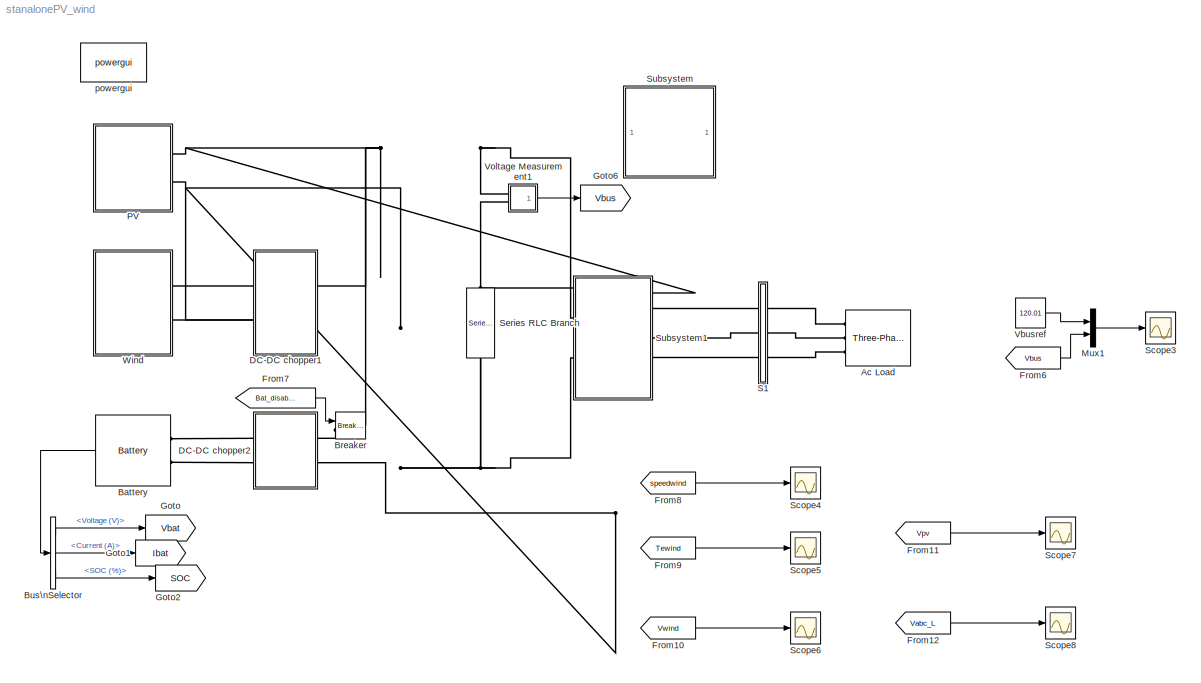
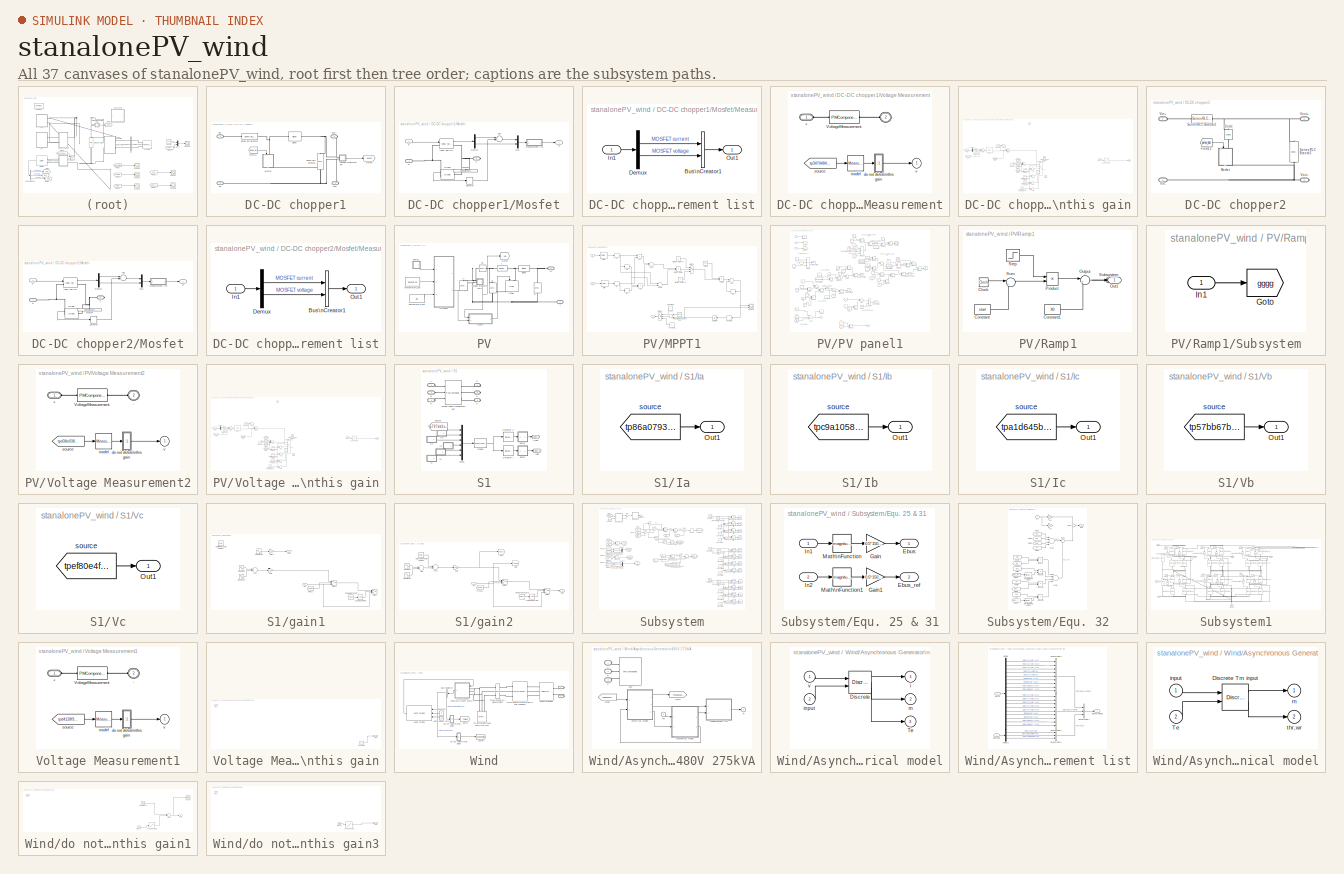
[diagram: thumbnail index - all 37 canvases of the model, root first then tree order]
MODEL stanalonePV_wind
KIND model
BLOCK [Reference] Ac Load  REF=powerlib/Elements/Three-Phase\nSeries RLC Load
  ActivePower = 0
  AttributesFormatString = \\n
  CapacitivePower = 0
  Configuration = Y (grounded)
  DialogController = POWERSYS.PowerSysDialog
  InductivePower = 100
  LConnTagsString = A|B|C
  LeftPortType = p1
  Measurements = None
  NominalFrequency = 50
  NominalVoltage = 220
  PhysicalDomain = powersysdomain
  Ports = [0, 0, 0, 0, 0, 3]
  RightPortType = p1
  SourceBlock = powerlib/Elements/Three-Phase\nSeries RLC Load
  SourceType = Three-Phase Series RLC Load
  SubClassName = unknown
BLOCK [Reference] Battery  REF=electricdrivelib/Extra Sources/Battery
  BatType = Lead-Acid
  Batt_Tr = 30
  Dis_Char = off
  Dis_rate = 3
  FullV = 52.2632
  FunctionWithSeparateData = off
  MaxQ = 15.625
  NomQ = 15
  NomV = 48
  Normal_OP = 4.6542
  Ports = [0, 1, 0, 0, 0, 2]
  PresetModel = on
  R = 0.032
  RTWMemSecDataConstants = Inherit from model
  RTWMemSecDataInternal = Inherit from model
  RTWMemSecDataParameters = Inherit from model
  RTWMemSecFuncExecute = Inherit from model
  RTWMemSecFuncInitTerm = Inherit from model
  SOC = 50
  ShowDetailedParameters = off
  ShowPortLabels = FromPortIcon
  SourceBlock = electricdrivelib/Extra Sources/Battery
  SourceType = Battery
  SystemSampleTime = -1
  Units = Ampere-hour
  current = [1.5 3]
  expZone = [48.8684         0.05]
BLOCK [Reference] Breaker  REF=powerlib/Elements/Breaker
  BreakerResistance = 0.01
  DialogController = POWERSYS.PowerSysDialog
  External = on
  FunctionWithSeparateData = off
  InitialState = 0
  Measurements = None
  MoreParameters = off
  NoBreakLoop = off
  Ports = [1, 0, 0, 0, 0, 1, 1]
  RTWMemSecDataConstants = Inherit from model
  RTWMemSecDataInternal = Inherit from model
  RTWMemSecDataParameters = Inherit from model
  RTWMemSecFuncExecute = Inherit from model
  RTWMemSecFuncInitTerm = Inherit from model
  ShowPortLabels = FromPortIcon
  SnubberCapacitance = inf
  SnubberResistance = 1e6
  SourceBlock = powerlib/Elements/Breaker
  SourceType = Breaker
  SwitchingTimes = [ 1/60  5/60 ]
  SystemSampleTime = -1
BLOCK [BusSelector] Bus\nSelector
  OutputSignals = Voltage (V),Current (A),SOC (%)
  Ports = [1, 3]
BLOCK [SubSystem] DC-DC chopper1
  FunctionWithSeparateData = off
  MaskHideContents = off
  MinAlgLoopOccurrences = off
  Opaque = off
  Ports = [0, 0, 0, 0, 0, 2, 2]
  PropExecContextOutsideSubsystem = off
  RTWSystemCode = Auto
  RequestExecContextInheritance = off
BLOCK [Reference] DC-DC chopper1/Diode  REF=powerlib/Power\nElectronics/Diode
  Cs = 250e-9
  DialogController = POWERSYS.PowerSysDialog
  FunctionWithSeparateData = off
  IC = 0
  Lon = 0
  Measurements = off
  Ports = [0, 0, 0, 0, 0, 1, 1]
  RTWMemSecDataConstants = Inherit from model
  RTWMemSecDataInternal = Inherit from model
  RTWMemSecDataParameters = Inherit from model
  RTWMemSecFuncExecute = Inherit from model
  RTWMemSecFuncInitTerm = Inherit from model
  Ron = 0.001
  Rs = 500
  ShowPortLabels = FromPortIcon
  SourceBlock = powerlib/Power\nElectronics/Diode
  SourceType = Diode
  SystemSampleTime = -1
  UseSnubber = off
  Vf = 0.8
BLOCK [From] DC-DC chopper1/From13
  GotoTag = pulse_wt
  TagVisibility = global
BLOCK [Goto] DC-DC chopper1/Goto6
  GotoTag = Vwind
  TagVisibility = global
BLOCK [SubSystem] DC-DC chopper1/Mosfet
  DialogController = POWERSYS.PowerSysDialog
  FunctionWithSeparateData = off
  MaskCallbackString = |||||||
  MaskDescription = MOSFET and internal  diode in parallel with a series RC snubber circuit. When a gate signal is applied the MOSFET conducts and acts as a resistance (Ron) in both directions. If  the gate signal falls to zero when current is negative, current  is transferred to the antiparallel diode.\n\nFor most applications, Lon should be set to zero.
  MaskDisplay = plot(X.p1,Y.p1,X.p2,Y.p2,X.p3,Y.p3,X.p4,Y.p4,X.p5,Y.p5,X.p6,Y.p6,X.p7,Y.p7,X.p8,Y.p8)
  MaskEnableString = on,on,on,on,off,on,on,on
  MaskHelp = web(psbhelp);
  MaskHideContents = off
  MaskIconFrame = on
  MaskIconOpaque = off
  MaskIconRotate = port
  MaskIconUnits = autoscale
  MaskInitialization = block = gcb;\n[WantBlockChoice,Ts,X,Y,Ron] = powericon('SwitchesInit','MOSFET',block,Rs,Cs,Ron);\nCsnubber  = Cs;
  MaskPortRotate = default
  MaskPromptString = FET resistance Ron (Ohms) :|internal diode inductance Lon (H) : |Internal diode resistance Rd  (Ohms) :|Internal diode forward voltage Vf (V) :|Initial current Ic (A) : |Snubber resistance Rs (Ohms) : |Snubber capacitance Cs (F) : |Show measurement port
  MaskSelfModifiable = on
  MaskStyleString = edit,edit,edit,edit,edit,edit,edit,checkbox
  MaskTabNameString = ,,,,,,,
  MaskToolTipString = on,on,on,on,on,on,on,on
  MaskTunableValueString = off,off,off,on,off,off,off,off
  MaskType = Mosfet
  MaskValueString = 0.1|0|0.01|0|0|1e5|inf |on
  MaskVarAliasString = ,,,,,,,
  MaskVariables = Ron=@1;Lon=@2;Rd=@3;Vfd=@4;IC=@5;Rs=@6;Cs=@7;Measurements=@8;
  MaskVisibilityString = on,on,on,on,on,on,on,on
  MinAlgLoopOccurrences = off
  Opaque = off
  Ports = [1, 1, 0, 0, 0, 1, 1]
  PropExecContextOutsideSubsystem = off
  RTWSystemCode = Auto
  RequestExecContextInheritance = off
BLOCK [Sum] DC-DC chopper1/Mosfet/Add
  InputSameDT = off
  Inputs = +-
  OutDataType = sfix(16)
  OutDataTypeMode = Inherit via internal rule
  OutDataTypeStr = Inherit: Inherit via internal rule
  OutScaling = 2^-10
  Ports = [2, 1]
  SaturateOnIntegerOverflow = off
BLOCK [PMIOPort] DC-DC chopper1/Mosfet/D
  Port = 1
  Side = Left
BLOCK [Demux] DC-DC chopper1/Mosfet/Demux
  DisplayOption = bar
  Outputs = 2
  Ports = [1, 2]
BLOCK [Reference] DC-DC chopper1/Mosfet/Diode  REF=powerlib/Power\nElectronics/Diode
  Cs = 0
  DialogController = POWERSYS.PowerSysDialog
  FunctionWithSeparateData = off
  IC = 0
  Lon = Lon
  Measurements = on
  Ports = [0, 1, 0, 0, 0, 1, 1]
  RTWMemSecDataConstants = Inherit from model
  RTWMemSecDataInternal = Inherit from model
  RTWMemSecDataParameters = Inherit from model
  RTWMemSecFuncExecute = Inherit from model
  RTWMemSecFuncInitTerm = Inherit from model
  Ron = Rd
  Rs = inf
  ShowPortLabels = FromPortIcon
  SourceBlock = powerlib/Power\nElectronics/Diode
  SourceType = Diode
  SystemSampleTime = -1
  UseSnubber = off
  Vf = Vfd
BLOCK [Reference] DC-DC chopper1/Mosfet/Ideal Switch  REF=powerlib/Power\nElectronics/Ideal Switch
  Cs = Csnubber
  DialogController = POWERSYS.PowerSysDialog
  FunctionWithSeparateData = off
  IC = 0
  Lon = 0
  Measurements = on
  Ports = [1, 1, 0, 0, 0, 1, 1]
  RTWMemSecDataConstants = Inherit from model
  RTWMemSecDataInternal = Inherit from model
  RTWMemSecDataParameters = Inherit from model
  RTWMemSecFuncExecute = Inherit from model
  RTWMemSecFuncInitTerm = Inherit from model
  Ron = Ron
  Rs = Rs
  ShowPortLabels = FromPortIcon
  SourceBlock = powerlib/Power\nElectronics/Ideal Switch
  SourceType = Ideal Switch
  SystemSampleTime = -1
BLOCK [SubSystem] DC-DC chopper1/Mosfet/Measurement list
  FunctionWithSeparateData = off
  MaskHideContents = off
  MinAlgLoopOccurrences = off
  Opaque = off
  Ports = [1, 1]
  PropExecContextOutsideSubsystem = off
  RTWSystemCode = Auto
  RequestExecContextInheritance = off
BLOCK [BusCreator] DC-DC chopper1/Mosfet/Measurement list/Bus\nCreator1
  DisplayOption = bar
  Inputs = 2
  Ports = [2, 1]
BLOCK [Demux] DC-DC chopper1/Mosfet/Measurement list/Demux
  DisplayOption = bar
  Outputs = [1,1]
  Ports = [1, 2]
BLOCK [Inport] DC-DC chopper1/Mosfet/Measurement list/In1
  IconDisplay = Port number
  OutDataType = sfix(16)
  OutScaling = 2^0
BLOCK [Outport] DC-DC chopper1/Mosfet/Measurement list/Out1
  IconDisplay = Port number
  OutDataType = sfix(16)
  OutScaling = 2^0
BLOCK [PMComponent] DC-DC chopper1/Mosfet/Mosfet
  LConnTagsString = a
  LeftPortType = p1
  MaskIconFrame = on
  MaskIconOpaque = on
  MaskIconRotate = none
  MaskIconUnits = autoscale
  MaskPortRotate = default
  MaskType = InnerPowersysBlock
  PhysicalDomain = powersysdomain
  Ports = [0, 0, 0, 0, 0, 1, 1]
  RConnTagsString = __new0
  RightPortType = p1
BLOCK [Mux] DC-DC chopper1/Mosfet/Mux
  DisplayOption = bar
  Inputs = 2
  Ports = [2, 1]
BLOCK [PMIOPort] DC-DC chopper1/Mosfet/S
  Port = 2
  Side = Right
BLOCK [Selector] DC-DC chopper1/Mosfet/Selector
  IndexOptions = Index vector (dialog)
  Indices = 1
  InputPortWidth = 2
  OutputSizes = 1
  Ports = [1, 1]
BLOCK [Inport] DC-DC chopper1/Mosfet/g
  IconDisplay = Port number
  OutDataType = sfix(16)
  OutScaling = 2^0
BLOCK [Outport] DC-DC chopper1/Mosfet/m
  IconDisplay = Port number
  OutDataType = sfix(16)
  OutScaling = 2^0
BLOCK [Reference] DC-DC chopper1/Series RLC Branch4  REF=powerlib/Elements/Series RLC Branch
  BranchType = L
  Capacitance = 1e-6
  DialogController = POWERSYS.PowerSysDialog
  Inductance = 1e-3
  InitialCurrent = 0
  InitialVoltage = 0
  LConnTagsString = __new0
  LeftPortType = p1
  Measurements = None
  PhysicalDomain = powersysdomain
  Ports = [0, 0, 0, 0, 0, 1, 1]
  RConnTagsString = __new0
  Resistance = 1
  RightPortType = p1
  SetiL0 = off
  Setx0 = off
  SourceBlock = powerlib/Elements/Series RLC Branch
  SourceType = Series RLC Branch
  SubClassName = unknown
BLOCK [Reference] DC-DC chopper1/Series RLC Branch5  REF=powerlib/Elements/Series RLC Branch
  BranchType = C
  Capacitance = 1e-6
  DialogController = POWERSYS.PowerSysDialog
  Inductance = 1e-3
  InitialCurrent = 0
  InitialVoltage = 0
  LConnTagsString = __new0
  LeftPortType = p1
  Measurements = None
  PhysicalDomain = powersysdomain
  Ports = [0, 0, 0, 0, 0, 1, 1]
  RConnTagsString = __new0
  Resistance = 1
  RightPortType = p1
  SetiL0 = off
  Setx0 = off
  SourceBlock = powerlib/Elements/Series RLC Branch
  SourceType = Series RLC Branch
  SubClassName = unknown
BLOCK [PMIOPort] DC-DC chopper1/Vin+
  Port = 1
  Side = Left
BLOCK [PMIOPort] DC-DC chopper1/Vin-
  Port = 4
  Side = Left
BLOCK [SubSystem] DC-DC chopper1/Voltage Measurement
  CopyFcn = powericon('psbloadfunction',gcb,'Measurement Block','UpdateGotoTag');
  DialogController = POWERSYS.PowerSysDialog
  FunctionWithSeparateData = off
  MaskCallbackString = ||
  MaskDescription = Ideal voltage measurement.
  MaskEnableString = off,off,off
  MaskHelp = web(psbhelp);
  MaskHideContents = off
  MaskIconFrame = on
  MaskIconOpaque = off
  MaskIconRotate = port
  MaskIconUnits = autoscale
  MaskInitialization = block = gcb;\npowericon('psbloadfunction',block,'Measurement Block','Initialize');\npowericon('MeasurementBlockInit',block);\npower_initmask();
  MaskPortRotate = default
  MaskPromptString = Phasor simulation|Output signal :|Equivalent circuit
  MaskSelfModifiable = on
  MaskStyleString = checkbox,popup(Complex|Real-Imag|Magnitude-Angle|Magnitude),edit
  MaskTabNameString = ,,
  MaskToolTipString = on,on,on
  MaskTunableValueString = on,on,on
  MaskType = Voltage Measurement
  MaskValueString = off|Complex|0
  MaskVarAliasString = ,,
  MaskVariables = PhasorSimulation=@1;OutputType=@2;PSBequivalent=@3;
  MaskVisibilityString = off,on,off
  MinAlgLoopOccurrences = off
  Opaque = off
  Ports = [0, 1, 0, 0, 0, 2]
  PreSaveFcn = if strcmp('inactive',get_param(gcb,'linkstatus'));\n                                                  \nset_param(gcb,'Linkstatus','restore')             \nend
  PropExecContextOutsideSubsystem = off
  RTWSystemCode = Auto
  RequestExecContextInheritance = off
BLOCK [PMIOPort] DC-DC chopper1/Voltage Measurement/+
  Port = 1
  Side = Left
BLOCK [PMIOPort] DC-DC chopper1/Voltage Measurement/-
  Port = 2
  Side = Left
BLOCK [PMComponent] DC-DC chopper1/Voltage Measurement/VoltageMeasurement
  LConnTagsString = +
  LeftPortType = p1
  MaskIconFrame = on
  MaskIconOpaque = on
  MaskIconRotate = none
  MaskIconUnits = autoscale
  MaskPortRotate = default
  MaskType = InnerPowersysBlock
  PhysicalDomain = powersysdomain
  Ports = [0, 0, 0, 0, 0, 1, 1]
  RConnTagsString = -
  RightPortType = p1
BLOCK [SubSystem] DC-DC chopper1/Voltage Measurement/do not delete\nthis gain
  FunctionWithSeparateData = off
  MaskCallbackString = ||
  MaskDescription = Element-wise gain(y=K.*u)ot matrix gain(y=K*u or y=u*K).
  MaskDisplay = plot([0 0 10 0],[0 10 5 0]);\ndisp('1')
  MaskEnableString = on,on,on
  MaskHideContents = off
  MaskIconFrame = off
  MaskIconOpaque = on
  MaskIconRotate = none
  MaskIconUnits = autoscale
  MaskPortRotate = default
  MaskPromptString = Gain|Muliplication|Sample time(-1 for inherited)
  MaskStyleString = edit,popup(Element-wise(K.*u)|Matrix(K*u)|Matrix(u*K)|Matrix(K*u(u vector)),edit
  MaskTabNameString = ,,
  MaskToolTipString = on,on,on
  MaskTunableValueString = on,on,on
  MaskType = Gain
  MaskValueString = 1|Element-wise(K.*u)|0
  MaskVarAliasString = ,,
  MaskVariables = x=@1;XX=@2;Ts=@3;
  MaskVisibilityString = on,on,on
  MinAlgLoopOccurrences = off
  Opaque = off
  Permissions = NoReadOrWrite
  Ports = [1, 1]
  PropExecContextOutsideSubsystem = off
  RTWSystemCode = Auto
  RequestExecContextInheritance = off
BLOCK [Sum] DC-DC chopper1/Voltage Measurement/do not delete\nthis gain/Add
  InputSameDT = off
  Inputs = 5
  OutDataType = fixdt(1, 16)
  OutDataTypeMode = Inherit via internal rule
  OutDataTypeStr = Inherit: Inherit via internal rule
  OutScaling = 2^-10
  Ports = [5, 1]
  SaturateOnIntegerOverflow = off
BLOCK [Sum] DC-DC chopper1/Voltage Measurement/do not delete\nthis gain/Add1
  InputSameDT = off
  OutDataType = fixdt(1, 16)
  OutDataTypeMode = Inherit via internal rule
  OutDataTypeStr = Inherit: Inherit via internal rule
  OutScaling = 2^-10
  Ports = [2, 1]
  SaturateOnIntegerOverflow = off
BLOCK [Sum] DC-DC chopper1/Voltage Measurement/do not delete\nthis gain/Add2
  InputSameDT = off
  OutDataType = fixdt(1, 16)
  OutDataTypeMode = Inherit via internal rule
  OutDataTypeStr = Inherit: Inherit via internal rule
  OutScaling = 2^-10
  Ports = [2, 1]
  SaturateOnIntegerOverflow = off
BLOCK [Sum] DC-DC chopper1/Voltage Measurement/do not delete\nthis gain/Add3
  InputSameDT = off
  OutDataType = fixdt(1, 16)
  OutDataTypeMode = Inherit via internal rule
  OutDataTypeStr = Inherit: Inherit via internal rule
  OutScaling = 2^-10
  Ports = [2, 1]
  SaturateOnIntegerOverflow = off
BLOCK [Sum] DC-DC chopper1/Voltage Measurement/do not delete\nthis gain/Add4
  InputSameDT = off
  OutDataType = fixdt(1, 16)
  OutDataTypeMode = Inherit via internal rule
  OutDataTypeStr = Inherit: Inherit via internal rule
  OutScaling = 2^-10
  Ports = [2, 1]
  SaturateOnIntegerOverflow = off
BLOCK [Sum] DC-DC chopper1/Voltage Measurement/do not delete\nthis gain/Add5
  InputSameDT = off
  OutDataType = fixdt(1, 16)
  OutDataTypeMode = Inherit via internal rule
  OutDataTypeStr = Inherit: Inherit via internal rule
  OutScaling = 2^-10
  Ports = [2, 1]
  SaturateOnIntegerOverflow = off
BLOCK [Clock] DC-DC chopper1/Voltage Measurement/do not delete\nthis gain/Clock
  Decimation = 10
BLOCK [Clock] DC-DC chopper1/Voltage Measurement/do not delete\nthis gain/Clock2
  Decimation = 10
BLOCK [Constant] DC-DC chopper1/Voltage Measurement/do not delete\nthis gain/Constant
  OutDataType = fixdt(1, 16)
  OutScaling = 2^0
BLOCK [Demux] DC-DC chopper1/Voltage Measurement/do not delete\nthis gain/Demux
  DisplayOption = bar
  Outputs = 3
  Ports = [1, 3]
BLOCK [From] DC-DC chopper1/Voltage Measurement/do not delete\nthis gain/From
  GotoTag = tp2ee6e5fb_6762_4b18_8d7a_180c0387e5a7
BLOCK [From] DC-DC chopper1/Voltage Measurement/do not delete\nthis gain/From1
  GotoTag = A256891
BLOCK [From] DC-DC chopper1/Voltage Measurement/do not delete\nthis gain/From2
  GotoTag = A256892
BLOCK [From] DC-DC chopper1/Voltage Measurement/do not delete\nthis gain/From3
  GotoTag = A256893
BLOCK [From] DC-DC chopper1/Voltage Measurement/do not delete\nthis gain/From4
  GotoTag = A256894
BLOCK [From] DC-DC chopper1/Voltage Measurement/do not delete\nthis gain/From5
  GotoTag = tpfb777cdd_30d6_4c40_bbee_3ab4d3bd5893235
BLOCK [From] DC-DC chopper1/Voltage Measurement/do not delete\nthis gain/From6
  GotoTag = A256893
BLOCK [Gain] DC-DC chopper1/Voltage Measurement/do not delete\nthis gain/Gain
  Gain = 550/241
  OutDataType = fixdt(1, 16)
  OutDataTypeMode = Inherit via internal rule
  OutDataTypeStr = Inherit: Inherit via internal rule
  OutScaling = 2^0
  ParamDataTypeStr = Inherit: Inherit via internal rule
  ParameterDataType = fixdt(1, 16)
  ParameterDataTypeMode = Inherit via internal rule
  ParameterScaling = 2^0
  SaturateOnIntegerOverflow = off
BLOCK [Gain] DC-DC chopper1/Voltage Measurement/do not delete\nthis gain/Gain1
  Gain = 600/241
  OutDataType = fixdt(1, 16)
  OutDataTypeMode = Inherit via internal rule
  OutDataTypeStr = Inherit: Inherit via internal rule
  OutScaling = 2^0
  ParamDataTypeStr = Inherit: Inherit via internal rule
  ParameterDataType = fixdt(1, 16)
  ParameterDataTypeMode = Inherit via internal rule
  ParameterScaling = 2^0
  SaturateOnIntegerOverflow = off
BLOCK [Inport] DC-DC chopper1/Voltage Measurement/do not delete\nthis gain/In1
  IconDisplay = Port number
  OutDataType = sfix(16)
  OutScaling = 2^0
BLOCK [Lookup] DC-DC chopper1/Voltage Measurement/do not delete\nthis gain/Lookup Table1
  InputValues = [0,0.1,0.2,0.3,0.4,0.5,0.6,0.7,0.8,0.9,1,2,3]
  OutDataType = fixdt(1, 16)
  OutScaling = 2^0
  SaturateOnIntegerOverflow = off
  Table = [27.6489,59.9687,81,101,114.2006,120,120,120,120,120,120,120,120]
BLOCK [MultiPortSwitch] DC-DC chopper1/Voltage Measurement/do not delete\nthis gain/Multiport\nSwitch
  InputSameDT = off
  Inputs = 5
  OutDataType = fixdt(1, 16)
  OutScaling = 2^0
  Ports = [6, 1]
  SaturateOnIntegerOverflow = off
BLOCK [Outport] DC-DC chopper1/Voltage Measurement/do not delete\nthis gain/Out1
  IconDisplay = Port number
  OutDataType = sfix(16)
  OutScaling = 2^0
BLOCK [Reference] DC-DC chopper1/Voltage Measurement/do not delete\nthis gain/RMS  REF=powerlib_extras/Measurements/RMS
  DialogController = POWERSYS.PowerSysDialog
  FunctionWithSeparateData = off
  Ports = [1, 1]
  RTWMemSecDataConstants = Inherit from model
  RTWMemSecDataInternal = Inherit from model
  RTWMemSecDataParameters = Inherit from model
  RTWMemSecFuncExecute = Inherit from model
  RTWMemSecFuncInitTerm = Inherit from model
  ShowPortLabels = FromPortIcon
  SourceBlock = powerlib_extras/Measurements/RMS
  SourceType = RMS
  SystemSampleTime = -1
  f1 = 50
BLOCK [Sin] DC-DC chopper1/Voltage Measurement/do not delete\nthis gain/Sine Wave
  Amplitude = 5
  Bias = 0
  Frequency = 2*pi*50
  Offset = 0
  Phase = 0
  Ports = [0, 1]
  SampleTime = 50e-6
  Samples = 10
BLOCK [Switch] DC-DC chopper1/Voltage Measurement/do not delete\nthis gain/Switch
  InputSameDT = off
  OutDataType = fixdt(1, 16)
  OutScaling = 2^0
  SaturateOnIntegerOverflow = off
  Threshold = 0.5
BLOCK [Switch] DC-DC chopper1/Voltage Measurement/do not delete\nthis gain/Switch1
  InputSameDT = off
  OutDataType = fixdt(1, 16)
  OutScaling = 2^0
  SaturateOnIntegerOverflow = off
  Threshold = 0.5
BLOCK [UniformRandomNumber] DC-DC chopper1/Voltage Measurement/do not delete\nthis gain/Uniform Random\nNumber
  SampleTime = 50e-6
BLOCK [UniformRandomNumber] DC-DC chopper1/Voltage Measurement/do not delete\nthis gain/Uniform Random\nNumber1
  Maximum = 2
  Minimum = -2
  SampleTime = 50e-6
BLOCK [UniformRandomNumber] DC-DC chopper1/Voltage Measurement/do not delete\nthis gain/Uniform Random\nNumber2
  Maximum = 0.1
  Minimum = -0.1
  SampleTime = 50e-6
BLOCK [UniformRandomNumber] DC-DC chopper1/Voltage Measurement/do not delete\nthis gain/Uniform Random\nNumber3
  Maximum = 0.1
  Minimum = -0.1
  SampleTime = 50e-6
BLOCK [UniformRandomNumber] DC-DC chopper1/Voltage Measurement/do not delete\nthis gain/Uniform Random\nNumber4
  Maximum = 4
  Minimum = -4
  SampleTime = 50e-6
BLOCK [Reference] DC-DC chopper1/Voltage Measurement/model  REF=powerlib_models/Continuous/Measurement
  FunctionWithSeparateData = off
  Ports = [1, 1]
  RTWMemSecDataConstants = Inherit from model
  RTWMemSecDataInternal = Inherit from model
  RTWMemSecDataParameters = Inherit from model
  RTWMemSecFuncExecute = Inherit from model
  RTWMemSecFuncInitTerm = Inherit from model
  ShowPortLabels = FromPortIcon
  SourceBlock = powerlib_models/Continuous/Measurement
  SourceType = SubSystem
  SystemSampleTime = -1
BLOCK [From] DC-DC chopper1/Voltage Measurement/source
  GotoTag = tp3474484c_040d_446c_90f7_6e3ad6293248
  TagVisibility = global
BLOCK [Outport] DC-DC chopper1/Voltage Measurement/v
  IconDisplay = Port number
  InitialOutput = 0
  OutDataType = sfix(16)
  OutScaling = 2^0
BLOCK [PMIOPort] DC-DC chopper1/Vout+
  Port = 2
  Side = Right
BLOCK [PMIOPort] DC-DC chopper1/Vout-
  Port = 3
  Side = Right
BLOCK [SubSystem] DC-DC chopper2
  FunctionWithSeparateData = off
  MaskHideContents = off
  MinAlgLoopOccurrences = off
  Opaque = off
  Ports = [0, 0, 0, 0, 0, 2, 2]
  PropExecContextOutsideSubsystem = off
  RTWSystemCode = Auto
  RequestExecContextInheritance = off
BLOCK [Reference] DC-DC chopper2/Diode  REF=powerlib/Power\nElectronics/Diode
  Cs = 250e-9
  DialogController = POWERSYS.PowerSysDialog
  FunctionWithSeparateData = off
  IC = 0
  Lon = 0
  Measurements = off
  Ports = [0, 0, 0, 0, 0, 1, 1]
  RTWMemSecDataConstants = Inherit from model
  RTWMemSecDataInternal = Inherit from model
  RTWMemSecDataParameters = Inherit from model
  RTWMemSecFuncExecute = Inherit from model
  RTWMemSecFuncInitTerm = Inherit from model
  Ron = 0.001
  Rs = 500
  ShowPortLabels = FromPortIcon
  SourceBlock = powerlib/Power\nElectronics/Diode
  SourceType = Diode
  SystemSampleTime = -1
  UseSnubber = off
  Vf = 0.8
BLOCK [From] DC-DC chopper2/From13
  GotoTag = pulse_bat
  TagVisibility = global
BLOCK [SubSystem] DC-DC chopper2/Mosfet
  DialogController = POWERSYS.PowerSysDialog
  FunctionWithSeparateData = off
  MaskCallbackString = |||||||
  MaskDescription = MOSFET and internal  diode in parallel with a series RC snubber circuit. When a gate signal is applied the MOSFET conducts and acts as a resistance (Ron) in both directions. If  the gate signal falls to zero when current is negative, current  is transferred to the antiparallel diode.\n\nFor most applications, Lon should be set to zero.
  MaskDisplay = plot(X.p1,Y.p1,X.p2,Y.p2,X.p3,Y.p3,X.p4,Y.p4,X.p5,Y.p5,X.p6,Y.p6,X.p7,Y.p7,X.p8,Y.p8)
  MaskEnableString = on,on,on,on,off,on,on,on
  MaskHelp = web(psbhelp);
  MaskHideContents = off
  MaskIconFrame = on
  MaskIconOpaque = off
  MaskIconRotate = port
  MaskIconUnits = autoscale
  MaskInitialization = block = gcb;\n[WantBlockChoice,Ts,X,Y,Ron] = powericon('SwitchesInit','MOSFET',block,Rs,Cs,Ron);\nCsnubber  = Cs;
  MaskPortRotate = default
  MaskPromptString = FET resistance Ron (Ohms) :|internal diode inductance Lon (H) : |Internal diode resistance Rd  (Ohms) :|Internal diode forward voltage Vf (V) :|Initial current Ic (A) : |Snubber resistance Rs (Ohms) : |Snubber capacitance Cs (F) : |Show measurement port
  MaskSelfModifiable = on
  MaskStyleString = edit,edit,edit,edit,edit,edit,edit,checkbox
  MaskTabNameString = ,,,,,,,
  MaskToolTipString = on,on,on,on,on,on,on,on
  MaskTunableValueString = off,off,off,on,off,off,off,off
  MaskType = Mosfet
  MaskValueString = 0.1|0|0.01|0|0|1e5|inf |on
  MaskVarAliasString = ,,,,,,,
  MaskVariables = Ron=@1;Lon=@2;Rd=@3;Vfd=@4;IC=@5;Rs=@6;Cs=@7;Measurements=@8;
  MaskVisibilityString = on,on,on,on,on,on,on,on
  MinAlgLoopOccurrences = off
  Opaque = off
  Ports = [1, 1, 0, 0, 0, 1, 1]
  PropExecContextOutsideSubsystem = off
  RTWSystemCode = Auto
  RequestExecContextInheritance = off
BLOCK [Sum] DC-DC chopper2/Mosfet/Add
  InputSameDT = off
  Inputs = +-
  OutDataType = sfix(16)
  OutDataTypeMode = Inherit via internal rule
  OutDataTypeStr = Inherit: Inherit via internal rule
  OutScaling = 2^-10
  Ports = [2, 1]
  SaturateOnIntegerOverflow = off
BLOCK [PMIOPort] DC-DC chopper2/Mosfet/D
  Port = 1
  Side = Left
BLOCK [Demux] DC-DC chopper2/Mosfet/Demux
  DisplayOption = bar
  Outputs = 2
  Ports = [1, 2]
BLOCK [Reference] DC-DC chopper2/Mosfet/Diode  REF=powerlib/Power\nElectronics/Diode
  Cs = 0
  DialogController = POWERSYS.PowerSysDialog
  FunctionWithSeparateData = off
  IC = 0
  Lon = Lon
  Measurements = on
  Ports = [0, 1, 0, 0, 0, 1, 1]
  RTWMemSecDataConstants = Inherit from model
  RTWMemSecDataInternal = Inherit from model
  RTWMemSecDataParameters = Inherit from model
  RTWMemSecFuncExecute = Inherit from model
  RTWMemSecFuncInitTerm = Inherit from model
  Ron = Rd
  Rs = inf
  ShowPortLabels = FromPortIcon
  SourceBlock = powerlib/Power\nElectronics/Diode
  SourceType = Diode
  SystemSampleTime = -1
  UseSnubber = off
  Vf = Vfd
BLOCK [Reference] DC-DC chopper2/Mosfet/Ideal Switch  REF=powerlib/Power\nElectronics/Ideal Switch
  Cs = Csnubber
  DialogController = POWERSYS.PowerSysDialog
  FunctionWithSeparateData = off
  IC = 0
  Lon = 0
  Measurements = on
  Ports = [1, 1, 0, 0, 0, 1, 1]
  RTWMemSecDataConstants = Inherit from model
  RTWMemSecDataInternal = Inherit from model
  RTWMemSecDataParameters = Inherit from model
  RTWMemSecFuncExecute = Inherit from model
  RTWMemSecFuncInitTerm = Inherit from model
  Ron = Ron
  Rs = Rs
  ShowPortLabels = FromPortIcon
  SourceBlock = powerlib/Power\nElectronics/Ideal Switch
  SourceType = Ideal Switch
  SystemSampleTime = -1
BLOCK [SubSystem] DC-DC chopper2/Mosfet/Measurement list
  FunctionWithSeparateData = off
  MaskHideContents = off
  MinAlgLoopOccurrences = off
  Opaque = off
  Ports = [1, 1]
  PropExecContextOutsideSubsystem = off
  RTWSystemCode = Auto
  RequestExecContextInheritance = off
BLOCK [BusCreator] DC-DC chopper2/Mosfet/Measurement list/Bus\nCreator1
  DisplayOption = bar
  Inputs = 2
  Ports = [2, 1]
BLOCK [Demux] DC-DC chopper2/Mosfet/Measurement list/Demux
  DisplayOption = bar
  Outputs = [1,1]
  Ports = [1, 2]
BLOCK [Inport] DC-DC chopper2/Mosfet/Measurement list/In1
  IconDisplay = Port number
  OutDataType = sfix(16)
  OutScaling = 2^0
BLOCK [Outport] DC-DC chopper2/Mosfet/Measurement list/Out1
  IconDisplay = Port number
  OutDataType = sfix(16)
  OutScaling = 2^0
BLOCK [PMComponent] DC-DC chopper2/Mosfet/Mosfet
  LConnTagsString = a
  LeftPortType = p1
  MaskIconFrame = on
  MaskIconOpaque = on
  MaskIconRotate = none
  MaskIconUnits = autoscale
  MaskPortRotate = default
  MaskType = InnerPowersysBlock
  PhysicalDomain = powersysdomain
  Ports = [0, 0, 0, 0, 0, 1, 1]
  RConnTagsString = __new0
  RightPortType = p1
BLOCK [Mux] DC-DC chopper2/Mosfet/Mux
  DisplayOption = bar
  Inputs = 2
  Ports = [2, 1]
BLOCK [PMIOPort] DC-DC chopper2/Mosfet/S
  Port = 2
  Side = Right
BLOCK [Selector] DC-DC chopper2/Mosfet/Selector
  IndexOptions = Index vector (dialog)
  Indices = 1
  InputPortWidth = 2
  OutputSizes = 1
  Ports = [1, 1]
BLOCK [Inport] DC-DC chopper2/Mosfet/g
  IconDisplay = Port number
  OutDataType = sfix(16)
  OutScaling = 2^0
BLOCK [Outport] DC-DC chopper2/Mosfet/m
  IconDisplay = Port number
  OutDataType = sfix(16)
  OutScaling = 2^0
BLOCK [Reference] DC-DC chopper2/Series RLC Branch4  REF=powerlib/Elements/Series RLC Branch
  BranchType = L
  Capacitance = 1e-6
  DialogController = POWERSYS.PowerSysDialog
  Inductance = 1e-3
  InitialCurrent = 0
  InitialVoltage = 0
  LConnTagsString = __new0
  LeftPortType = p1
  Measurements = None
  PhysicalDomain = powersysdomain
  Ports = [0, 0, 0, 0, 0, 1, 1]
  RConnTagsString = __new0
  Resistance = 1
  RightPortType = p1
  SetiL0 = off
  Setx0 = off
  SourceBlock = powerlib/Elements/Series RLC Branch
  SourceType = Series RLC Branch
  SubClassName = unknown
BLOCK [Reference] DC-DC chopper2/Series RLC Branch5  REF=powerlib/Elements/Series RLC Branch
  BranchType = C
  Capacitance = 1e-6
  DialogController = POWERSYS.PowerSysDialog
  Inductance = 1e-3
  InitialCurrent = 0
  InitialVoltage = 0
  LConnTagsString = __new0
  LeftPortType = p1
  Measurements = None
  PhysicalDomain = powersysdomain
  Ports = [0, 0, 0, 0, 0, 1, 1]
  RConnTagsString = __new0
  Resistance = 1
  RightPortType = p1
  SetiL0 = off
  Setx0 = off
  SourceBlock = powerlib/Elements/Series RLC Branch
  SourceType = Series RLC Branch
  SubClassName = unknown
BLOCK [PMIOPort] DC-DC chopper2/Vin+
  Port = 1
  Side = Left
BLOCK [PMIOPort] DC-DC chopper2/Vin-
  Port = 4
  Side = Left
BLOCK [PMIOPort] DC-DC chopper2/Vout+
  Port = 2
  Side = Right
BLOCK [PMIOPort] DC-DC chopper2/Vout-
  Port = 3
  Side = Right
BLOCK [From] From10
  GotoTag = Vwind
  TagVisibility = global
BLOCK [From] From11
  GotoTag = Vpv
  TagVisibility = global
BLOCK [From] From12
  GotoTag = Vabc_L
  TagVisibility = global
BLOCK [From] From6
  GotoTag = Vbus
  TagVisibility = global
BLOCK [From] From7
  GotoTag = Bat_disable
  TagVisibility = global
BLOCK [From] From8
  GotoTag = speedwind
  TagVisibility = global
BLOCK [From] From9
  GotoTag = Tewind
  TagVisibility = global
BLOCK [Goto] Goto
  GotoTag = Vbat
  TagVisibility = global
BLOCK [Goto] Goto1
  GotoTag = Ibat
  TagVisibility = global
BLOCK [Goto] Goto2
  GotoTag = SOC
  TagVisibility = global
BLOCK [Goto] Goto6
  GotoTag = Vbus
  TagVisibility = global
BLOCK [Mux] Mux1
  DisplayOption = bar
  Inputs = 2
  Ports = [2, 1]
BLOCK [SubSystem] PV
  FunctionWithSeparateData = off
  MaskHideContents = off
  MinAlgLoopOccurrences = off
  Opaque = off
  Ports = [0, 0, 0, 0, 0, 2]
  PropExecContextOutsideSubsystem = off
  RTWSystemCode = Auto
  RequestExecContextInheritance = off
BLOCK [PMIOPort] PV/+1
  Port = 1
  Side = Left
BLOCK [PMIOPort] PV/-1
  Port = 2
  Side = Left
BLOCK [Reference] PV/C  REF=powerlib/Elements/Series RLC Branch
  BranchType = C
  Capacitance = 2e-3
  DialogController = POWERSYS.PowerSysDialog
  Inductance = 1.0
  InitialCurrent = 0
  InitialVoltage = 200
  LConnTagsString = __new0
  LeftPortType = p1
  Measurements = None
  PhysicalDomain = powersysdomain
  Ports = [0, 0, 0, 0, 0, 1, 1]
  RConnTagsString = __new0
  Resistance = 0.01
  RightPortType = p1
  SetiL0 = off
  Setx0 = off
  SourceBlock = powerlib/Elements/Series RLC Branch
  SourceType = Series RLC Branch
  SubClassName = unknown
BLOCK [Reference] PV/C1  REF=powerlib/Elements/Series RLC Branch
  BranchType = C
  Capacitance = 2e-3
  DialogController = POWERSYS.PowerSysDialog
  Inductance = 1.0
  InitialCurrent = 0
  InitialVoltage = 0
  LConnTagsString = __new0
  LeftPortType = p1
  Measurements = None
  PhysicalDomain = powersysdomain
  Ports = [0, 0, 0, 0, 0, 1, 1]
  RConnTagsString = __new0
  Resistance = 0.01
  RightPortType = p1
  SetiL0 = off
  Setx0 = off
  SourceBlock = powerlib/Elements/Series RLC Branch
  SourceType = Series RLC Branch
  SubClassName = unknown
BLOCK [Reference] PV/Diode  REF=powerlib/Power\nElectronics/Diode
  AttributesFormatString = \\n
  Cs = 250e-9
  DialogController = POWERSYS.PowerSysDialog
  FunctionWithSeparateData = off
  IC = 0
  Lon = 0
  Measurements = off
  Ports = [0, 0, 0, 0, 0, 1, 1]
  RTWMemSecDataConstants = Inherit from model
  RTWMemSecDataInternal = Inherit from model
  RTWMemSecDataParameters = Inherit from model
  RTWMemSecFuncExecute = Inherit from model
  RTWMemSecFuncInitTerm = Inherit from model
  Ron = 0.001
  Rs = 500
  ShowPortLabels = FromPortIcon
  SourceBlock = powerlib/Power\nElectronics/Diode
  SourceType = Diode
  SystemSampleTime = -1
  UseSnubber = off
  Vf = 0.8
BLOCK [Goto] PV/Goto3
  GotoTag = Vpv
  TagVisibility = global
BLOCK [Reference] PV/I1  REF=powerlib/Electrical\nSources/Controlled Current Source
  Amplitude = 0
  DialogController = POWERSYS.PowerSysDialog
  Frequency = 0
  FunctionWithSeparateData = off
  Initialize = on
  Measurements = None
  Phase = 0
  Ports = [1, 0, 0, 0, 0, 1, 1]
  RTWMemSecDataConstants = Inherit from model
  RTWMemSecDataInternal = Inherit from model
  RTWMemSecDataParameters = Inherit from model
  RTWMemSecFuncExecute = Inherit from model
  RTWMemSecFuncInitTerm = Inherit from model
  ShowPortLabels = FromPortIcon
  SourceBlock = powerlib/Electrical\nSources/Controlled Current Source
  SourceType = Controlled Current Source
  Source_Type = AC
  SystemSampleTime = -1
BLOCK [Reference] PV/IGBT  REF=powerlib/Power\nElectronics/IGBT
  Cs = inf
  DialogController = POWERSYS.PowerSysDialog
  FunctionWithSeparateData = off
  IC = 0
  Lon = 0
  Measurements = off
  Ports = [1, 0, 0, 0, 0, 1, 1]
  RTWMemSecDataConstants = Inherit from model
  RTWMemSecDataInternal = Inherit from model
  RTWMemSecDataParameters = Inherit from model
  RTWMemSecFuncExecute = Inherit from model
  RTWMemSecFuncInitTerm = Inherit from model
  Ron = 0.001
  Rs = 1e5
  ShowPortLabels = FromPortIcon
  SourceBlock = powerlib/Power\nElectronics/IGBT
  SourceType = IGBT
  SystemSampleTime = -1
  Tf = 1e-6
  Tt = 2e-6
  Vf = 1
BLOCK [Reference] PV/L  REF=powerlib/Elements/Series RLC Branch
  BranchType = L
  Capacitance = 1.0
  DialogController = POWERSYS.PowerSysDialog
  Inductance = 0.01
  InitialCurrent = 0
  InitialVoltage = 0
  LConnTagsString = __new0
  LeftPortType = p1
  Measurements = None
  PhysicalDomain = powersysdomain
  Ports = [0, 0, 0, 0, 0, 1, 1]
  RConnTagsString = __new0
  Resistance = 1.0
  RightPortType = p1
  SetiL0 = off
  Setx0 = off
  SourceBlock = powerlib/Elements/Series RLC Branch
  SourceType = Series RLC Branch
  SubClassName = unknown
BLOCK [SubSystem] PV/MPPT1
  FunctionWithSeparateData = off
  MaskHideContents = off
  MinAlgLoopOccurrences = off
  Opaque = off
  Ports = [2, 1]
  PropExecContextOutsideSubsystem = off
  RTWSystemCode = Auto
  RequestExecContextInheritance = off
BLOCK [Sum] PV/MPPT1/Add
  InputSameDT = off
  OutDataType = sfix(16)
  OutDataTypeMode = Inherit via internal rule
  OutDataTypeStr = Inherit: Inherit via internal rule
  OutScaling = 2^-10
  Ports = [2, 1]
  SaturateOnIntegerOverflow = off
BLOCK [Constant] PV/MPPT1/Constant1
  OutDataType = sfix(16)
  OutScaling = 2^0
  SampleTime = -1
BLOCK [Constant] PV/MPPT1/Constant2
  OutDataType = sfix(16)
  OutScaling = 2^0
  SampleTime = -1
  Value = 0
BLOCK [Outport] PV/MPPT1/D
  IconDisplay = Port number
  OutDataType = sfix(16)
  OutScaling = 2^0
BLOCK [ZeroOrderHold] PV/MPPT1/D Sample
  SampleTime = 1e-4
BLOCK [Product] PV/MPPT1/D State
  InputSameDT = off
  OutDataType = sfix(16)
  OutDataTypeMode = Inherit via internal rule
  OutDataTypeStr = Inherit: Inherit via internal rule
  OutScaling = 2^0
  Ports = [2, 1]
  SaturateOnIntegerOverflow = off
BLOCK [Memory] PV/MPPT1/Db
  InheritSampleTime = on
  LinearizeAsDelay = on
BLOCK [Constant] PV/MPPT1/DeltaD
  OutDataType = sfix(16)
  OutScaling = 2^0
  Value = 0.001
BLOCK [Product] PV/MPPT1/DeltaP*DeltaV
  InputSameDT = off
  OutDataType = sfix(16)
  OutDataTypeMode = Inherit via internal rule
  OutDataTypeStr = Inherit: Inherit via internal rule
  OutScaling = 2^0
  Ports = [2, 1]
  SaturateOnIntegerOverflow = off
BLOCK [Inport] PV/MPPT1/I
  IconDisplay = Port number
  OutDataType = sfix(16)
  OutScaling = 2^0
  Port = 2
BLOCK [Reference] PV/MPPT1/I Filter  REF=powerlib_extras/Control \nBlocks/1st-Order \nFilter
  DialogController = POWERSYS.PowerSysDialog
  FilterType = Lowpass
  FunctionWithSeparateData = off
  Initialize = off
  PlotResponse = off
  Ports = [1, 1]
  RTWMemSecDataConstants = Inherit from model
  RTWMemSecDataInternal = Inherit from model
  RTWMemSecDataParameters = Inherit from model
  RTWMemSecFuncExecute = Inherit from model
  RTWMemSecFuncInitTerm = Inherit from model
  ShowPortLabels = FromPortIcon
  SourceBlock = powerlib_extras/Control \nBlocks/1st-Order \nFilter
  SourceType = First-Order Filter
  SystemSampleTime = -1
  Tc = 1e-3
  Vac_Init = [0.8 -25 60]
  Vdc_Init = -0.4
  param1 = [1 500 1]
BLOCK [Memory] PV/MPPT1/Ib
  InheritSampleTime = on
  LinearizeAsDelay = on
BLOCK [Constant] PV/MPPT1/If DeltaP*DeltaV<0
  OutDataType = sfix(16)
  OutScaling = 2^0
BLOCK [Constant] PV/MPPT1/If DeltaP*DeltaV>0
  OutDataType = sfix(16)
  OutScaling = 2^0
  Value = -1
BLOCK [ZeroOrderHold] PV/MPPT1/In
  SampleTime = 1e-4
BLOCK [Product] PV/MPPT1/Pb
  InputSameDT = off
  OutDataType = sfix(16)
  OutDataTypeMode = Inherit via internal rule
  OutDataTypeStr = Inherit: Inherit via internal rule
  OutScaling = 2^0
  Ports = [2, 1]
  SaturateOnIntegerOverflow = off
BLOCK [Product] PV/MPPT1/Pn
  InputSameDT = off
  OutDataType = sfix(16)
  OutDataTypeMode = Inherit via internal rule
  OutDataTypeStr = Inherit: Inherit via internal rule
  OutScaling = 2^0
  Ports = [2, 1]
  SaturateOnIntegerOverflow = off
BLOCK [Sum] PV/MPPT1/Pn-Pb
  InputSameDT = off
  Inputs = +-
  OutDataType = sfix(16)
  OutDataTypeMode = Inherit via internal rule
  OutDataTypeStr = Inherit: Inherit via internal rule
  OutScaling = 2^-10
  Ports = [2, 1]
  SaturateOnIntegerOverflow = off
BLOCK [Reference] PV/MPPT1/Repeating\nSequence1  REF=simulink/Sources/Repeating\nSequence
  FunctionWithSeparateData = off
  Ports = [0, 1]
  RTWMemSecDataConstants = Inherit from model
  RTWMemSecDataInternal = Inherit from model
  RTWMemSecDataParameters = Inherit from model
  RTWMemSecFuncExecute = Inherit from model
  RTWMemSecFuncInitTerm = Inherit from model
  ShowPortLabels = FromPortIcon
  SourceBlock = simulink/Sources/Repeating\nSequence
  SourceType = Repeating table
  SystemSampleTime = -1
  rep_seq_t = [0 4e-3 4e-3]
  rep_seq_y = [0 1 0]
BLOCK [Saturate] PV/MPPT1/Saturation
  LowerLimit = 0
  UpperLimit = 0.8
BLOCK [Scope] PV/MPPT1/Scope1
  DataFormat = StructureWithTime
  Floating = off
  LimitDataPoints = off
  NumInputPorts = 2
  Ports = [2]
  SampleInput = on
  SaveName = ScopeData3
  TimeRange = 3
  YMax = 0.59~5
  YMin = 0.42~-5
  ZoomMode = xonly
BLOCK [Sum] PV/MPPT1/Sum
  InputSameDT = off
  Inputs = -+
  OutDataType = sfix(16)
  OutDataTypeMode = Inherit via internal rule
  OutDataTypeStr = Inherit: Inherit via internal rule
  OutScaling = 2^0
  Ports = [2, 1]
BLOCK [Switch] PV/MPPT1/Switch1
  InputSameDT = off
  SaturateOnIntegerOverflow = off
BLOCK [Switch] PV/MPPT1/Switch2
  InputSameDT = off
  SaturateOnIntegerOverflow = off
BLOCK [Inport] PV/MPPT1/V
  IconDisplay = Port number
  OutDataType = sfix(16)
  OutScaling = 2^0
BLOCK [Reference] PV/MPPT1/V Filter  REF=powerlib_extras/Control \nBlocks/1st-Order \nFilter
  DialogController = POWERSYS.PowerSysDialog
  FilterType = Lowpass
  FunctionWithSeparateData = off
  Initialize = off
  PlotResponse = off
  Ports = [1, 1]
  RTWMemSecDataConstants = Inherit from model
  RTWMemSecDataInternal = Inherit from model
  RTWMemSecDataParameters = Inherit from model
  RTWMemSecFuncExecute = Inherit from model
  RTWMemSecFuncInitTerm = Inherit from model
  ShowPortLabels = FromPortIcon
  SourceBlock = powerlib_extras/Control \nBlocks/1st-Order \nFilter
  SourceType = First-Order Filter
  SystemSampleTime = -1
  Tc = 1e-3
  Vac_Init = [0.8 -25 60]
  Vdc_Init = -0.4
  param1 = [1 500 1]
BLOCK [Memory] PV/MPPT1/Vb
  InheritSampleTime = on
  LinearizeAsDelay = on
BLOCK [ZeroOrderHold] PV/MPPT1/Vn
  SampleTime = 1e-4
BLOCK [Sum] PV/MPPT1/Vn-Vb
  InputSameDT = off
  Inputs = +-
  OutDataType = sfix(16)
  OutDataTypeMode = Inherit via internal rule
  OutDataTypeStr = Inherit: Inherit via internal rule
  OutScaling = 2^-10
  Ports = [2, 1]
  SaturateOnIntegerOverflow = off
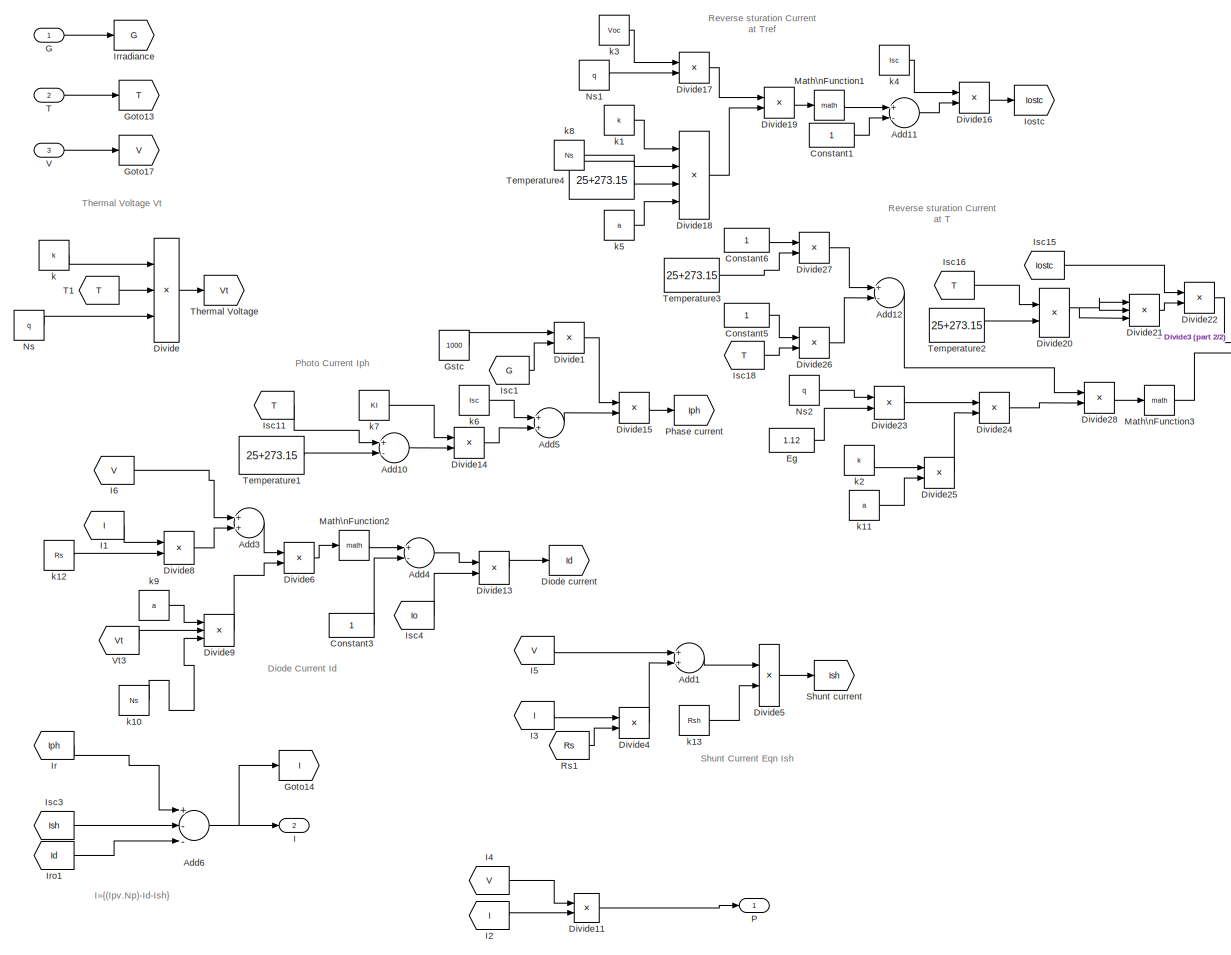
[diagram: PV/PV panel1 - part 1/2, most of the canvas]
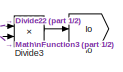
[diagram: PV/PV panel1 - part 2/2, middle right region]
BLOCK [SubSystem] PV/PV panel1
  FunctionWithSeparateData = off
  MaskCallbackString = |||||||||
  MaskEnableString = on,on,on,on,on,on,on,on,on,on
  MaskHideContents = off
  MaskIconFrame = on
  MaskIconOpaque = on
  MaskIconRotate = none
  MaskIconUnits = autoscale
  MaskPortRotate = default
  MaskPromptString = Open Circuit Voltage|Short Circuit Current|Temp Coeff . Open Circuit Voltage|Temp Coeff . Short Circuit Current|Ideality Factor|No of Cells in series|Module Series Resistance |Module Shunt Resistance|Electron Charge|Boltzmann Constant
  MaskStyleString = edit,edit,edit,edit,edit,edit,edit,edit,edit,edit
  MaskTabNameString = ,,,,,,,,,
  MaskToolTipString = on,on,on,on,on,on,on,on,on,on
  MaskTunableValueString = on,on,on,on,on,on,on,on,on,on
  MaskValueString = 37.98|8.67|3.6e-3|6e-4|1.2|60|0.2|429|1.6e-19|1.38e-23
  MaskVarAliasString = ,,,,,,,,,
  MaskVariables = Voc=@1;Isc=@2;KV=@3;KI=@4;a=@5;Ns=@6;Rs=@7;Rsh=@8;q=@9;k=@10;
  MaskVisibilityString = on,on,on,on,on,on,on,on,on,on
  MinAlgLoopOccurrences = off
  Opaque = off
  Ports = [3, 2]
  PropExecContextOutsideSubsystem = off
  RTWSystemCode = Auto
  RequestExecContextInheritance = off
BLOCK [Sum] PV/PV panel1/Add1
  InputSameDT = off
  OutDataTypeMode = Inherit via internal rule
  OutDataTypeStr = Inherit: Inherit via internal rule
  Ports = [2, 1]
  SaturateOnIntegerOverflow = off
BLOCK [Sum] PV/PV panel1/Add10
  InputSameDT = off
  Inputs = +-
  OutDataTypeMode = Inherit via internal rule
  OutDataTypeStr = Inherit: Inherit via internal rule
  Ports = [2, 1]
  SaturateOnIntegerOverflow = off
BLOCK [Sum] PV/PV panel1/Add11
  InputSameDT = off
  Inputs = +-
  OutDataTypeMode = Inherit via internal rule
  OutDataTypeStr = Inherit: Inherit via internal rule
  Ports = [2, 1]
  SaturateOnIntegerOverflow = off
BLOCK [Sum] PV/PV panel1/Add12
  InputSameDT = off
  Inputs = +-
  OutDataTypeMode = Inherit via internal rule
  OutDataTypeStr = Inherit: Inherit via internal rule
  Ports = [2, 1]
  SaturateOnIntegerOverflow = off
BLOCK [Sum] PV/PV panel1/Add3
  InputSameDT = off
  OutDataTypeMode = Inherit via internal rule
  OutDataTypeStr = Inherit: Inherit via internal rule
  Ports = [2, 1]
  SaturateOnIntegerOverflow = off
BLOCK [Sum] PV/PV panel1/Add4
  InputSameDT = off
  Inputs = +-
  OutDataTypeMode = Inherit via internal rule
  OutDataTypeStr = Inherit: Inherit via internal rule
  Ports = [2, 1]
  SaturateOnIntegerOverflow = off
BLOCK [Sum] PV/PV panel1/Add5
  InputSameDT = off
  OutDataTypeMode = Inherit via internal rule
  OutDataTypeStr = Inherit: Inherit via internal rule
  Ports = [2, 1]
  SaturateOnIntegerOverflow = off
BLOCK [Sum] PV/PV panel1/Add6
  InputSameDT = off
  Inputs = +--
  OutDataTypeMode = Inherit via internal rule
  OutDataTypeStr = Inherit: Inherit via internal rule
  Ports = [3, 1]
  SaturateOnIntegerOverflow = off
BLOCK [Constant] PV/PV panel1/Constant1
BLOCK [Constant] PV/PV panel1/Constant3
BLOCK [Constant] PV/PV panel1/Constant5
BLOCK [Constant] PV/PV panel1/Constant6
BLOCK [Goto] PV/PV panel1/Diode current
  GotoTag = Id
  TagVisibility = local
BLOCK [Product] PV/PV panel1/Divide
  InputSameDT = off
  Inputs = **/
  OutDataTypeMode = Inherit via internal rule
  OutDataTypeStr = Inherit: Inherit via internal rule
  Ports = [3, 1]
  RndMeth = Floor
  SaturateOnIntegerOverflow = off
BLOCK [Product] PV/PV panel1/Divide1
  InputSameDT = off
  Inputs = /*
  OutDataTypeMode = Inherit via internal rule
  OutDataTypeStr = Inherit: Inherit via internal rule
  Ports = [2, 1]
  RndMeth = Floor
  SaturateOnIntegerOverflow = off
BLOCK [Product] PV/PV panel1/Divide11
  InputSameDT = off
  Inputs = **
  OutDataTypeMode = Inherit via internal rule
  OutDataTypeStr = Inherit: Inherit via internal rule
  Ports = [2, 1]
  RndMeth = Floor
  SaturateOnIntegerOverflow = off
BLOCK [Product] PV/PV panel1/Divide13
  InputSameDT = off
  Inputs = **
  OutDataTypeMode = Inherit via internal rule
  OutDataTypeStr = Inherit: Inherit via internal rule
  Ports = [2, 1]
  RndMeth = Floor
  SaturateOnIntegerOverflow = off
BLOCK [Product] PV/PV panel1/Divide14
  InputSameDT = off
  Inputs = **
  OutDataTypeMode = Inherit via internal rule
  OutDataTypeStr = Inherit: Inherit via internal rule
  Ports = [2, 1]
  RndMeth = Floor
  SaturateOnIntegerOverflow = off
BLOCK [Product] PV/PV panel1/Divide15
  InputSameDT = off
  Inputs = **
  OutDataTypeMode = Inherit via internal rule
  OutDataTypeStr = Inherit: Inherit via internal rule
  Ports = [2, 1]
  RndMeth = Floor
  SaturateOnIntegerOverflow = off
BLOCK [Product] PV/PV panel1/Divide16
  InputSameDT = off
  Inputs = */
  OutDataTypeMode = Inherit via internal rule
  OutDataTypeStr = Inherit: Inherit via internal rule
  Ports = [2, 1]
  RndMeth = Floor
  SaturateOnIntegerOverflow = off
BLOCK [Product] PV/PV panel1/Divide17
  InputSameDT = off
  Inputs = **
  OutDataTypeMode = Inherit via internal rule
  OutDataTypeStr = Inherit: Inherit via internal rule
  Ports = [2, 1]
  RndMeth = Floor
  SaturateOnIntegerOverflow = off
BLOCK [Product] PV/PV panel1/Divide18
  InputSameDT = off
  Inputs = ****
  OutDataTypeMode = Inherit via internal rule
  OutDataTypeStr = Inherit: Inherit via internal rule
  Ports = [4, 1]
  RndMeth = Floor
  SaturateOnIntegerOverflow = off
BLOCK [Product] PV/PV panel1/Divide19
  InputSameDT = off
  Inputs = */
  OutDataTypeMode = Inherit via internal rule
  OutDataTypeStr = Inherit: Inherit via internal rule
  Ports = [2, 1]
  RndMeth = Floor
  SaturateOnIntegerOverflow = off
BLOCK [Product] PV/PV panel1/Divide20
  InputSameDT = off
  Inputs = */
  OutDataTypeMode = Inherit via internal rule
  OutDataTypeStr = Inherit: Inherit via internal rule
  Ports = [2, 1]
  RndMeth = Floor
  SaturateOnIntegerOverflow = off
BLOCK [Product] PV/PV panel1/Divide21
  InputSameDT = off
  Inputs = ***
  OutDataTypeMode = Inherit via internal rule
  OutDataTypeStr = Inherit: Inherit via internal rule
  Ports = [3, 1]
  RndMeth = Floor
  SaturateOnIntegerOverflow = off
BLOCK [Product] PV/PV panel1/Divide22
  InputSameDT = off
  Inputs = **
  OutDataTypeMode = Inherit via internal rule
  OutDataTypeStr = Inherit: Inherit via internal rule
  Ports = [2, 1]
  RndMeth = Floor
  SaturateOnIntegerOverflow = off
BLOCK [Product] PV/PV panel1/Divide23
  InputSameDT = off
  Inputs = **
  OutDataTypeMode = Inherit via internal rule
  OutDataTypeStr = Inherit: Inherit via internal rule
  Ports = [2, 1]
  RndMeth = Floor
  SaturateOnIntegerOverflow = off
BLOCK [Product] PV/PV panel1/Divide24
  InputSameDT = off
  Inputs = */
  OutDataTypeMode = Inherit via internal rule
  OutDataTypeStr = Inherit: Inherit via internal rule
  Ports = [2, 1]
  RndMeth = Floor
  SaturateOnIntegerOverflow = off
BLOCK [Product] PV/PV panel1/Divide25
  InputSameDT = off
  Inputs = **
  OutDataTypeMode = Inherit via internal rule
  OutDataTypeStr = Inherit: Inherit via internal rule
  Ports = [2, 1]
  RndMeth = Floor
  SaturateOnIntegerOverflow = off
BLOCK [Product] PV/PV panel1/Divide26
  InputSameDT = off
  Inputs = */
  OutDataTypeMode = Inherit via internal rule
  OutDataTypeStr = Inherit: Inherit via internal rule
  Ports = [2, 1]
  RndMeth = Floor
  SaturateOnIntegerOverflow = off
BLOCK [Product] PV/PV panel1/Divide27
  InputSameDT = off
  Inputs = */
  OutDataTypeMode = Inherit via internal rule
  OutDataTypeStr = Inherit: Inherit via internal rule
  Ports = [2, 1]
  RndMeth = Floor
  SaturateOnIntegerOverflow = off
BLOCK [Product] PV/PV panel1/Divide28
  InputSameDT = off
  Inputs = **
  OutDataTypeMode = Inherit via internal rule
  OutDataTypeStr = Inherit: Inherit via internal rule
  Ports = [2, 1]
  RndMeth = Floor
  SaturateOnIntegerOverflow = off
BLOCK [Product] PV/PV panel1/Divide3
  InputSameDT = off
  Inputs = **
  OutDataTypeMode = Inherit via internal rule
  OutDataTypeStr = Inherit: Inherit via internal rule
  Ports = [2, 1]
  RndMeth = Floor
  SaturateOnIntegerOverflow = off
BLOCK [Product] PV/PV panel1/Divide4
  InputSameDT = off
  Inputs = **
  OutDataTypeMode = Inherit via internal rule
  OutDataTypeStr = Inherit: Inherit via internal rule
  Ports = [2, 1]
  RndMeth = Floor
  SaturateOnIntegerOverflow = off
BLOCK [Product] PV/PV panel1/Divide5
  InputSameDT = off
  Inputs = */
  OutDataTypeMode = Inherit via internal rule
  OutDataTypeStr = Inherit: Inherit via internal rule
  Ports = [2, 1]
  RndMeth = Floor
  SaturateOnIntegerOverflow = off
BLOCK [Product] PV/PV panel1/Divide6
  InputSameDT = off
  Inputs = */
  OutDataTypeMode = Inherit via internal rule
  OutDataTypeStr = Inherit: Inherit via internal rule
  Ports = [2, 1]
  RndMeth = Floor
  SaturateOnIntegerOverflow = off
BLOCK [Product] PV/PV panel1/Divide8
  InputSameDT = off
  Inputs = **
  OutDataTypeMode = Inherit via internal rule
  OutDataTypeStr = Inherit: Inherit via internal rule
  Ports = [2, 1]
  RndMeth = Floor
  SaturateOnIntegerOverflow = off
BLOCK [Product] PV/PV panel1/Divide9
  InputSameDT = off
  Inputs = ***
  OutDataTypeMode = Inherit via internal rule
  OutDataTypeStr = Inherit: Inherit via internal rule
  Ports = [3, 1]
  RndMeth = Floor
  SaturateOnIntegerOverflow = off
BLOCK [Constant] PV/PV panel1/Eg
  Value = 1.12
BLOCK [Inport] PV/PV panel1/G
  IconDisplay = Port number
BLOCK [Goto] PV/PV panel1/Goto13
  GotoTag = T
  TagVisibility = local
BLOCK [Goto] PV/PV panel1/Goto14
  GotoTag = I
  TagVisibility = local
BLOCK [Goto] PV/PV panel1/Goto17
  GotoTag = V
  TagVisibility = local
BLOCK [Constant] PV/PV panel1/Gstc
  Value = 1000
BLOCK [Outport] PV/PV panel1/I
  IconDisplay = Port number
  Port = 2
BLOCK [From] PV/PV panel1/I1
  GotoTag = I
BLOCK [From] PV/PV panel1/I2
  GotoTag = I
BLOCK [From] PV/PV panel1/I3
  GotoTag = I
BLOCK [From] PV/PV panel1/I4
  GotoTag = V
BLOCK [From] PV/PV panel1/I5
  GotoTag = V
BLOCK [From] PV/PV panel1/I6
  GotoTag = V
BLOCK [Goto] PV/PV panel1/Io
  GotoTag = Io
  TagVisibility = local
BLOCK [Goto] PV/PV panel1/Iostc
  GotoTag = Iostc
  TagVisibility = local
BLOCK [From] PV/PV panel1/Ir
  GotoTag = Iph
BLOCK [From] PV/PV panel1/Iro1
  GotoTag = Id
BLOCK [Goto] PV/PV panel1/Irradiance
  GotoTag = G
  TagVisibility = local
BLOCK [From] PV/PV panel1/Isc1
  GotoTag = G
BLOCK [From] PV/PV panel1/Isc11
  GotoTag = T
BLOCK [From] PV/PV panel1/Isc15
  GotoTag = Iostc
BLOCK [From] PV/PV panel1/Isc16
  GotoTag = T
BLOCK [From] PV/PV panel1/Isc18
  GotoTag = T
BLOCK [From] PV/PV panel1/Isc3
  GotoTag = Ish
BLOCK [From] PV/PV panel1/Isc4
  GotoTag = Io
BLOCK [Math] PV/PV panel1/Math\nFunction1
  Ports = [1, 1]
BLOCK [Math] PV/PV panel1/Math\nFunction2
  Ports = [1, 1]
BLOCK [Math] PV/PV panel1/Math\nFunction3
  Ports = [1, 1]
BLOCK [Constant] PV/PV panel1/Ns
  OutDataType = fixdt(1, 16)
  OutScaling = 2^0
  Value = q
BLOCK [Constant] PV/PV panel1/Ns1
  OutDataType = fixdt(1, 16)
  OutScaling = 2^0
  Value = q
BLOCK [Constant] PV/PV panel1/Ns2
  OutDataType = fixdt(1, 16)
  OutScaling = 2^0
  Value = q
BLOCK [Outport] PV/PV panel1/P
  IconDisplay = Port number
BLOCK [Goto] PV/PV panel1/Phase current 
  GotoTag = Iph
  TagVisibility = local
BLOCK [From] PV/PV panel1/Rs1
  GotoTag = Rs
BLOCK [Goto] PV/PV panel1/Shunt current
  GotoTag = Ish
  TagVisibility = local
BLOCK [Inport] PV/PV panel1/T
  IconDisplay = Port number
  Port = 2
BLOCK [From] PV/PV panel1/T1
  GotoTag = T
BLOCK [Constant] PV/PV panel1/Temperature1
  Value = 25+273.15
BLOCK [Constant] PV/PV panel1/Temperature2
  Value = 25+273.15
BLOCK [Constant] PV/PV panel1/Temperature3
  Value = 25+273.15
BLOCK [Constant] PV/PV panel1/Temperature4
  Value = 25+273.15
BLOCK [Goto] PV/PV panel1/Thermal Voltage
  GotoTag = Vt
  TagVisibility = local
BLOCK [Inport] PV/PV panel1/V
  IconDisplay = Port number
  Port = 3
BLOCK [From] PV/PV panel1/Vt3
  GotoTag = Vt
BLOCK [Constant] PV/PV panel1/k
  OutDataType = fixdt(1, 16)
  OutScaling = 2^0
  Value = k
BLOCK [Constant] PV/PV panel1/k1
  OutDataType = fixdt(1, 16)
  OutScaling = 2^0
  Value = k
BLOCK [Constant] PV/PV panel1/k10
  OutDataType = fixdt(1, 16)
  OutScaling = 2^0
  Value = Ns
BLOCK [Constant] PV/PV panel1/k11
  OutDataType = fixdt(1, 16)
  OutScaling = 2^0
  Value = a
BLOCK [Constant] PV/PV panel1/k12
  OutDataType = fixdt(1, 16)
  OutScaling = 2^0
  Value = Rs
BLOCK [Constant] PV/PV panel1/k13
  OutDataType = fixdt(1, 16)
  OutScaling = 2^0
  Value = Rsh
BLOCK [Constant] PV/PV panel1/k2
  OutDataType = fixdt(1, 16)
  OutScaling = 2^0
  Value = k
BLOCK [Constant] PV/PV panel1/k3
  OutDataType = fixdt(1, 16)
  OutScaling = 2^0
  Value = Voc
BLOCK [Constant] PV/PV panel1/k4
  OutDataType = fixdt(1, 16)
  OutScaling = 2^0
  Value = Isc
BLOCK [Constant] PV/PV panel1/k5
  OutDataType = fixdt(1, 16)
  OutScaling = 2^0
  Value = a
BLOCK [Constant] PV/PV panel1/k6
  OutDataType = fixdt(1, 16)
  OutScaling = 2^0
  Value = Isc
BLOCK [Constant] PV/PV panel1/k7
  OutDataType = fixdt(1, 16)
  OutScaling = 2^0
  Value = KI
BLOCK [Constant] PV/PV panel1/k8
  OutDataType = fixdt(1, 16)
  OutScaling = 2^0
  Value = Ns
BLOCK [Constant] PV/PV panel1/k9
  OutDataType = fixdt(1, 16)
  OutScaling = 2^0
  Value = a
BLOCK [Reference] PV/R1  REF=powerlib/Elements/Series RLC Branch
  BranchType = R
  Capacitance = 1.0
  DialogController = POWERSYS.PowerSysDialog
  Inductance = 1.0
  InitialCurrent = 0
  InitialVoltage = 0
  LConnTagsString = __new0
  LeftPortType = p1
  Measurements = None
  PhysicalDomain = powersysdomain
  Ports = [0, 0, 0, 0, 0, 1, 1]
  RConnTagsString = __new0
  Resistance = 1
  RightPortType = p1
  SetiL0 = off
  Setx0 = off
  SourceBlock = powerlib/Elements/Series RLC Branch
  SourceType = Series RLC Branch
  SubClassName = unknown
BLOCK [SubSystem] PV/Ramp1
  FunctionWithSeparateData = off
  MaskCallbackString = |||
  MaskCapabilities = slmaskedcaps(gcbh)
  MaskDescription = Output a ramp signal starting at the specified time.
  MaskDisplay = plot([0:10],[1,1,1,1:8])
  MaskEnableString = on,on,on,on
  MaskHideContents = off
  MaskIconFrame = on
  MaskIconOpaque = on
  MaskIconRotate = none
  MaskIconUnits = autoscale
  MaskInitialization = blkName = gcb;\nset_param([blkName '/Constant'], 'VectorParams1D',VectorParams1D);\nset_param([blkName '/Constant1'], 'VectorParams1D',VectorParams1D);\nset_param([blkName '/Step'], 'VectorParams1D',VectorParams1D);
  MaskPortRotate = default
  MaskPromptString = Slope:|Start time:|Initial output:|Interpret vector parameters as 1-D
  MaskSelfModifiable = on
  MaskStyleString = edit,edit,edit,checkbox
  MaskTabNameString = ,,,
  MaskToolTipString = on,on,on,on
  MaskTunableValueString = on,on,on,off
  MaskType = Ramp
  MaskValueString = 1000/5|0|0|on
  MaskVarAliasString = ,,,
  MaskVariables = slope=@1;start=@2;X0=@3;VectorParams1D=&4;
  MaskVisibilityString = on,on,on,on
  MinAlgLoopOccurrences = off
  Opaque = off
  Ports = [0, 1]
  PropExecContextOutsideSubsystem = off
  RTWSystemCode = Auto
  RequestExecContextInheritance = off
BLOCK [Clock] PV/Ramp1/Clock
  Decimation = 10
  DisableCoverage = on
BLOCK [Constant] PV/Ramp1/Constant
  DisableCoverage = on
  OutDataType = fixdt(1, 16)
  OutDataTypeMode = Inherit via back propagation
  OutDataTypeStr = Inherit: Inherit via back propagation
  OutScaling = 2^0
  Value = start
BLOCK [Constant] PV/Ramp1/Constant1
  DisableCoverage = on
  OutDataType = fixdt(1, 16)
  OutDataTypeMode = Inherit via back propagation
  OutDataTypeStr = Inherit: Inherit via back propagation
  OutScaling = 2^0
  Value = X0
BLOCK [Outport] PV/Ramp1/Out1
  IconDisplay = Port number
  OutDataType = fixdt(1, 16)
  OutScaling = 2^0
BLOCK [Sum] PV/Ramp1/Output
  IconShape = round
  Inputs = |++
  OutDataType = fixdt(1, 16)
  OutScaling = 2^0
  Ports = [2, 1]
BLOCK [Product] PV/Ramp1/Product
  DisableCoverage = on
  OutDataType = fixdt(1, 16)
  OutScaling = 2^0
  Ports = [2, 1]
  RndMeth = Floor
BLOCK [Step] PV/Ramp1/Step
  After = slope
  DisableCoverage = on
  SampleTime = 0
  Time = start
BLOCK [SubSystem] PV/Ramp1/Subsystem
  FunctionWithSeparateData = off
  MaskHideContents = off
  MinAlgLoopOccurrences = off
  Opaque = off
  Permissions = NoReadOrWrite
  Ports = [1]
  PropExecContextOutsideSubsystem = off
  RTWSystemCode = Auto
  RequestExecContextInheritance = off
BLOCK [Goto] PV/Ramp1/Subsystem/Goto
  GotoTag = gggg
  TagVisibility = global
BLOCK [Inport] PV/Ramp1/Subsystem/In1
  IconDisplay = Port number
BLOCK [Sum] PV/Ramp1/Sum
  DisableCoverage = on
  IconShape = round
  Inputs = |+-
  OutDataType = fixdt(1, 16)
  OutScaling = 2^0
  Ports = [2, 1]
BLOCK [Constant] PV/Temperature_op2
  Value = 25+273.15
BLOCK [Constant] PV/Temperature_op3
  Value = 35
BLOCK [SubSystem] PV/Voltage Measurement2
  CopyFcn = powericon('psbloadfunction',gcb,'Measurement Block','UpdateGotoTag');
  DialogController = POWERSYS.PowerSysDialog
  FunctionWithSeparateData = off
  MaskCallbackString = ||
  MaskDescription = Ideal voltage measurement.
  MaskEnableString = off,off,off
  MaskHelp = web(psbhelp);
  MaskHideContents = off
  MaskIconFrame = on
  MaskIconOpaque = off
  MaskIconRotate = port
  MaskIconUnits = autoscale
  MaskInitialization = block = gcb;\npowericon('psbloadfunction',block,'Measurement Block','Initialize');\npowericon('MeasurementBlockInit',block);\npower_initmask();
  MaskPortRotate = default
  MaskPromptString = Phasor simulation|Output signal :|Equivalent circuit
  MaskSelfModifiable = on
  MaskStyleString = checkbox,popup(Complex|Real-Imag|Magnitude-Angle|Magnitude),edit
  MaskTabNameString = ,,
  MaskToolTipString = on,on,on
  MaskTunableValueString = on,on,on
  MaskType = Voltage Measurement
  MaskValueString = off|Complex|0
  MaskVarAliasString = ,,
  MaskVariables = PhasorSimulation=@1;OutputType=@2;PSBequivalent=@3;
  MaskVisibilityString = off,on,off
  MinAlgLoopOccurrences = off
  Opaque = off
  Ports = [0, 1, 0, 0, 0, 2]
  PreSaveFcn = if strcmp('inactive',get_param(gcb,'linkstatus'));\n                                                  \nset_param(gcb,'Linkstatus','restore')             \nend
  PropExecContextOutsideSubsystem = off
  RTWSystemCode = Auto
  RequestExecContextInheritance = off
BLOCK [PMIOPort] PV/Voltage Measurement2/+
  Port = 1
  Side = Left
BLOCK [PMIOPort] PV/Voltage Measurement2/-
  Port = 2
  Side = Left
BLOCK [PMComponent] PV/Voltage Measurement2/VoltageMeasurement
  LConnTagsString = +
  LeftPortType = p1
  MaskIconFrame = on
  MaskIconOpaque = on
  MaskIconRotate = none
  MaskIconUnits = autoscale
  MaskPortRotate = default
  MaskType = InnerPowersysBlock
  PhysicalDomain = powersysdomain
  Ports = [0, 0, 0, 0, 0, 1, 1]
  RConnTagsString = -
  RightPortType = p1
BLOCK [SubSystem] PV/Voltage Measurement2/do not delete\nthis gain
  FunctionWithSeparateData = off
  MaskCallbackString = ||
  MaskDescription = Element-wise gain(y=K.*u)ot matrix gain(y=K*u or y=u*K).
  MaskDisplay = plot([0 0 10 0],[0 10 5 0]);\ndisp('1')
  MaskEnableString = on,on,on
  MaskHideContents = off
  MaskIconFrame = off
  MaskIconOpaque = on
  MaskIconRotate = none
  MaskIconUnits = autoscale
  MaskPortRotate = default
  MaskPromptString = Gain|Muliplication|Sample time(-1 for inherited)
  MaskStyleString = edit,popup(Element-wise(K.*u)|Matrix(K*u)|Matrix(u*K)|Matrix(K*u(u vector)),edit
  MaskTabNameString = ,,
  MaskToolTipString = on,on,on
  MaskTunableValueString = on,on,on
  MaskType = Gain
  MaskValueString = 1|Element-wise(K.*u)|0
  MaskVarAliasString = ,,
  MaskVariables = x=@1;XX=@2;Ts=@3;
  MaskVisibilityString = on,on,on
  MinAlgLoopOccurrences = off
  Opaque = off
  Permissions = NoReadOrWrite
  Ports = [1, 1]
  PropExecContextOutsideSubsystem = off
  RTWSystemCode = Auto
  RequestExecContextInheritance = off
BLOCK [Sum] PV/Voltage Measurement2/do not delete\nthis gain/Add
  InputSameDT = off
  Inputs = 5
  OutDataType = fixdt(1, 16)
  OutDataTypeMode = Inherit via internal rule
  OutDataTypeStr = Inherit: Inherit via internal rule
  OutScaling = 2^-10
  Ports = [5, 1]
  SaturateOnIntegerOverflow = off
BLOCK [Sum] PV/Voltage Measurement2/do not delete\nthis gain/Add1
  InputSameDT = off
  OutDataType = fixdt(1, 16)
  OutDataTypeMode = Inherit via internal rule
  OutDataTypeStr = Inherit: Inherit via internal rule
  OutScaling = 2^-10
  Ports = [2, 1]
  SaturateOnIntegerOverflow = off
BLOCK [Sum] PV/Voltage Measurement2/do not delete\nthis gain/Add2
  InputSameDT = off
  OutDataType = fixdt(1, 16)
  OutDataTypeMode = Inherit via internal rule
  OutDataTypeStr = Inherit: Inherit via internal rule
  OutScaling = 2^-10
  Ports = [2, 1]
  SaturateOnIntegerOverflow = off
BLOCK [Sum] PV/Voltage Measurement2/do not delete\nthis gain/Add3
  InputSameDT = off
  OutDataType = fixdt(1, 16)
  OutDataTypeMode = Inherit via internal rule
  OutDataTypeStr = Inherit: Inherit via internal rule
  OutScaling = 2^-10
  Ports = [2, 1]
  SaturateOnIntegerOverflow = off
BLOCK [Sum] PV/Voltage Measurement2/do not delete\nthis gain/Add4
  InputSameDT = off
  OutDataType = fixdt(1, 16)
  OutDataTypeMode = Inherit via internal rule
  OutDataTypeStr = Inherit: Inherit via internal rule
  OutScaling = 2^-10
  Ports = [2, 1]
  SaturateOnIntegerOverflow = off
BLOCK [Sum] PV/Voltage Measurement2/do not delete\nthis gain/Add5
  InputSameDT = off
  OutDataType = fixdt(1, 16)
  OutDataTypeMode = Inherit via internal rule
  OutDataTypeStr = Inherit: Inherit via internal rule
  OutScaling = 2^-10
  Ports = [2, 1]
  SaturateOnIntegerOverflow = off
BLOCK [Clock] PV/Voltage Measurement2/do not delete\nthis gain/Clock
  Decimation = 10
BLOCK [Clock] PV/Voltage Measurement2/do not delete\nthis gain/Clock2
  Decimation = 10
BLOCK [Constant] PV/Voltage Measurement2/do not delete\nthis gain/Constant
  OutDataType = fixdt(1, 16)
  OutScaling = 2^0
BLOCK [Demux] PV/Voltage Measurement2/do not delete\nthis gain/Demux
  DisplayOption = bar
  Outputs = 3
  Ports = [1, 3]
BLOCK [From] PV/Voltage Measurement2/do not delete\nthis gain/From
  GotoTag = tp2ee6e5fb_6762_4b18_8d7a_180c0387e5a7
BLOCK [From] PV/Voltage Measurement2/do not delete\nthis gain/From1
  GotoTag = A256891
BLOCK [From] PV/Voltage Measurement2/do not delete\nthis gain/From2
  GotoTag = A256892
BLOCK [From] PV/Voltage Measurement2/do not delete\nthis gain/From3
  GotoTag = A256893
BLOCK [From] PV/Voltage Measurement2/do not delete\nthis gain/From4
  GotoTag = A256894
BLOCK [From] PV/Voltage Measurement2/do not delete\nthis gain/From5
  GotoTag = tpfb777cdd_30d6_4c40_bbee_3ab4d3bd5893235
BLOCK [From] PV/Voltage Measurement2/do not delete\nthis gain/From6
  GotoTag = A256893
BLOCK [Gain] PV/Voltage Measurement2/do not delete\nthis gain/Gain
  Gain = 550/241
  OutDataType = fixdt(1, 16)
  OutDataTypeMode = Inherit via internal rule
  OutDataTypeStr = Inherit: Inherit via internal rule
  OutScaling = 2^0
  ParamDataTypeStr = Inherit: Inherit via internal rule
  ParameterDataType = fixdt(1, 16)
  ParameterDataTypeMode = Inherit via internal rule
  ParameterScaling = 2^0
  SaturateOnIntegerOverflow = off
BLOCK [Gain] PV/Voltage Measurement2/do not delete\nthis gain/Gain1
  Gain = 600/241
  OutDataType = fixdt(1, 16)
  OutDataTypeMode = Inherit via internal rule
  OutDataTypeStr = Inherit: Inherit via internal rule
  OutScaling = 2^0
  ParamDataTypeStr = Inherit: Inherit via internal rule
  ParameterDataType = fixdt(1, 16)
  ParameterDataTypeMode = Inherit via internal rule
  ParameterScaling = 2^0
  SaturateOnIntegerOverflow = off
BLOCK [Inport] PV/Voltage Measurement2/do not delete\nthis gain/In1
  IconDisplay = Port number
  OutDataType = sfix(16)
  OutScaling = 2^0
BLOCK [Lookup] PV/Voltage Measurement2/do not delete\nthis gain/Lookup Table1
  InputValues = [0,0.05,0.1,0.15,0.2,0.25,0.3,0.35,0.4,0.45,0.5,1,1.5,2,2.5,3]
  OutDataType = fixdt(1, 16)
  OutScaling = 2^0
  SaturateOnIntegerOverflow = off
  Table = [0,30.2419,50.8871,65.8871,84.7581,100.8871,108.1452,115.5645,118.3065,119.5968,120,120,120,120,120,120]
BLOCK [MultiPortSwitch] PV/Voltage Measurement2/do not delete\nthis gain/Multiport\nSwitch
  InputSameDT = off
  Inputs = 5
  OutDataType = fixdt(1, 16)
  OutScaling = 2^0
  Ports = [6, 1]
  SaturateOnIntegerOverflow = off
BLOCK [Outport] PV/Voltage Measurement2/do not delete\nthis gain/Out1
  IconDisplay = Port number
  OutDataType = sfix(16)
  OutScaling = 2^0
BLOCK [Reference] PV/Voltage Measurement2/do not delete\nthis gain/RMS  REF=powerlib_extras/Measurements/RMS
  DialogController = POWERSYS.PowerSysDialog
  FunctionWithSeparateData = off
  Ports = [1, 1]
  RTWMemSecDataConstants = Inherit from model
  RTWMemSecDataInternal = Inherit from model
  RTWMemSecDataParameters = Inherit from model
  RTWMemSecFuncExecute = Inherit from model
  RTWMemSecFuncInitTerm = Inherit from model
  ShowPortLabels = FromPortIcon
  SourceBlock = powerlib_extras/Measurements/RMS
  SourceType = RMS
  SystemSampleTime = -1
  f1 = 50
BLOCK [Sin] PV/Voltage Measurement2/do not delete\nthis gain/Sine Wave
  Amplitude = 5
  Bias = 0
  Frequency = 2*pi*50
  Offset = 0
  Phase = 0
  Ports = [0, 1]
  SampleTime = 50e-6
  Samples = 10
BLOCK [Switch] PV/Voltage Measurement2/do not delete\nthis gain/Switch
  InputSameDT = off
  OutDataType = fixdt(1, 16)
  OutScaling = 2^0
  SaturateOnIntegerOverflow = off
  Threshold = 0.5
BLOCK [Switch] PV/Voltage Measurement2/do not delete\nthis gain/Switch1
  InputSameDT = off
  OutDataType = fixdt(1, 16)
  OutScaling = 2^0
  SaturateOnIntegerOverflow = off
  Threshold = 0.5
BLOCK [UniformRandomNumber] PV/Voltage Measurement2/do not delete\nthis gain/Uniform Random\nNumber
  SampleTime = 50e-6
BLOCK [UniformRandomNumber] PV/Voltage Measurement2/do not delete\nthis gain/Uniform Random\nNumber1
  Maximum = 2
  Minimum = -2
  SampleTime = 50e-6
BLOCK [UniformRandomNumber] PV/Voltage Measurement2/do not delete\nthis gain/Uniform Random\nNumber2
  Maximum = 0.1
  Minimum = -0.1
  SampleTime = 50e-6
BLOCK [UniformRandomNumber] PV/Voltage Measurement2/do not delete\nthis gain/Uniform Random\nNumber3
  Maximum = 0.1
  Minimum = -0.1
  SampleTime = 50e-6
BLOCK [UniformRandomNumber] PV/Voltage Measurement2/do not delete\nthis gain/Uniform Random\nNumber4
  Maximum = 4
  Minimum = -4
  SampleTime = 50e-6
BLOCK [Reference] PV/Voltage Measurement2/model  REF=powerlib_models/Continuous/Measurement
  FunctionWithSeparateData = off
  Ports = [1, 1]
  RTWMemSecDataConstants = Inherit from model
  RTWMemSecDataInternal = Inherit from model
  RTWMemSecDataParameters = Inherit from model
  RTWMemSecFuncExecute = Inherit from model
  RTWMemSecFuncInitTerm = Inherit from model
  ShowPortLabels = FromPortIcon
  SourceBlock = powerlib_models/Continuous/Measurement
  SourceType = SubSystem
  SystemSampleTime = -1
BLOCK [From] PV/Voltage Measurement2/source
  GotoTag = tpd38e0382_45e6_411d_b787_4c596b674b80
  TagVisibility = global
BLOCK [Outport] PV/Voltage Measurement2/v
  IconDisplay = Port number
  InitialOutput = 0
  OutDataType = sfix(16)
  OutScaling = 2^0
BLOCK [SubSystem] S1
  CopyFcn = powericon('psbloadfunction',gcb,'3-Phase VI Measurement','UpdateGotoTag');
  DialogController = POWERSYS.PowerSysDialog
  FunctionWithSeparateData = off
  MaskCallbackString = %powericon('ThreePhaseVIMeasurementCback',gcb);|%powericon('ThreePhaseVIMeasurementCback',gcb);||%powericon('ThreePhaseVIMeasurementCback',gcb);|%powericon('ThreePhaseVIMeasurementCback',gcb);|%powericon('ThreePhaseVIMeasurementCback',gcb);||%powericon('ThreePhaseVIMeasurementCback',gcb);|||||
  MaskDescription = This block is used to measure three-phase voltages and currents in a circuit. When connected in series with a  three-phase element, it return the three phase-to-ground voltages and line currents.\n\nThe block can output the voltages and currents in per unit values or in volts and amperes. Check the appropriate boxes if you want to output the voltages and currents  in pu
  MaskEnableString = on,on,on,on,on,on,on,on,on,on,off,on,on
  MaskHelp = web(psbhelp)
  MaskHideContents = off
  MaskIconFrame = on
  MaskIconOpaque = on
  MaskIconRotate = none
  MaskIconUnits = autoscale
  MaskInitialization = block = gcb;\n[Kv,Ki,SelectionModeV,SelectionModeI,SignalLength]=powericon('ThreePhaseVIMeasurementParam',block,Vpu,Ipu,Vbase,Pbase,OutputType,PhasorSimulation);\npowericon('ThreePhaseVIMeasurementCback',block);\npowericon('psbloadfunction',block,'3-Phase VI Measurement','Initialize');\npowericon('MeasurementBlockInit',block);\npower_initmask();
  MaskPortRotate = default
  MaskPromptString = Voltage measurement|Use a label |Signal label  (use a From block to collect this signal)|Voltage  in pu|Current measurement|Use a label|Signal label  (use a From block to collect this signal)|Currents in pu|Base power ( VA 3 phase)|Base voltage (Vrms phase-phase) :|Output signal :|Phasor simulation (internal use)|Equivalent circuit (internal use)
  MaskSelfModifiable = on
  MaskStyleString = popup(no|phase-to-ground|phase-to-phase),checkbox,edit,checkbox,popup(no|yes),checkbox,edit,checkbox,edit,edit,popup(Complex|Real-Imag|Magnitude-Angle|Magnitude),checkbox,edit
  MaskTabNameString = ,,,,,,,,,,,,
  MaskToolTipString = on,on,on,on,on,on,on,on,on,on,on,on,on
  MaskTunableValueString = off,off,off,on,off,off,off,on,on,on,on,on,on
  MaskType = Three-Phase VI Measurement
  MaskValueString = phase-to-ground|on|Vabc_L|off|yes|on|Iabc_L|off|100e6|500e3|Complex|off|0
  MaskVarAliasString = ,,,,,,,,,,,,
  MaskVariables = VoltageMeasurement=@1;SetLabelV=@2;LabelV=&3;Vpu=@4;CurrentMeasurement=@5;SetLabelI=@6;LabelI=&7;Ipu=@8;Pbase=@9;Vbase=@10;OutputType=@11;PhasorSimulation=@12;PSBequivalent=@13;
  MaskVisibilityString = on,on,on,on,on,on,on,on,off,off,on,off,off
  MinAlgLoopOccurrences = off
  Opaque = off
  Ports = [0, 0, 0, 0, 0, 3, 3]
  PreSaveFcn = try                                  \nset_param(gcb,'Linkstatus','restore')\nend
  PropExecContextOutsideSubsystem = off
  RTWSystemCode = Auto
  RequestExecContextInheritance = off
BLOCK [PMIOPort] S1/A
  Port = 1
  Side = Left
BLOCK [PMIOPort] S1/B
  Port = 2
  Side = Left
BLOCK [PMIOPort] S1/C
  Port = 3
  Side = Left
BLOCK [SubSystem] S1/Ia
  FunctionWithSeparateData = off
  MaskHideContents = off
  MinAlgLoopOccurrences = off
  Opaque = off
  Ports = [0, 1]
  PropExecContextOutsideSubsystem = off
  RTWSystemCode = Auto
  RequestExecContextInheritance = off
BLOCK [Outport] S1/Ia/Out1
  IconDisplay = Port number
  OutDataType = sfix(16)
  OutScaling = 2^0
BLOCK [From] S1/Ia/source
  GotoTag = tp86a0793b_f6a3_483a_b1b5_23b783af7968
  TagVisibility = global
BLOCK [Goto] S1/Iabc
  GotoTag = Iabc_L
  TagVisibility = global
BLOCK [SubSystem] S1/Ib
  FunctionWithSeparateData = off
  MaskHideContents = off
  MinAlgLoopOccurrences = off
  Opaque = off
  Ports = [0, 1]
  PropExecContextOutsideSubsystem = off
  RTWSystemCode = Auto
  RequestExecContextInheritance = off
BLOCK [Outport] S1/Ib/Out1
  IconDisplay = Port number
  OutDataType = sfix(16)
  OutScaling = 2^0
BLOCK [From] S1/Ib/source
  GotoTag = tpc9a1058f_6bcf_4bdd_a8b3_d63ddda8bdc5
  TagVisibility = global
BLOCK [SubSystem] S1/Ic
  FunctionWithSeparateData = off
  MaskHideContents = off
  MinAlgLoopOccurrences = off
  Opaque = off
  Ports = [0, 1]
  PropExecContextOutsideSubsystem = off
  RTWSystemCode = Auto
  RequestExecContextInheritance = off
BLOCK [Outport] S1/Ic/Out1
  IconDisplay = Port number
  OutDataType = sfix(16)
  OutScaling = 2^0
BLOCK [From] S1/Ic/source
  GotoTag = tpa1d645b4_b7ff_4787_ace9_2bf73d16c213
  TagVisibility = global
BLOCK [Mux] S1/Mux1
  DisplayOption = bar
  Inputs = 6
  Ports = [6, 1]
BLOCK [Selector] S1/Selector I
  IndexOptions = Index vector (dialog)
  Indices = SelectionModeI
  InputPortWidth = SignalLength
  OutputSizes = 1
  Ports = [1, 1]
BLOCK [Selector] S1/Selector V
  IndexOptions = Index vector (dialog)
  Indices = SelectionModeV
  InputPortWidth = SignalLength
  OutputSizes = 1
  Ports = [1, 1]
BLOCK [PMComponent] S1/ThreePhaseVIMeasurement
  LConnTagsString = A|B|C
  LeftPortType = p1
  MaskIconFrame = on
  MaskIconOpaque = on
  MaskIconRotate = none
  MaskIconUnits = autoscale
  MaskPortRotate = default
  MaskType = InnerPowersysBlock
  PhysicalDomain = powersysdomain
  Ports = [0, 0, 0, 0, 0, 3, 3]
  RConnTagsString = a|b|c
  RightPortType = p1
BLOCK [Goto] S1/Vabc
  GotoTag = Vabc_L
  TagVisibility = global
BLOCK [SubSystem] S1/Vb
  FunctionWithSeparateData = off
  MaskHideContents = off
  MinAlgLoopOccurrences = off
  Opaque = off
  Ports = [0, 1]
  PropExecContextOutsideSubsystem = off
  RTWSystemCode = Auto
  RequestExecContextInheritance = off
BLOCK [Outport] S1/Vb/Out1
  IconDisplay = Port number
  OutDataType = sfix(16)
  OutScaling = 2^0
BLOCK [From] S1/Vb/source
  GotoTag = tp57bb67bc_6cf6_43cb_9ae5_bc30c3473805
  TagVisibility = global
BLOCK [SubSystem] S1/Vc
  FunctionWithSeparateData = off
  MaskHideContents = off
  MinAlgLoopOccurrences = off
  Opaque = off
  Ports = [0, 1]
  PropExecContextOutsideSubsystem = off
  RTWSystemCode = Auto
  RequestExecContextInheritance = off
BLOCK [Outport] S1/Vc/Out1
  IconDisplay = Port number
  OutDataType = sfix(16)
  OutScaling = 2^0
BLOCK [From] S1/Vc/source
  GotoTag = tpef80e4f8_cef8_4801_b6f2_7d41e770d01b
  TagVisibility = global
BLOCK [PMIOPort] S1/a
  Port = 4
  Side = Right
BLOCK [PMIOPort] S1/b
  Port = 5
  Side = Right
BLOCK [PMIOPort] S1/c
  Port = 6
  Side = Right
BLOCK [SubSystem] S1/gain1
  FunctionWithSeparateData = off
  MaskCallbackString = ||
  MaskDescription = Element-wise gain(y=K.*u)ot matrix gain(y=K*u or y=u*K).
  MaskDisplay = plot([0 0 10 0],[0 10 5 0]);\ndisp('Ki  ')
  MaskEnableString = on,on,on
  MaskHideContents = off
  MaskIconFrame = off
  MaskIconOpaque = on
  MaskIconRotate = none
  MaskIconUnits = autoscale
  MaskPortRotate = default
  MaskPromptString = Gain|Muliplication|Sample time(-1 for inherited)
  MaskStyleString = edit,popup(Element-wise(K.*u)|Matrix(K*u)|Matrix(u*K)|Matrix(K*u(u vector)),edit
  MaskTabNameString = ,,
  MaskToolTipString = on,on,on
  MaskTunableValueString = on,on,on
  MaskType = Gain
  MaskValueString = 1|Element-wise(K.*u)|0
  MaskVarAliasString = ,,
  MaskVariables = x=@1;XX=@2;Ts=@3;
  MaskVisibilityString = on,on,on
  MinAlgLoopOccurrences = off
  Opaque = off
  Permissions = NoReadOrWrite
  Ports = [1, 1]
  PropExecContextOutsideSubsystem = off
  RTWSystemCode = Auto
  RequestExecContextInheritance = off
BLOCK [Sum] S1/gain1/Add
  InputSameDT = off
  OutDataType = fixdt(1, 16)
  OutDataTypeMode = Inherit via internal rule
  OutDataTypeStr = Inherit: Inherit via internal rule
  OutScaling = 2^-10
  Ports = [2, 1]
  SaturateOnIntegerOverflow = off
BLOCK [Reference] S1/gain1/Compare\nTo Zero  REF=simulink/Logic and Bit\nOperations/Compare\nTo Zero
  FunctionWithSeparateData = off
  LogicOutDataTypeMode = uint8
  Ports = [1, 1]
  RTWMemSecDataConstants = Inherit from model
  RTWMemSecDataInternal = Inherit from model
  RTWMemSecDataParameters = Inherit from model
  RTWMemSecFuncExecute = Inherit from model
  RTWMemSecFuncInitTerm = Inherit from model
  ShowPortLabels = FromPortIcon
  SourceBlock = simulink/Logic and Bit\nOperations/Compare\nTo Zero
  SourceType = Compare To Zero
  SystemSampleTime = -1
  ZeroCross = off
  relop = >
BLOCK [From] S1/gain1/From13
  GotoTag = A2365
BLOCK [Gain] S1/gain1/Gain
  Gain = 210
  OutDataType = fixdt(1, 16)
  OutDataTypeMode = Inherit via internal rule
  OutDataTypeStr = Inherit: Inherit via internal rule
  OutScaling = 2^0
  ParamDataTypeStr = Inherit: Inherit via internal rule
  ParameterDataType = fixdt(1, 16)
  ParameterDataTypeMode = Inherit via internal rule
  ParameterScaling = 2^0
  SaturateOnIntegerOverflow = off
BLOCK [Gain] S1/gain1/Gain1
  Gain = 210
  OutDataType = fixdt(1, 16)
  OutDataTypeMode = Inherit via internal rule
  OutDataTypeStr = Inherit: Inherit via internal rule
  OutScaling = 2^0
  ParamDataTypeStr = Inherit: Inherit via internal rule
  ParameterDataType = fixdt(1, 16)
  ParameterDataTypeMode = Inherit via internal rule
  ParameterScaling = 2^0
  SaturateOnIntegerOverflow = off
BLOCK [Inport] S1/gain1/In1
  IconDisplay = Port number
  OutDataType = sfix(16)
  OutScaling = 2^0
BLOCK [Logic] S1/gain1/Logical\nOperator
  AllPortsSameDT = off
  Inputs = 1
  LogicDataType = fixdt(0, 8)
  OutDataTypeMode = boolean
  OutDataTypeStr = boolean
  Ports = [1, 1]
BLOCK [Outport] S1/gain1/Out1
  IconDisplay = Port number
  OutDataType = sfix(16)
  OutScaling = 2^0
BLOCK [Sin] S1/gain1/Sine Wave
  Amplitude = [1 1 1]
  Bias = 0
  Frequency = 60
  Offset = 0
  Phase = [0 -2*pi/3 2*pi/3]
  Ports = [0, 1]
  SampleTime = 0
  Samples = 10
BLOCK [Sin] S1/gain1/Sine Wave1
  Amplitude = [1 1 1]*3.6/100
  Bias = 0
  Frequency = 60
  Offset = 0
  Phase = [0 -2*pi/3 2*pi/3]*3
  Ports = [0, 1]
  SampleTime = 0
  Samples = 10
BLOCK [Sin] S1/gain1/Sine Wave2
  Amplitude = [1 1 1]
  Bias = 0
  Frequency = 60
  Offset = 0
  Phase = [0 -2*pi/3 2*pi/3]
  Ports = [0, 1]
  SampleTime = 0
  Samples = 10
BLOCK [Switch] S1/gain1/Switch
  InputSameDT = off
  OutDataType = fixdt(1, 16)
  OutScaling = 2^0
  SaturateOnIntegerOverflow = off
  Threshold = 0.5
BLOCK [Switch] S1/gain1/Switch2
  InputSameDT = off
  OutDataType = fixdt(1, 16)
  OutScaling = 2^0
  SaturateOnIntegerOverflow = off
  Threshold = 0.5
BLOCK [UniformRandomNumber] S1/gain1/Uniform Random\nNumber
  Maximum = 0.01
  Minimum = -0.01
  SampleTime = 100e-6
BLOCK [SubSystem] S1/gain2
  FunctionWithSeparateData = off
  MaskCallbackString = ||
  MaskDescription = Element-wise gain(y=K.*u)ot matrix gain(y=K*u or y=u*K).
  MaskDisplay = plot([0 0 10 0],[0 10 5 0]);\ndisp('Ki  ')
  MaskEnableString = on,on,on
  MaskHideContents = off
  MaskIconFrame = off
  MaskIconOpaque = on
  MaskIconRotate = none
  MaskIconUnits = autoscale
  MaskPortRotate = default
  MaskPromptString = Gain|Muliplication|Sample time(-1 for inherited)
  MaskStyleString = edit,popup(Element-wise(K.*u)|Matrix(K*u)|Matrix(u*K)|Matrix(K*u(u vector)),edit
  MaskTabNameString = ,,
  MaskToolTipString = on,on,on
  MaskTunableValueString = on,on,on
  MaskType = Gain
  MaskValueString = 1|Element-wise(K.*u)|0
  MaskVarAliasString = ,,
  MaskVariables = x=@1;XX=@2;Ts=@3;
  MaskVisibilityString = on,on,on
  MinAlgLoopOccurrences = off
  Opaque = off
  Permissions = NoReadOrWrite
  Ports = [1, 1]
  PropExecContextOutsideSubsystem = off
  RTWSystemCode = Auto
  RequestExecContextInheritance = off
BLOCK [Sum] S1/gain2/Add
  InputSameDT = off
  OutDataType = fixdt(1, 16)
  OutDataTypeMode = Inherit via internal rule
  OutDataTypeStr = Inherit: Inherit via internal rule
  OutScaling = 2^-10
  Ports = [2, 1]
  SaturateOnIntegerOverflow = off
BLOCK [Sum] S1/gain2/Add1
  InputSameDT = off
  OutDataType = fixdt(1, 16)
  OutDataTypeMode = Inherit via internal rule
  OutDataTypeStr = Inherit: Inherit via internal rule
  OutScaling = 2^-10
  Ports = [2, 1]
  SaturateOnIntegerOverflow = off
BLOCK [Reference] S1/gain2/Compare\nTo Zero  REF=simulink/Logic and Bit\nOperations/Compare\nTo Zero
  FunctionWithSeparateData = off
  LogicOutDataTypeMode = uint8
  Ports = [1, 1]
  RTWMemSecDataConstants = Inherit from model
  RTWMemSecDataInternal = Inherit from model
  RTWMemSecDataParameters = Inherit from model
  RTWMemSecFuncExecute = Inherit from model
  RTWMemSecFuncInitTerm = Inherit from model
  ShowPortLabels = FromPortIcon
  SourceBlock = simulink/Logic and Bit\nOperations/Compare\nTo Zero
  SourceType = Compare To Zero
  SystemSampleTime = -1
  ZeroCross = off
  relop = >
BLOCK [From] S1/gain2/From13
  GotoTag = A2365
BLOCK [Gain] S1/gain2/Gain
  Gain = 7.35
  OutDataType = fixdt(1, 16)
  OutDataTypeMode = Inherit via internal rule
  OutDataTypeStr = Inherit: Inherit via internal rule
  OutScaling = 2^0
  ParamDataTypeStr = Inherit: Inherit via internal rule
  ParameterDataType = fixdt(1, 16)
  ParameterDataTypeMode = Inherit via internal rule
  ParameterScaling = 2^0
  SaturateOnIntegerOverflow = off
BLOCK [Goto] S1/gain2/Goto
  GotoTag = A2222
  TagVisibility = global
BLOCK [Goto] S1/gain2/Goto1
  GotoTag = Issss
  TagVisibility = global
BLOCK [Inport] S1/gain2/In1
  IconDisplay = Port number
  OutDataType = sfix(16)
  OutScaling = 2^0
BLOCK [Logic] S1/gain2/Logical\nOperator
  AllPortsSameDT = off
  Inputs = 1
  LogicDataType = fixdt(0, 8)
  OutDataTypeMode = boolean
  OutDataTypeStr = boolean
  Ports = [1, 1]
BLOCK [Outport] S1/gain2/Out1
  IconDisplay = Port number
  OutDataType = sfix(16)
  OutScaling = 2^0
BLOCK [Sin] S1/gain2/Sine Wave
  Amplitude = [1 1 1]
  Bias = 0
  Frequency = 2*pi*60
  Offset = 0
  Phase = [0 -2*pi/3 2*pi/3]
  Ports = [0, 1]
  SampleTime = 0
  Samples = 10
BLOCK [Sin] S1/gain2/Sine Wave1
  Amplitude = [1 1 1]*3.6/100
  Bias = 0
  Frequency = 2*pi*60*3
  Offset = 0
  Phase = [0 -2*pi/3 2*pi/3]*3
  Ports = [0, 1]
  SampleTime = 0
  Samples = 10
BLOCK [Switch] S1/gain2/Switch
  InputSameDT = off
  OutDataType = fixdt(1, 16)
  OutScaling = 2^0
  SaturateOnIntegerOverflow = off
  Threshold = 0.5
BLOCK [Switch] S1/gain2/Switch2
  InputSameDT = off
  OutDataType = fixdt(1, 16)
  OutScaling = 2^0
  SaturateOnIntegerOverflow = off
  Threshold = 0.5
BLOCK [UniformRandomNumber] S1/gain2/Uniform Random\nNumber
  Maximum = 0.01
  Minimum = -0.01
  SampleTime = 100e-6
BLOCK [Reference] S1/model  REF=powerlib_models/Continuous/multimeter
  FunctionWithSeparateData = off
  Ports = [1, 1]
  RTWMemSecDataConstants = Inherit from model
  RTWMemSecDataInternal = Inherit from model
  RTWMemSecDataParameters = Inherit from model
  RTWMemSecFuncExecute = Inherit from model
  RTWMemSecFuncInitTerm = Inherit from model
  ShowPortLabels = FromPortIcon
  SourceBlock = powerlib_models/Continuous/multimeter
  SourceType = SubSystem
  SystemSampleTime = -1
BLOCK [From] S1/source
  GotoTag = tp797dd1c1_a058_4ff9_9fe1_8177d9e12d2f
  TagVisibility = global
BLOCK [Scope] Scope3
  DataFormat = StructureWithTime
  Floating = off
  LimitDataPoints = off
  NumInputPorts = 1
  Ports = [1]
  SampleTime = 0
  SaveName = ScopeData3
  YMax = 120.012
  YMin = 100
  ZoomMode = xonly
BLOCK [Scope] Scope4
  DataFormat = StructureWithTime
  Floating = off
  LimitDataPoints = off
  NumInputPorts = 1
  Ports = [1]
  SampleTime = 0
  SaveName = ScopeData4
  YMax = 250
  YMin = 0
BLOCK [Scope] Scope5
  DataFormat = StructureWithTime
  Floating = off
  LimitDataPoints = off
  NumInputPorts = 1
  Ports = [1]
  SampleTime = 0
  SaveName = ScopeData5
  YMax = 0
  YMin = -70
  ZoomMode = xonly
BLOCK [Scope] Scope6
  DataFormat = StructureWithTime
  Floating = off
  LimitDataPoints = off
  NumInputPorts = 1
  Ports = [1]
  SampleTime = 0
  SaveName = ScopeData6
  YMax = 140
  YMin = 0
  ZoomMode = xonly
BLOCK [Scope] Scope7
  DataFormat = StructureWithTime
  Floating = off
  LimitDataPoints = off
  NumInputPorts = 1
  Ports = [1]
  SampleTime = 0
  SaveName = ScopeData7
  YMax = 240
  YMin = 0
  ZoomMode = xonly
BLOCK [Scope] Scope8
  DataFormat = StructureWithTime
  Floating = off
  LimitDataPoints = off
  NumInputPorts = 1
  Ports = [1]
  SampleTime = 0
  SaveName = ScopeData8
  YMax = 300
  YMin = -300
  ZoomMode = xonly
BLOCK [Reference] Series RLC Branch  REF=powerlib/Elements/Series RLC Branch
  BranchType = C
  Capacitance = 1500e-6
  DialogController = POWERSYS.PowerSysDialog
  Inductance = 1e-3
  InitialCurrent = 0
  InitialVoltage = 0
  LConnTagsString = __new0
  LeftPortType = p1
  Measurements = None
  PhysicalDomain = powersysdomain
  Ports = [0, 0, 0, 0, 0, 1, 1]
  RConnTagsString = __new0
  Resistance = 1
  RightPortType = p1
  SetiL0 = off
  Setx0 = off
  SourceBlock = powerlib/Elements/Series RLC Branch
  SourceType = Series RLC Branch
  SubClassName = unknown
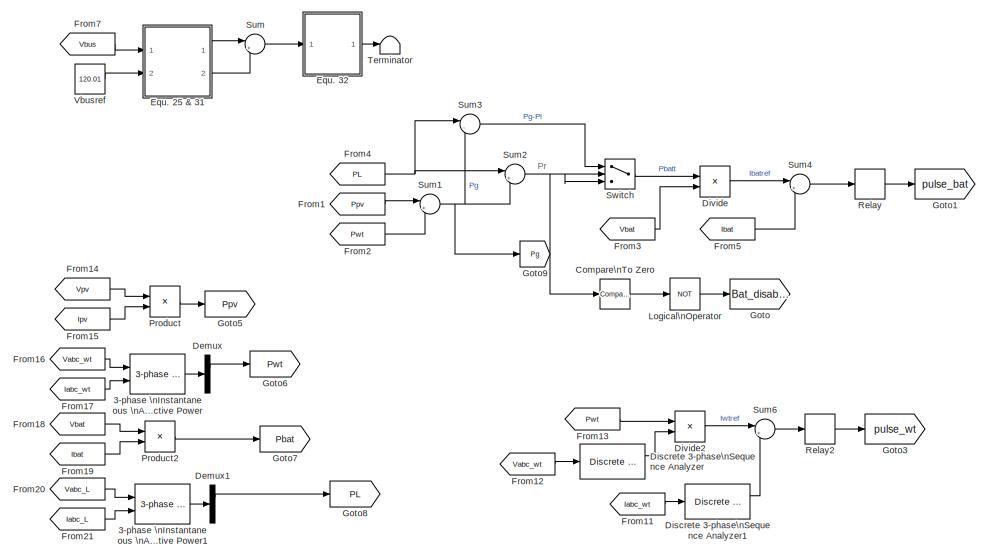
[diagram: Subsystem - part 1/2, top center region]
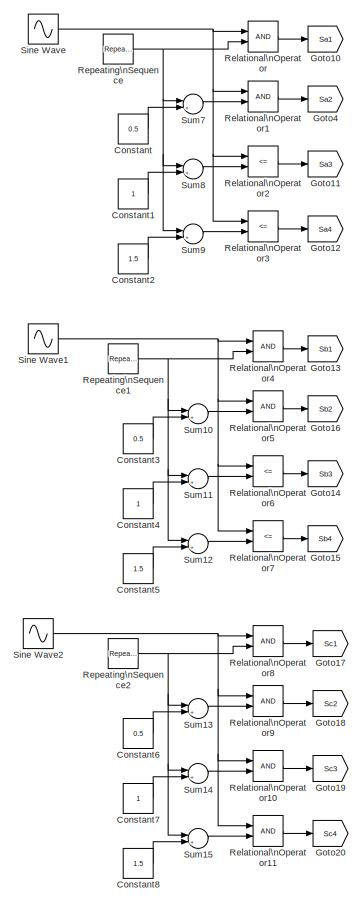
[diagram: Subsystem - part 2/2, right side, full height]
BLOCK [SubSystem] Subsystem
  FunctionWithSeparateData = off
  MaskHideContents = off
  MinAlgLoopOccurrences = off
  Opaque = off
  Ports = []
  PropExecContextOutsideSubsystem = off
  RTWSystemCode = Auto
  RequestExecContextInheritance = off
BLOCK [Reference] Subsystem/3-phase \nInstantaneous \nActive & Reactive Power  REF=powerlib_extras/Measurements/3-phase \nInstantaneous \nActive & Reactive Power
  DialogController = POWERSYS.PowerSysDialog
  FunctionWithSeparateData = off
  Ports = [2, 1]
  RTWMemSecDataConstants = Inherit from model
  RTWMemSecDataInternal = Inherit from model
  RTWMemSecDataParameters = Inherit from model
  RTWMemSecFuncExecute = Inherit from model
  RTWMemSecFuncInitTerm = Inherit from model
  ShowPortLabels = FromPortIcon
  SourceBlock = powerlib_extras/Measurements/3-phase \nInstantaneous \nActive & Reactive Power
  SourceType = 3-phase instantaneous active and reactive power
  SystemSampleTime = -1
BLOCK [Reference] Subsystem/3-phase \nInstantaneous \nActive & Reactive Power1  REF=powerlib_extras/Measurements/3-phase \nInstantaneous \nActive & Reactive Power
  DialogController = POWERSYS.PowerSysDialog
  FunctionWithSeparateData = off
  Ports = [2, 1]
  RTWMemSecDataConstants = Inherit from model
  RTWMemSecDataInternal = Inherit from model
  RTWMemSecDataParameters = Inherit from model
  RTWMemSecFuncExecute = Inherit from model
  RTWMemSecFuncInitTerm = Inherit from model
  ShowPortLabels = FromPortIcon
  SourceBlock = powerlib_extras/Measurements/3-phase \nInstantaneous \nActive & Reactive Power
  SourceType = 3-phase instantaneous active and reactive power
  SystemSampleTime = -1
BLOCK [Reference] Subsystem/Compare\nTo Zero  REF=simulink/Logic and Bit\nOperations/Compare\nTo Zero
  FunctionWithSeparateData = off
  LogicOutDataTypeMode = boolean
  Ports = [1, 1]
  RTWMemSecDataConstants = Inherit from model
  RTWMemSecDataInternal = Inherit from model
  RTWMemSecDataParameters = Inherit from model
  RTWMemSecFuncExecute = Inherit from model
  RTWMemSecFuncInitTerm = Inherit from model
  ShowPortLabels = FromPortIcon
  SourceBlock = simulink/Logic and Bit\nOperations/Compare\nTo Zero
  SourceType = Compare To Zero
  SystemSampleTime = -1
  ZeroCross = off
  relop = ==
BLOCK [Constant] Subsystem/Constant
  OutDataType = fixdt(1, 16)
  OutScaling = 2^0
  Value = 0.5
BLOCK [Constant] Subsystem/Constant1
  OutDataType = fixdt(1, 16)
  OutScaling = 2^0
BLOCK [Constant] Subsystem/Constant2
  OutDataType = fixdt(1, 16)
  OutScaling = 2^0
  Value = 1.5
BLOCK [Constant] Subsystem/Constant3
  OutDataType = fixdt(1, 16)
  OutScaling = 2^0
  Value = 0.5
BLOCK [Constant] Subsystem/Constant4
  OutDataType = fixdt(1, 16)
  OutScaling = 2^0
BLOCK [Constant] Subsystem/Constant5
  OutDataType = fixdt(1, 16)
  OutScaling = 2^0
  Value = 1.5
BLOCK [Constant] Subsystem/Constant6
  OutDataType = fixdt(1, 16)
  OutScaling = 2^0
  Value = 0.5
BLOCK [Constant] Subsystem/Constant7
  OutDataType = fixdt(1, 16)
  OutScaling = 2^0
BLOCK [Constant] Subsystem/Constant8
  OutDataType = fixdt(1, 16)
  OutScaling = 2^0
  Value = 1.5
BLOCK [Demux] Subsystem/Demux
  DisplayOption = bar
  Outputs = 2
  Ports = [1, 2]
BLOCK [Demux] Subsystem/Demux1
  DisplayOption = bar
  Outputs = 2
  Ports = [1, 2]
BLOCK [Reference] Subsystem/Discrete 3-phase\nSequence Analyzer  REF=powerlib_extras/Discrete\nMeasurements/Discrete 3-phase\nSequence Analyzer
  DialogController = POWERSYS.PowerSysDialog
  Freq = 50
  FunctionWithSeparateData = off
  Par_Init = [0 0]
  Ports = [1, 2]
  RTWMemSecDataConstants = Inherit from model
  RTWMemSecDataInternal = Inherit from model
  RTWMemSecDataParameters = Inherit from model
  RTWMemSecFuncExecute = Inherit from model
  RTWMemSecFuncInitTerm = Inherit from model
  ShowPortLabels = FromPortIcon
  SourceBlock = powerlib_extras/Discrete\nMeasurements/Discrete 3-phase\nSequence Analyzer
  SourceType = Discrete 3-Phase Sequence Analyzer
  SystemSampleTime = -1
  Ts = 50e-6
  n = 1
  seq = Positive
BLOCK [Reference] Subsystem/Discrete 3-phase\nSequence Analyzer1  REF=powerlib_extras/Discrete\nMeasurements/Discrete 3-phase\nSequence Analyzer
  DialogController = POWERSYS.PowerSysDialog
  Freq = 50
  FunctionWithSeparateData = off
  Par_Init = [0 0]
  Ports = [1, 2]
  RTWMemSecDataConstants = Inherit from model
  RTWMemSecDataInternal = Inherit from model
  RTWMemSecDataParameters = Inherit from model
  RTWMemSecFuncExecute = Inherit from model
  RTWMemSecFuncInitTerm = Inherit from model
  ShowPortLabels = FromPortIcon
  SourceBlock = powerlib_extras/Discrete\nMeasurements/Discrete 3-phase\nSequence Analyzer
  SourceType = Discrete 3-Phase Sequence Analyzer
  SystemSampleTime = -1
  Ts = 50e-6
  n = 1
  seq = Positive
BLOCK [Product] Subsystem/Divide
  InputSameDT = off
  Inputs = */
  OutDataType = fixdt(1, 16)
  OutDataTypeMode = Inherit via internal rule
  OutDataTypeStr = Inherit: Inherit via internal rule
  OutScaling = 2^-10
  Ports = [2, 1]
  RndMeth = Floor
  SaturateOnIntegerOverflow = off
BLOCK [Product] Subsystem/Divide2
  InputSameDT = off
  Inputs = */
  OutDataType = fixdt(1, 16)
  OutDataTypeMode = Inherit via internal rule
  OutDataTypeStr = Inherit: Inherit via internal rule
  OutScaling = 2^-10
  Ports = [2, 1]
  RndMeth = Floor
  SaturateOnIntegerOverflow = off
BLOCK [SubSystem] Subsystem/Equ. 25 & 31
  FunctionWithSeparateData = off
  MaskHideContents = off
  MinAlgLoopOccurrences = off
  Opaque = off
  Ports = [2, 2]
  PropExecContextOutsideSubsystem = off
  RTWSystemCode = Auto
  RequestExecContextInheritance = off
BLOCK [Outport] Subsystem/Equ. 25 & 31/Ebus
  IconDisplay = Port number
BLOCK [Outport] Subsystem/Equ. 25 & 31/Ebus_ref
  IconDisplay = Port number
  Port = 2
BLOCK [Gain] Subsystem/Equ. 25 & 31/Gain
  Gain = 0.5*1500e-6
  OutDataType = fixdt(1, 16)
  OutDataTypeMode = Inherit via internal rule
  OutDataTypeStr = Inherit: Inherit via internal rule
  OutScaling = 2^0
  ParamDataTypeStr = Inherit: Inherit via internal rule
  ParameterDataType = fixdt(1, 16)
  ParameterDataTypeMode = Inherit via internal rule
  ParameterScaling = 2^0
  SaturateOnIntegerOverflow = off
BLOCK [Gain] Subsystem/Equ. 25 & 31/Gain1
  Gain = 0.5*1500e-6
  OutDataType = fixdt(1, 16)
  OutDataTypeMode = Inherit via internal rule
  OutDataTypeStr = Inherit: Inherit via internal rule
  OutScaling = 2^0
  ParamDataTypeStr = Inherit: Inherit via internal rule
  ParameterDataType = fixdt(1, 16)
  ParameterDataTypeMode = Inherit via internal rule
  ParameterScaling = 2^0
  SaturateOnIntegerOverflow = off
BLOCK [Inport] Subsystem/Equ. 25 & 31/In1
  IconDisplay = Port number
BLOCK [Inport] Subsystem/Equ. 25 & 31/In2
  IconDisplay = Port number
  Port = 2
BLOCK [Math] Subsystem/Equ. 25 & 31/Math\nFunction
  Operator = magnitude^2
  OutDataType = fixdt(1, 16)
  OutScaling = 2^0
  Ports = [1, 1]
BLOCK [Math] Subsystem/Equ. 25 & 31/Math\nFunction1
  Operator = magnitude^2
  OutDataType = fixdt(1, 16)
  OutScaling = 2^0
  Ports = [1, 1]
BLOCK [SubSystem] Subsystem/Equ. 32
  FunctionWithSeparateData = off
  MaskHideContents = off
  MinAlgLoopOccurrences = off
  Opaque = off
  Ports = [1, 1]
  PropExecContextOutsideSubsystem = off
  RTWSystemCode = Auto
  RequestExecContextInheritance = off
BLOCK [Reference] Subsystem/Equ. 32/Discrete \nRMS value1  REF=powerlib_extras/Discrete\nMeasurements/Discrete \nRMS value
  DialogController = POWERSYS.PowerSysDialog
  Freq = 50
  FunctionWithSeparateData = off
  Mag_Init = 0
  Ports = [1, 1]
  RTWMemSecDataConstants = Inherit from model
  RTWMemSecDataInternal = Inherit from model
  RTWMemSecDataParameters = Inherit from model
  RTWMemSecFuncExecute = Inherit from model
  RTWMemSecFuncInitTerm = Inherit from model
  ShowPortLabels = FromPortIcon
  SourceBlock = powerlib_extras/Discrete\nMeasurements/Discrete \nRMS value
  SourceType = Discrete RMS value
  SystemSampleTime = -1
  Ts = 50e-6
BLOCK [Reference] Subsystem/Equ. 32/Discrete \nRMS value2  REF=powerlib_extras/Discrete\nMeasurements/Discrete \nRMS value
  DialogController = POWERSYS.PowerSysDialog
  Freq = 50
  FunctionWithSeparateData = off
  Mag_Init = 0
  Ports = [1, 1]
  RTWMemSecDataConstants = Inherit from model
  RTWMemSecDataInternal = Inherit from model
  RTWMemSecDataParameters = Inherit from model
  RTWMemSecFuncExecute = Inherit from model
  RTWMemSecFuncInitTerm = Inherit from model
  ShowPortLabels = FromPortIcon
  SourceBlock = powerlib_extras/Discrete\nMeasurements/Discrete \nRMS value
  SourceType = Discrete RMS value
  SystemSampleTime = -1
  Ts = 50e-6
BLOCK [From] Subsystem/Equ. 32/From1
  GotoTag = Ppv
  TagVisibility = global
BLOCK [From] Subsystem/Equ. 32/From2
  GotoTag = Pwt
  TagVisibility = global
BLOCK [From] Subsystem/Equ. 32/From3
  GotoTag = Pbat
  TagVisibility = global
BLOCK [From] Subsystem/Equ. 32/From4
  GotoTag = PL
  TagVisibility = global
BLOCK [From] Subsystem/Equ. 32/From5
  GotoTag = Ipv
BLOCK [From] Subsystem/Equ. 32/From6
  GotoTag = Iabc_wt
  TagVisibility = global
BLOCK [From] Subsystem/Equ. 32/From8
  GotoTag = Ibat
  TagVisibility = global
BLOCK [From] Subsystem/Equ. 32/From9
  GotoTag = Iabc_L
  TagVisibility = global
BLOCK [Inport] Subsystem/Equ. 32/In1
  IconDisplay = Port number
BLOCK [Outport] Subsystem/Equ. 32/Out1
  IconDisplay = Port number
BLOCK [Product] Subsystem/Equ. 32/Product
  InputSameDT = off
  OutDataType = fixdt(1, 16)
  OutDataTypeMode = Inherit via internal rule
  OutDataTypeStr = Inherit: Inherit via internal rule
  OutScaling = 2^0
  Ports = [2, 1]
  SaturateOnIntegerOverflow = off
BLOCK [Product] Subsystem/Equ. 32/Product1
  InputSameDT = off
  OutDataType = fixdt(1, 16)
  OutDataTypeMode = Inherit via internal rule
  OutDataTypeStr = Inherit: Inherit via internal rule
  OutScaling = 2^0
  Ports = [2, 1]
  SaturateOnIntegerOverflow = off
BLOCK [Product] Subsystem/Equ. 32/Product2
  InputSameDT = off
  OutDataType = fixdt(1, 16)
  OutDataTypeMode = Inherit via internal rule
  OutDataTypeStr = Inherit: Inherit via internal rule
  OutScaling = 2^0
  Ports = [2, 1]
  SaturateOnIntegerOverflow = off
BLOCK [Product] Subsystem/Equ. 32/Product3
  InputSameDT = off
  OutDataType = fixdt(1, 16)
  OutDataTypeMode = Inherit via internal rule
  OutDataTypeStr = Inherit: Inherit via internal rule
  OutScaling = 2^0
  Ports = [2, 1]
  SaturateOnIntegerOverflow = off
BLOCK [Sum] Subsystem/Equ. 32/Sum1
  InputSameDT = off
  Inputs = +++-
  OutDataType = fixdt(1, 16)
  OutDataTypeMode = Inherit via internal rule
  OutDataTypeStr = Inherit: Inherit via internal rule
  OutScaling = 2^0
  Ports = [4, 1]
  SaturateOnIntegerOverflow = off
BLOCK [Sum] Subsystem/Equ. 32/Sum2
  InputSameDT = off
  Inputs = +++-
  OutDataType = fixdt(1, 16)
  OutDataTypeMode = Inherit via internal rule
  OutDataTypeStr = Inherit: Inherit via internal rule
  OutScaling = 2^0
  Ports = [4, 1]
  SaturateOnIntegerOverflow = off
BLOCK [Sum] Subsystem/Equ. 32/Sum3
  IconShape = round
  InputSameDT = off
  Inputs = |+-
  OutDataType = fixdt(1, 16)
  OutDataTypeMode = Inherit via internal rule
  OutDataTypeStr = Inherit: Inherit via internal rule
  OutScaling = 2^0
  Ports = [2, 1]
  SaturateOnIntegerOverflow = off
BLOCK [Sum] Subsystem/Equ. 32/Sum4
  IconShape = round
  InputSameDT = off
  Inputs = +++
  OutDataType = fixdt(1, 16)
  OutDataTypeMode = Inherit via internal rule
  OutDataTypeStr = Inherit: Inherit via internal rule
  OutScaling = 2^0
  Ports = [3, 1]
  SaturateOnIntegerOverflow = off
BLOCK [Constant] Subsystem/Equ. 32/VLref
  OutDataType = fixdt(1, 16)
  OutScaling = 2^0
  Value = 415
BLOCK [Constant] Subsystem/Equ. 32/Vbatref
  OutDataType = fixdt(1, 16)
  OutScaling = 2^0
  Value = 48
BLOCK [Constant] Subsystem/Equ. 32/Vpvref
  OutDataType = fixdt(1, 16)
  OutScaling = 2^0
  Value = 380
BLOCK [Constant] Subsystem/Equ. 32/Vwtref
  OutDataType = fixdt(1, 16)
  OutScaling = 2^0
  Value = 400
BLOCK [Gain] Subsystem/Equ. 32/k11
  Gain = 100
  OutDataType = fixdt(1, 16)
  OutDataTypeMode = Inherit via internal rule
  OutDataTypeStr = Inherit: Inherit via internal rule
  OutScaling = 2^0
  ParamDataTypeStr = Inherit: Inherit via internal rule
  ParameterDataType = fixdt(1, 16)
  ParameterDataTypeMode = Inherit via internal rule
  ParameterScaling = 2^0
  SaturateOnIntegerOverflow = off
BLOCK [Gain] Subsystem/Equ. 32/k12
  Gain = 1/50
  OutDataType = fixdt(1, 16)
  OutDataTypeMode = Inherit via internal rule
  OutDataTypeStr = Inherit: Inherit via internal rule
  OutScaling = 2^0
  ParamDataTypeStr = Inherit: Inherit via internal rule
  ParameterDataType = fixdt(1, 16)
  ParameterDataTypeMode = Inherit via internal rule
  ParameterScaling = 2^0
  SaturateOnIntegerOverflow = off
BLOCK [From] Subsystem/From1
  GotoTag = Ppv
  TagVisibility = global
BLOCK [From] Subsystem/From11
  GotoTag = Iabc_wt
  TagVisibility = global
BLOCK [From] Subsystem/From12
  GotoTag = Vabc_wt
  TagVisibility = global
BLOCK [From] Subsystem/From13
  GotoTag = Pwt
  TagVisibility = global
BLOCK [From] Subsystem/From14
  GotoTag = Vpv
  TagVisibility = global
BLOCK [From] Subsystem/From15
  GotoTag = Ipv
BLOCK [From] Subsystem/From16
  GotoTag = Vabc_wt
  TagVisibility = global
BLOCK [From] Subsystem/From17
  GotoTag = Iabc_wt
  TagVisibility = global
BLOCK [From] Subsystem/From18
  GotoTag = Vbat
  TagVisibility = global
BLOCK [From] Subsystem/From19
  GotoTag = Ibat
  TagVisibility = global
BLOCK [From] Subsystem/From2
  GotoTag = Pwt
  TagVisibility = global
BLOCK [From] Subsystem/From20
  GotoTag = Vabc_L
  TagVisibility = global
BLOCK [From] Subsystem/From21
  GotoTag = Iabc_L
  TagVisibility = global
BLOCK [From] Subsystem/From3
  GotoTag = Vbat
  TagVisibility = global
BLOCK [From] Subsystem/From4
  GotoTag = PL
  TagVisibility = global
BLOCK [From] Subsystem/From5
  GotoTag = Ibat
  TagVisibility = global
BLOCK [From] Subsystem/From7
  GotoTag = Vbus
  TagVisibility = global
BLOCK [Goto] Subsystem/Goto
  GotoTag = Bat_disable
  TagVisibility = global
BLOCK [Goto] Subsystem/Goto1
  GotoTag = pulse_bat
  TagVisibility = global
BLOCK [Goto] Subsystem/Goto10
  GotoTag = Sa1
  TagVisibility = global
BLOCK [Goto] Subsystem/Goto11
  GotoTag = Sa3
  TagVisibility = global
BLOCK [Goto] Subsystem/Goto12
  GotoTag = Sa4
  TagVisibility = global
BLOCK [Goto] Subsystem/Goto13
  GotoTag = Sb1
  TagVisibility = global
BLOCK [Goto] Subsystem/Goto14
  GotoTag = Sb3
  TagVisibility = global
BLOCK [Goto] Subsystem/Goto15
  GotoTag = Sb4
  TagVisibility = global
BLOCK [Goto] Subsystem/Goto16
  GotoTag = Sb2
  TagVisibility = global
BLOCK [Goto] Subsystem/Goto17
  GotoTag = Sc1
  TagVisibility = global
BLOCK [Goto] Subsystem/Goto18
  GotoTag = Sc2
  TagVisibility = global
BLOCK [Goto] Subsystem/Goto19
  GotoTag = Sc3
  TagVisibility = global
BLOCK [Goto] Subsystem/Goto20
  GotoTag = Sc4
  TagVisibility = global
BLOCK [Goto] Subsystem/Goto3
  GotoTag = pulse_wt
  TagVisibility = global
BLOCK [Goto] Subsystem/Goto4
  GotoTag = Sa2
  TagVisibility = global
BLOCK [Goto] Subsystem/Goto5
  GotoTag = Ppv
  TagVisibility = global
BLOCK [Goto] Subsystem/Goto6
  GotoTag = Pwt
  TagVisibility = global
BLOCK [Goto] Subsystem/Goto7
  GotoTag = Pbat
  TagVisibility = global
BLOCK [Goto] Subsystem/Goto8
  GotoTag = PL
  TagVisibility = global
BLOCK [Goto] Subsystem/Goto9
  GotoTag = Pg
  TagVisibility = global
BLOCK [Logic] Subsystem/Logical\nOperator
  AllPortsSameDT = off
  LogicDataType = fixdt(0, 8)
  Operator = NOT
  OutDataTypeMode = boolean
  OutDataTypeStr = boolean
  Ports = [1, 1]
BLOCK [Product] Subsystem/Product
  InputSameDT = off
  OutDataType = fixdt(1, 16)
  OutDataTypeMode = Inherit via internal rule
  OutDataTypeStr = Inherit: Inherit via internal rule
  OutScaling = 2^0
  Ports = [2, 1]
  SaturateOnIntegerOverflow = off
BLOCK [Product] Subsystem/Product2
  InputSameDT = off
  OutDataType = fixdt(1, 16)
  OutDataTypeMode = Inherit via internal rule
  OutDataTypeStr = Inherit: Inherit via internal rule
  OutScaling = 2^0
  Ports = [2, 1]
  SaturateOnIntegerOverflow = off
BLOCK [RelationalOperator] Subsystem/Relational\nOperator
  InputSameDT = off
  LogicDataType = fixdt(0, 8)
  LogicOutDataTypeMode = boolean
  OutDataTypeStr = boolean
BLOCK [RelationalOperator] Subsystem/Relational\nOperator1
  InputSameDT = off
  LogicDataType = fixdt(0, 8)
  LogicOutDataTypeMode = boolean
  OutDataTypeStr = boolean
BLOCK [RelationalOperator] Subsystem/Relational\nOperator10
  InputSameDT = off
  LogicDataType = fixdt(0, 8)
  LogicOutDataTypeMode = boolean
  OutDataTypeStr = boolean
BLOCK [RelationalOperator] Subsystem/Relational\nOperator11
  InputSameDT = off
  LogicDataType = fixdt(0, 8)
  LogicOutDataTypeMode = boolean
  OutDataTypeStr = boolean
BLOCK [RelationalOperator] Subsystem/Relational\nOperator2
  InputSameDT = off
  LogicDataType = fixdt(0, 8)
  LogicOutDataTypeMode = boolean
  Operator = <=
  OutDataTypeStr = boolean
BLOCK [RelationalOperator] Subsystem/Relational\nOperator3
  InputSameDT = off
  LogicDataType = fixdt(0, 8)
  LogicOutDataTypeMode = boolean
  Operator = <=
  OutDataTypeStr = boolean
BLOCK [RelationalOperator] Subsystem/Relational\nOperator4
  InputSameDT = off
  LogicDataType = fixdt(0, 8)
  LogicOutDataTypeMode = boolean
  OutDataTypeStr = boolean
BLOCK [RelationalOperator] Subsystem/Relational\nOperator5
  InputSameDT = off
  LogicDataType = fixdt(0, 8)
  LogicOutDataTypeMode = boolean
  OutDataTypeStr = boolean
BLOCK [RelationalOperator] Subsystem/Relational\nOperator6
  InputSameDT = off
  LogicDataType = fixdt(0, 8)
  LogicOutDataTypeMode = boolean
  Operator = <=
  OutDataTypeStr = boolean
BLOCK [RelationalOperator] Subsystem/Relational\nOperator7
  InputSameDT = off
  LogicDataType = fixdt(0, 8)
  LogicOutDataTypeMode = boolean
  Operator = <=
  OutDataTypeStr = boolean
BLOCK [RelationalOperator] Subsystem/Relational\nOperator8
  InputSameDT = off
  LogicDataType = fixdt(0, 8)
  LogicOutDataTypeMode = boolean
  OutDataTypeStr = boolean
BLOCK [RelationalOperator] Subsystem/Relational\nOperator9
  InputSameDT = off
  LogicDataType = fixdt(0, 8)
  LogicOutDataTypeMode = boolean
  OutDataTypeStr = boolean
BLOCK [Relay] Subsystem/Relay
  OffSwitchValue = -0.1
  OnSwitchValue = 0.1
  OutDataType = fixdt(1, 16)
  OutScaling = 2^0
BLOCK [Relay] Subsystem/Relay2
  OffSwitchValue = -0.1
  OnSwitchValue = 0.1
  OutDataType = fixdt(1, 16)
  OutScaling = 2^0
BLOCK [Reference] Subsystem/Repeating\nSequence  REF=simulink/Sources/Repeating\nSequence
  FunctionWithSeparateData = off
  Ports = [0, 1]
  RTWMemSecDataConstants = Inherit from model
  RTWMemSecDataInternal = Inherit from model
  RTWMemSecDataParameters = Inherit from model
  RTWMemSecFuncExecute = Inherit from model
  RTWMemSecFuncInitTerm = Inherit from model
  ShowPortLabels = FromPortIcon
  SourceBlock = simulink/Sources/Repeating\nSequence
  SourceType = Repeating table
  SystemSampleTime = -1
  rep_seq_t = [0 1/4000 1/2000]
  rep_seq_y = [0.5 1 0.5]
BLOCK [Reference] Subsystem/Repeating\nSequence1  REF=simulink/Sources/Repeating\nSequence
  FunctionWithSeparateData = off
  Ports = [0, 1]
  RTWMemSecDataConstants = Inherit from model
  RTWMemSecDataInternal = Inherit from model
  RTWMemSecDataParameters = Inherit from model
  RTWMemSecFuncExecute = Inherit from model
  RTWMemSecFuncInitTerm = Inherit from model
  ShowPortLabels = FromPortIcon
  SourceBlock = simulink/Sources/Repeating\nSequence
  SourceType = Repeating table
  SystemSampleTime = -1
  rep_seq_t = [0 1/4000 1/2000]
  rep_seq_y = [0.5 1 0.5]
BLOCK [Reference] Subsystem/Repeating\nSequence2  REF=simulink/Sources/Repeating\nSequence
  FunctionWithSeparateData = off
  Ports = [0, 1]
  RTWMemSecDataConstants = Inherit from model
  RTWMemSecDataInternal = Inherit from model
  RTWMemSecDataParameters = Inherit from model
  RTWMemSecFuncExecute = Inherit from model
  RTWMemSecFuncInitTerm = Inherit from model
  ShowPortLabels = FromPortIcon
  SourceBlock = simulink/Sources/Repeating\nSequence
  SourceType = Repeating table
  SystemSampleTime = -1
  rep_seq_t = [0 1/4000 1/2000]
  rep_seq_y = [0.5 1 0.5]
BLOCK [Sin] Subsystem/Sine Wave
  Amplitude = 1
  Bias = 0
  Frequency = 2*pi*50
  Offset = 0
  Phase = 0
  Ports = [0, 1]
  SampleTime = 50e-6
  Samples = 10
BLOCK [Sin] Subsystem/Sine Wave1
  Amplitude = 1
  Bias = 0
  Frequency = 2*pi*50
  Offset = 0
  Phase = -2*pi/3
  Ports = [0, 1]
  SampleTime = 50e-6
  Samples = 10
BLOCK [Sin] Subsystem/Sine Wave2
  Amplitude = 1
  Bias = 0
  Frequency = 2*pi*50
  Offset = 0
  Phase = 2*pi/3
  Ports = [0, 1]
  SampleTime = 50e-6
  Samples = 10
BLOCK [Sum] Subsystem/Sum
  IconShape = round
  InputSameDT = off
  Inputs = |+-
  OutDataType = fixdt(1, 16)
  OutDataTypeMode = Inherit via internal rule
  OutDataTypeStr = Inherit: Inherit via internal rule
  OutScaling = 2^0
  Ports = [2, 1]
  SaturateOnIntegerOverflow = off
BLOCK [Sum] Subsystem/Sum1
  IconShape = round
  InputSameDT = off
  Inputs = |++
  OutDataType = fixdt(1, 16)
  OutDataTypeMode = Inherit via internal rule
  OutDataTypeStr = Inherit: Inherit via internal rule
  OutScaling = 2^0
  Ports = [2, 1]
  SaturateOnIntegerOverflow = off
BLOCK [Sum] Subsystem/Sum10
  IconShape = round
  InputSameDT = off
  Inputs = |+-
  OutDataType = fixdt(1, 16)
  OutDataTypeMode = Inherit via internal rule
  OutDataTypeStr = Inherit: Inherit via internal rule
  OutScaling = 2^0
  Ports = [2, 1]
  SaturateOnIntegerOverflow = off
BLOCK [Sum] Subsystem/Sum11
  IconShape = round
  InputSameDT = off
  Inputs = |+-
  OutDataType = fixdt(1, 16)
  OutDataTypeMode = Inherit via internal rule
  OutDataTypeStr = Inherit: Inherit via internal rule
  OutScaling = 2^0
  Ports = [2, 1]
  SaturateOnIntegerOverflow = off
BLOCK [Sum] Subsystem/Sum12
  IconShape = round
  InputSameDT = off
  Inputs = |+-
  OutDataType = fixdt(1, 16)
  OutDataTypeMode = Inherit via internal rule
  OutDataTypeStr = Inherit: Inherit via internal rule
  OutScaling = 2^0
  Ports = [2, 1]
  SaturateOnIntegerOverflow = off
BLOCK [Sum] Subsystem/Sum13
  IconShape = round
  InputSameDT = off
  Inputs = |+-
  OutDataType = fixdt(1, 16)
  OutDataTypeMode = Inherit via internal rule
  OutDataTypeStr = Inherit: Inherit via internal rule
  OutScaling = 2^0
  Ports = [2, 1]
  SaturateOnIntegerOverflow = off
BLOCK [Sum] Subsystem/Sum14
  IconShape = round
  InputSameDT = off
  Inputs = |+-
  OutDataType = fixdt(1, 16)
  OutDataTypeMode = Inherit via internal rule
  OutDataTypeStr = Inherit: Inherit via internal rule
  OutScaling = 2^0
  Ports = [2, 1]
  SaturateOnIntegerOverflow = off
BLOCK [Sum] Subsystem/Sum15
  IconShape = round
  InputSameDT = off
  Inputs = |+-
  OutDataType = fixdt(1, 16)
  OutDataTypeMode = Inherit via internal rule
  OutDataTypeStr = Inherit: Inherit via internal rule
  OutScaling = 2^0
  Ports = [2, 1]
  SaturateOnIntegerOverflow = off
BLOCK [Sum] Subsystem/Sum2
  IconShape = round
  InputSameDT = off
  Inputs = |+-
  OutDataType = fixdt(1, 16)
  OutDataTypeMode = Inherit via internal rule
  OutDataTypeStr = Inherit: Inherit via internal rule
  OutScaling = 2^0
  Ports = [2, 1]
  SaturateOnIntegerOverflow = off
BLOCK [Sum] Subsystem/Sum3
  IconShape = round
  InputSameDT = off
  Inputs = |-+
  OutDataType = fixdt(1, 16)
  OutDataTypeMode = Inherit via internal rule
  OutDataTypeStr = Inherit: Inherit via internal rule
  OutScaling = 2^0
  Ports = [2, 1]
  SaturateOnIntegerOverflow = off
BLOCK [Sum] Subsystem/Sum4
  IconShape = round
  InputSameDT = off
  Inputs = |+-
  OutDataType = fixdt(1, 16)
  OutDataTypeMode = Inherit via internal rule
  OutDataTypeStr = Inherit: Inherit via internal rule
  OutScaling = 2^0
  Ports = [2, 1]
  SaturateOnIntegerOverflow = off
BLOCK [Sum] Subsystem/Sum6
  IconShape = round
  InputSameDT = off
  Inputs = |+-
  OutDataType = fixdt(1, 16)
  OutDataTypeMode = Inherit via internal rule
  OutDataTypeStr = Inherit: Inherit via internal rule
  OutScaling = 2^0
  Ports = [2, 1]
  SaturateOnIntegerOverflow = off
BLOCK [Sum] Subsystem/Sum7
  IconShape = round
  InputSameDT = off
  Inputs = |+-
  OutDataType = fixdt(1, 16)
  OutDataTypeMode = Inherit via internal rule
  OutDataTypeStr = Inherit: Inherit via internal rule
  OutScaling = 2^0
  Ports = [2, 1]
  SaturateOnIntegerOverflow = off
BLOCK [Sum] Subsystem/Sum8
  IconShape = round
  InputSameDT = off
  Inputs = |+-
  OutDataType = fixdt(1, 16)
  OutDataTypeMode = Inherit via internal rule
  OutDataTypeStr = Inherit: Inherit via internal rule
  OutScaling = 2^0
  Ports = [2, 1]
  SaturateOnIntegerOverflow = off
BLOCK [Sum] Subsystem/Sum9
  IconShape = round
  InputSameDT = off
  Inputs = |+-
  OutDataType = fixdt(1, 16)
  OutDataTypeMode = Inherit via internal rule
  OutDataTypeStr = Inherit: Inherit via internal rule
  OutScaling = 2^0
  Ports = [2, 1]
  SaturateOnIntegerOverflow = off
BLOCK [Switch] Subsystem/Switch
  Criteria = u2 > Threshold
  InputSameDT = off
  OutDataType = fixdt(1, 16)
  OutScaling = 2^0
  SaturateOnIntegerOverflow = off
BLOCK [Terminator] Subsystem/Terminator
BLOCK [Constant] Subsystem/Vbusref
  OutDataType = fixdt(1, 16)
  OutScaling = 2^0
  Value = 120.01
BLOCK [SubSystem] Subsystem1
  FunctionWithSeparateData = off
  MaskHideContents = off
  MinAlgLoopOccurrences = off
  Opaque = off
  Ports = [0, 0, 0, 0, 0, 2, 3]
  PropExecContextOutsideSubsystem = off
  RTWSystemCode = Auto
  RequestExecContextInheritance = off
BLOCK [PMIOPort] Subsystem1/+
  Port = 1
  Side = Left
BLOCK [PMIOPort] Subsystem1/-
  Port = 3
  Side = Left
BLOCK [PMIOPort] Subsystem1/A
  Port = 2
  Side = Right
BLOCK [PMIOPort] Subsystem1/B
  Port = 4
  Side = Right
BLOCK [PMIOPort] Subsystem1/C
  Port = 5
  Side = Right
BLOCK [From] Subsystem1/From1
  GotoTag = Sb1
  TagVisibility = global
BLOCK [From] Subsystem1/From10
  GotoTag = Sa4
  TagVisibility = global
BLOCK [From] Subsystem1/From11
  GotoTag = Sc4
  TagVisibility = global
BLOCK [From] Subsystem1/From12
  GotoTag = Sa2
  TagVisibility = global
BLOCK [From] Subsystem1/From2
  GotoTag = Sb2
  TagVisibility = global
BLOCK [From] Subsystem1/From3
  GotoTag = Sb3
  TagVisibility = global
BLOCK [From] Subsystem1/From4
  GotoTag = Sb4
  TagVisibility = global
BLOCK [From] Subsystem1/From5
  GotoTag = Sc1
  TagVisibility = global
BLOCK [From] Subsystem1/From6
  GotoTag = Sc2
  TagVisibility = global
BLOCK [From] Subsystem1/From7
  GotoTag = Sc3
  TagVisibility = global
BLOCK [From] Subsystem1/From8
  GotoTag = Sa1
  TagVisibility = global
BLOCK [From] Subsystem1/From9
  GotoTag = Sa3
  TagVisibility = global
BLOCK [Reference] Subsystem1/Ground  REF=powerlib/Elements/Ground
  DialogController = POWERSYS.PowerSysDialog
  LConnTagsString = a
  LeftPortType = p1
  PhysicalDomain = powersysdomain
  Ports = [0, 0, 0, 0, 0, 1]
  RightPortType = p1
  SourceBlock = powerlib/Elements/Ground
  SourceType = Ground
  SubClassName = unknown
BLOCK [Reference] Subsystem1/IGBT//Diode  REF=powerlib/Power\nElectronics/IGBT//Diode
  Cs = inf
  DialogController = POWERSYS.PowerSysDialog
  FunctionWithSeparateData = off
  Measurements = on
  Ports = [1, 1, 0, 0, 0, 1, 1]
  RTWMemSecDataConstants = Inherit from model
  RTWMemSecDataInternal = Inherit from model
  RTWMemSecDataParameters = Inherit from model
  RTWMemSecFuncExecute = Inherit from model
  RTWMemSecFuncInitTerm = Inherit from model
  Ron = 1e-3
  Rs = 1e5
  ShowPortLabels = FromPortIcon
  SourceBlock = powerlib/Power\nElectronics/IGBT//Diode
  SourceType = IGBT/Diode
  SystemSampleTime = -1
BLOCK [Reference] Subsystem1/IGBT//Diode1  REF=powerlib/Power\nElectronics/IGBT//Diode
  Cs = inf
  DialogController = POWERSYS.PowerSysDialog
  FunctionWithSeparateData = off
  Measurements = on
  Ports = [1, 1, 0, 0, 0, 1, 1]
  RTWMemSecDataConstants = Inherit from model
  RTWMemSecDataInternal = Inherit from model
  RTWMemSecDataParameters = Inherit from model
  RTWMemSecFuncExecute = Inherit from model
  RTWMemSecFuncInitTerm = Inherit from model
  Ron = 1e-3
  Rs = 1e5
  ShowPortLabels = FromPortIcon
  SourceBlock = powerlib/Power\nElectronics/IGBT//Diode
  SourceType = IGBT/Diode
  SystemSampleTime = -1
BLOCK [Reference] Subsystem1/IGBT//Diode10  REF=powerlib/Power\nElectronics/IGBT//Diode
  Cs = inf
  DialogController = POWERSYS.PowerSysDialog
  FunctionWithSeparateData = off
  Measurements = on
  Ports = [1, 1, 0, 0, 0, 1, 1]
  RTWMemSecDataConstants = Inherit from model
  RTWMemSecDataInternal = Inherit from model
  RTWMemSecDataParameters = Inherit from model
  RTWMemSecFuncExecute = Inherit from model
  RTWMemSecFuncInitTerm = Inherit from model
  Ron = 1e-3
  Rs = 1e5
  ShowPortLabels = FromPortIcon
  SourceBlock = powerlib/Power\nElectronics/IGBT//Diode
  SourceType = IGBT/Diode
  SystemSampleTime = -1
BLOCK [Reference] Subsystem1/IGBT//Diode11  REF=powerlib/Power\nElectronics/IGBT//Diode
  Cs = inf
  DialogController = POWERSYS.PowerSysDialog
  FunctionWithSeparateData = off
  Measurements = on
  Ports = [1, 1, 0, 0, 0, 1, 1]
  RTWMemSecDataConstants = Inherit from model
  RTWMemSecDataInternal = Inherit from model
  RTWMemSecDataParameters = Inherit from model
  RTWMemSecFuncExecute = Inherit from model
  RTWMemSecFuncInitTerm = Inherit from model
  Ron = 1e-3
  Rs = 1e5
  ShowPortLabels = FromPortIcon
  SourceBlock = powerlib/Power\nElectronics/IGBT//Diode
  SourceType = IGBT/Diode
  SystemSampleTime = -1
BLOCK [Reference] Subsystem1/IGBT//Diode12  REF=powerlib/Power\nElectronics/IGBT//Diode
  Cs = inf
  DialogController = POWERSYS.PowerSysDialog
  FunctionWithSeparateData = off
  Measurements = on
  Ports = [1, 1, 0, 0, 0, 1, 1]
  RTWMemSecDataConstants = Inherit from model
  RTWMemSecDataInternal = Inherit from model
  RTWMemSecDataParameters = Inherit from model
  RTWMemSecFuncExecute = Inherit from model
  RTWMemSecFuncInitTerm = Inherit from model
  Ron = 1e-3
  Rs = 1e5
  ShowPortLabels = FromPortIcon
  SourceBlock = powerlib/Power\nElectronics/IGBT//Diode
  SourceType = IGBT/Diode
  SystemSampleTime = -1
BLOCK [Reference] Subsystem1/IGBT//Diode13  REF=powerlib/Power\nElectronics/IGBT//Diode
  Cs = inf
  DialogController = POWERSYS.PowerSysDialog
  FunctionWithSeparateData = off
  Measurements = on
  Ports = [1, 1, 0, 0, 0, 1, 1]
  RTWMemSecDataConstants = Inherit from model
  RTWMemSecDataInternal = Inherit from model
  RTWMemSecDataParameters = Inherit from model
  RTWMemSecFuncExecute = Inherit from model
  RTWMemSecFuncInitTerm = Inherit from model
  Ron = 1e-3
  Rs = 1e5
  ShowPortLabels = FromPortIcon
  SourceBlock = powerlib/Power\nElectronics/IGBT//Diode
  SourceType = IGBT/Diode
  SystemSampleTime = -1
BLOCK [Reference] Subsystem1/IGBT//Diode14  REF=powerlib/Power\nElectronics/IGBT//Diode
  Cs = inf
  DialogController = POWERSYS.PowerSysDialog
  FunctionWithSeparateData = off
  Measurements = on
  Ports = [1, 1, 0, 0, 0, 1, 1]
  RTWMemSecDataConstants = Inherit from model
  RTWMemSecDataInternal = Inherit from model
  RTWMemSecDataParameters = Inherit from model
  RTWMemSecFuncExecute = Inherit from model
  RTWMemSecFuncInitTerm = Inherit from model
  Ron = 1e-3
  Rs = 1e5
  ShowPortLabels = FromPortIcon
  SourceBlock = powerlib/Power\nElectronics/IGBT//Diode
  SourceType = IGBT/Diode
  SystemSampleTime = -1
BLOCK [Reference] Subsystem1/IGBT//Diode15  REF=powerlib/Power\nElectronics/IGBT//Diode
  Cs = inf
  DialogController = POWERSYS.PowerSysDialog
  FunctionWithSeparateData = off
  Measurements = on
  Ports = [1, 1, 0, 0, 0, 1, 1]
  RTWMemSecDataConstants = Inherit from model
  RTWMemSecDataInternal = Inherit from model
  RTWMemSecDataParameters = Inherit from model
  RTWMemSecFuncExecute = Inherit from model
  RTWMemSecFuncInitTerm = Inherit from model
  Ron = 1e-3
  Rs = 1e5
  ShowPortLabels = FromPortIcon
  SourceBlock = powerlib/Power\nElectronics/IGBT//Diode
  SourceType = IGBT/Diode
  SystemSampleTime = -1
BLOCK [Reference] Subsystem1/IGBT//Diode16  REF=powerlib/Power\nElectronics/IGBT//Diode
  Cs = inf
  DialogController = POWERSYS.PowerSysDialog
  FunctionWithSeparateData = off
  Measurements = on
  Ports = [1, 1, 0, 0, 0, 1, 1]
  RTWMemSecDataConstants = Inherit from model
  RTWMemSecDataInternal = Inherit from model
  RTWMemSecDataParameters = Inherit from model
  RTWMemSecFuncExecute = Inherit from model
  RTWMemSecFuncInitTerm = Inherit from model
  Ron = 1e-3
  Rs = 1e5
  ShowPortLabels = FromPortIcon
  SourceBlock = powerlib/Power\nElectronics/IGBT//Diode
  SourceType = IGBT/Diode
  SystemSampleTime = -1
BLOCK [Reference] Subsystem1/IGBT//Diode17  REF=powerlib/Power\nElectronics/IGBT//Diode
  Cs = inf
  DialogController = POWERSYS.PowerSysDialog
  FunctionWithSeparateData = off
  Measurements = on
  Ports = [1, 1, 0, 0, 0, 1, 1]
  RTWMemSecDataConstants = Inherit from model
  RTWMemSecDataInternal = Inherit from model
  RTWMemSecDataParameters = Inherit from model
  RTWMemSecFuncExecute = Inherit from model
  RTWMemSecFuncInitTerm = Inherit from model
  Ron = 1e-3
  Rs = 1e5
  ShowPortLabels = FromPortIcon
  SourceBlock = powerlib/Power\nElectronics/IGBT//Diode
  SourceType = IGBT/Diode
  SystemSampleTime = -1
BLOCK [Reference] Subsystem1/IGBT//Diode18  REF=powerlib/Power\nElectronics/IGBT//Diode
  Cs = inf
  DialogController = POWERSYS.PowerSysDialog
  FunctionWithSeparateData = off
  Measurements = on
  Ports = [1, 1, 0, 0, 0, 1, 1]
  RTWMemSecDataConstants = Inherit from model
  RTWMemSecDataInternal = Inherit from model
  RTWMemSecDataParameters = Inherit from model
  RTWMemSecFuncExecute = Inherit from model
  RTWMemSecFuncInitTerm = Inherit from model
  Ron = 1e-3
  Rs = 1e5
  ShowPortLabels = FromPortIcon
  SourceBlock = powerlib/Power\nElectronics/IGBT//Diode
  SourceType = IGBT/Diode
  SystemSampleTime = -1
BLOCK [Reference] Subsystem1/IGBT//Diode19  REF=powerlib/Power\nElectronics/IGBT//Diode
  Cs = inf
  DialogController = POWERSYS.PowerSysDialog
  FunctionWithSeparateData = off
  Measurements = on
  Ports = [1, 1, 0, 0, 0, 1, 1]
  RTWMemSecDataConstants = Inherit from model
  RTWMemSecDataInternal = Inherit from model
  RTWMemSecDataParameters = Inherit from model
  RTWMemSecFuncExecute = Inherit from model
  RTWMemSecFuncInitTerm = Inherit from model
  Ron = 1e-3
  Rs = 1e5
  ShowPortLabels = FromPortIcon
  SourceBlock = powerlib/Power\nElectronics/IGBT//Diode
  SourceType = IGBT/Diode
  SystemSampleTime = -1
BLOCK [Reference] Subsystem1/IGBT//Diode2  REF=powerlib/Power\nElectronics/IGBT//Diode
  Cs = inf
  DialogController = POWERSYS.PowerSysDialog
  FunctionWithSeparateData = off
  Measurements = on
  Ports = [1, 1, 0, 0, 0, 1, 1]
  RTWMemSecDataConstants = Inherit from model
  RTWMemSecDataInternal = Inherit from model
  RTWMemSecDataParameters = Inherit from model
  RTWMemSecFuncExecute = Inherit from model
  RTWMemSecFuncInitTerm = Inherit from model
  Ron = 1e-3
  Rs = 1e5
  ShowPortLabels = FromPortIcon
  SourceBlock = powerlib/Power\nElectronics/IGBT//Diode
  SourceType = IGBT/Diode
  SystemSampleTime = -1
BLOCK [Reference] Subsystem1/IGBT//Diode20  REF=powerlib/Power\nElectronics/IGBT//Diode
  Cs = inf
  DialogController = POWERSYS.PowerSysDialog
  FunctionWithSeparateData = off
  Measurements = on
  Ports = [1, 1, 0, 0, 0, 1, 1]
  RTWMemSecDataConstants = Inherit from model
  RTWMemSecDataInternal = Inherit from model
  RTWMemSecDataParameters = Inherit from model
  RTWMemSecFuncExecute = Inherit from model
  RTWMemSecFuncInitTerm = Inherit from model
  Ron = 1e-3
  Rs = 1e5
  ShowPortLabels = FromPortIcon
  SourceBlock = powerlib/Power\nElectronics/IGBT//Diode
  SourceType = IGBT/Diode
  SystemSampleTime = -1
BLOCK [Reference] Subsystem1/IGBT//Diode21  REF=powerlib/Power\nElectronics/IGBT//Diode
  Cs = inf
  DialogController = POWERSYS.PowerSysDialog
  FunctionWithSeparateData = off
  Measurements = on
  Ports = [1, 1, 0, 0, 0, 1, 1]
  RTWMemSecDataConstants = Inherit from model
  RTWMemSecDataInternal = Inherit from model
  RTWMemSecDataParameters = Inherit from model
  RTWMemSecFuncExecute = Inherit from model
  RTWMemSecFuncInitTerm = Inherit from model
  Ron = 1e-3
  Rs = 1e5
  ShowPortLabels = FromPortIcon
  SourceBlock = powerlib/Power\nElectronics/IGBT//Diode
  SourceType = IGBT/Diode
  SystemSampleTime = -1
BLOCK [Reference] Subsystem1/IGBT//Diode22  REF=powerlib/Power\nElectronics/IGBT//Diode
  Cs = inf
  DialogController = POWERSYS.PowerSysDialog
  FunctionWithSeparateData = off
  Measurements = on
  Ports = [1, 1, 0, 0, 0, 1, 1]
  RTWMemSecDataConstants = Inherit from model
  RTWMemSecDataInternal = Inherit from model
  RTWMemSecDataParameters = Inherit from model
  RTWMemSecFuncExecute = Inherit from model
  RTWMemSecFuncInitTerm = Inherit from model
  Ron = 1e-3
  Rs = 1e5
  ShowPortLabels = FromPortIcon
  SourceBlock = powerlib/Power\nElectronics/IGBT//Diode
  SourceType = IGBT/Diode
  SystemSampleTime = -1
BLOCK [Reference] Subsystem1/IGBT//Diode23  REF=powerlib/Power\nElectronics/IGBT//Diode
  Cs = inf
  DialogController = POWERSYS.PowerSysDialog
  FunctionWithSeparateData = off
  Measurements = on
  Ports = [1, 1, 0, 0, 0, 1, 1]
  RTWMemSecDataConstants = Inherit from model
  RTWMemSecDataInternal = Inherit from model
  RTWMemSecDataParameters = Inherit from model
  RTWMemSecFuncExecute = Inherit from model
  RTWMemSecFuncInitTerm = Inherit from model
  Ron = 1e-3
  Rs = 1e5
  ShowPortLabels = FromPortIcon
  SourceBlock = powerlib/Power\nElectronics/IGBT//Diode
  SourceType = IGBT/Diode
  SystemSampleTime = -1
BLOCK [Reference] Subsystem1/IGBT//Diode3  REF=powerlib/Power\nElectronics/IGBT//Diode
  Cs = inf
  DialogController = POWERSYS.PowerSysDialog
  FunctionWithSeparateData = off
  Measurements = on
  Ports = [1, 1, 0, 0, 0, 1, 1]
  RTWMemSecDataConstants = Inherit from model
  RTWMemSecDataInternal = Inherit from model
  RTWMemSecDataParameters = Inherit from model
  RTWMemSecFuncExecute = Inherit from model
  RTWMemSecFuncInitTerm = Inherit from model
  Ron = 1e-3
  Rs = 1e5
  ShowPortLabels = FromPortIcon
  SourceBlock = powerlib/Power\nElectronics/IGBT//Diode
  SourceType = IGBT/Diode
  SystemSampleTime = -1
BLOCK [Reference] Subsystem1/IGBT//Diode4  REF=powerlib/Power\nElectronics/IGBT//Diode
  Cs = inf
  DialogController = POWERSYS.PowerSysDialog
  FunctionWithSeparateData = off
  Measurements = on
  Ports = [1, 1, 0, 0, 0, 1, 1]
  RTWMemSecDataConstants = Inherit from model
  RTWMemSecDataInternal = Inherit from model
  RTWMemSecDataParameters = Inherit from model
  RTWMemSecFuncExecute = Inherit from model
  RTWMemSecFuncInitTerm = Inherit from model
  Ron = 1e-3
  Rs = 1e5
  ShowPortLabels = FromPortIcon
  SourceBlock = powerlib/Power\nElectronics/IGBT//Diode
  SourceType = IGBT/Diode
  SystemSampleTime = -1
BLOCK [Reference] Subsystem1/IGBT//Diode5  REF=powerlib/Power\nElectronics/IGBT//Diode
  Cs = inf
  DialogController = POWERSYS.PowerSysDialog
  FunctionWithSeparateData = off
  Measurements = on
  Ports = [1, 1, 0, 0, 0, 1, 1]
  RTWMemSecDataConstants = Inherit from model
  RTWMemSecDataInternal = Inherit from model
  RTWMemSecDataParameters = Inherit from model
  RTWMemSecFuncExecute = Inherit from model
  RTWMemSecFuncInitTerm = Inherit from model
  Ron = 1e-3
  Rs = 1e5
  ShowPortLabels = FromPortIcon
  SourceBlock = powerlib/Power\nElectronics/IGBT//Diode
  SourceType = IGBT/Diode
  SystemSampleTime = -1
BLOCK [Reference] Subsystem1/IGBT//Diode6  REF=powerlib/Power\nElectronics/IGBT//Diode
  Cs = inf
  DialogController = POWERSYS.PowerSysDialog
  FunctionWithSeparateData = off
  Measurements = on
  Ports = [1, 1, 0, 0, 0, 1, 1]
  RTWMemSecDataConstants = Inherit from model
  RTWMemSecDataInternal = Inherit from model
  RTWMemSecDataParameters = Inherit from model
  RTWMemSecFuncExecute = Inherit from model
  RTWMemSecFuncInitTerm = Inherit from model
  Ron = 1e-3
  Rs = 1e5
  ShowPortLabels = FromPortIcon
  SourceBlock = powerlib/Power\nElectronics/IGBT//Diode
  SourceType = IGBT/Diode
  SystemSampleTime = -1
BLOCK [Reference] Subsystem1/IGBT//Diode7  REF=powerlib/Power\nElectronics/IGBT//Diode
  Cs = inf
  DialogController = POWERSYS.PowerSysDialog
  FunctionWithSeparateData = off
  Measurements = on
  Ports = [1, 1, 0, 0, 0, 1, 1]
  RTWMemSecDataConstants = Inherit from model
  RTWMemSecDataInternal = Inherit from model
  RTWMemSecDataParameters = Inherit from model
  RTWMemSecFuncExecute = Inherit from model
  RTWMemSecFuncInitTerm = Inherit from model
  Ron = 1e-3
  Rs = 1e5
  ShowPortLabels = FromPortIcon
  SourceBlock = powerlib/Power\nElectronics/IGBT//Diode
  SourceType = IGBT/Diode
  SystemSampleTime = -1
BLOCK [Reference] Subsystem1/IGBT//Diode8  REF=powerlib/Power\nElectronics/IGBT//Diode
  Cs = inf
  DialogController = POWERSYS.PowerSysDialog
  FunctionWithSeparateData = off
  Measurements = on
  Ports = [1, 1, 0, 0, 0, 1, 1]
  RTWMemSecDataConstants = Inherit from model
  RTWMemSecDataInternal = Inherit from model
  RTWMemSecDataParameters = Inherit from model
  RTWMemSecFuncExecute = Inherit from model
  RTWMemSecFuncInitTerm = Inherit from model
  Ron = 1e-3
  Rs = 1e5
  ShowPortLabels = FromPortIcon
  SourceBlock = powerlib/Power\nElectronics/IGBT//Diode
  SourceType = IGBT/Diode
  SystemSampleTime = -1
BLOCK [Reference] Subsystem1/IGBT//Diode9  REF=powerlib/Power\nElectronics/IGBT//Diode
  Cs = inf
  DialogController = POWERSYS.PowerSysDialog
  FunctionWithSeparateData = off
  Measurements = on
  Ports = [1, 1, 0, 0, 0, 1, 1]
  RTWMemSecDataConstants = Inherit from model
  RTWMemSecDataInternal = Inherit from model
  RTWMemSecDataParameters = Inherit from model
  RTWMemSecFuncExecute = Inherit from model
  RTWMemSecFuncInitTerm = Inherit from model
  Ron = 1e-3
  Rs = 1e5
  ShowPortLabels = FromPortIcon
  SourceBlock = powerlib/Power\nElectronics/IGBT//Diode
  SourceType = IGBT/Diode
  SystemSampleTime = -1
BLOCK [Logic] Subsystem1/Logical\nOperator
  AllPortsSameDT = off
  LogicDataType = fixdt(0, 8)
  Operator = NOT
  OutDataTypeMode = boolean
  OutDataTypeStr = boolean
  Ports = [1, 1]
BLOCK [Logic] Subsystem1/Logical\nOperator1
  AllPortsSameDT = off
  LogicDataType = fixdt(0, 8)
  Operator = NOT
  OutDataTypeMode = boolean
  OutDataTypeStr = boolean
  Ports = [1, 1]
BLOCK [Logic] Subsystem1/Logical\nOperator10
  AllPortsSameDT = off
  LogicDataType = fixdt(0, 8)
  Operator = NOT
  OutDataTypeMode = boolean
  OutDataTypeStr = boolean
  Ports = [1, 1]
BLOCK [Logic] Subsystem1/Logical\nOperator11
  AllPortsSameDT = off
  LogicDataType = fixdt(0, 8)
  Operator = NOT
  OutDataTypeMode = boolean
  OutDataTypeStr = boolean
  Ports = [1, 1]
BLOCK [Logic] Subsystem1/Logical\nOperator2
  AllPortsSameDT = off
  LogicDataType = fixdt(0, 8)
  Operator = NOT
  OutDataTypeMode = boolean
  OutDataTypeStr = boolean
  Ports = [1, 1]
BLOCK [Logic] Subsystem1/Logical\nOperator3
  AllPortsSameDT = off
  LogicDataType = fixdt(0, 8)
  Operator = NOT
  OutDataTypeMode = boolean
  OutDataTypeStr = boolean
  Ports = [1, 1]
BLOCK [Logic] Subsystem1/Logical\nOperator4
  AllPortsSameDT = off
  LogicDataType = fixdt(0, 8)
  Operator = NOT
  OutDataTypeMode = boolean
  OutDataTypeStr = boolean
  Ports = [1, 1]
BLOCK [Logic] Subsystem1/Logical\nOperator5
  AllPortsSameDT = off
  LogicDataType = fixdt(0, 8)
  Operator = NOT
  OutDataTypeMode = boolean
  OutDataTypeStr = boolean
  Ports = [1, 1]
BLOCK [Logic] Subsystem1/Logical\nOperator6
  AllPortsSameDT = off
  LogicDataType = fixdt(0, 8)
  Operator = NOT
  OutDataTypeMode = boolean
  OutDataTypeStr = boolean
  Ports = [1, 1]
BLOCK [Logic] Subsystem1/Logical\nOperator7
  AllPortsSameDT = off
  LogicDataType = fixdt(0, 8)
  Operator = NOT
  OutDataTypeMode = boolean
  OutDataTypeStr = boolean
  Ports = [1, 1]
BLOCK [Logic] Subsystem1/Logical\nOperator8
  AllPortsSameDT = off
  LogicDataType = fixdt(0, 8)
  Operator = NOT
  OutDataTypeMode = boolean
  OutDataTypeStr = boolean
  Ports = [1, 1]
BLOCK [Logic] Subsystem1/Logical\nOperator9
  AllPortsSameDT = off
  LogicDataType = fixdt(0, 8)
  Operator = NOT
  OutDataTypeMode = boolean
  OutDataTypeStr = boolean
  Ports = [1, 1]
BLOCK [Reference] Subsystem1/Series RLC Branch  REF=powerlib/Elements/Series RLC Branch
  BranchType = C
  Capacitance = 500e-6
  DialogController = POWERSYS.PowerSysDialog
  Inductance = 1e-3
  InitialCurrent = 0
  InitialVoltage = 0
  LConnTagsString = __new0
  LeftPortType = p1
  Measurements = None
  PhysicalDomain = powersysdomain
  Ports = [0, 0, 0, 0, 0, 1, 1]
  RConnTagsString = __new0
  Resistance = 1
  RightPortType = p1
  SetiL0 = off
  Setx0 = off
  SourceBlock = powerlib/Elements/Series RLC Branch
  SourceType = Series RLC Branch
  SubClassName = unknown
BLOCK [Reference] Subsystem1/Series RLC Branch1  REF=powerlib/Elements/Series RLC Branch
  BranchType = C
  Capacitance = 500e-6
  DialogController = POWERSYS.PowerSysDialog
  Inductance = 1e-3
  InitialCurrent = 0
  InitialVoltage = 0
  LConnTagsString = __new0
  LeftPortType = p1
  Measurements = None
  PhysicalDomain = powersysdomain
  Ports = [0, 0, 0, 0, 0, 1, 1]
  RConnTagsString = __new0
  Resistance = 1
  RightPortType = p1
  SetiL0 = off
  Setx0 = off
  SourceBlock = powerlib/Elements/Series RLC Branch
  SourceType = Series RLC Branch
  SubClassName = unknown
BLOCK [Constant] Vbusref
  OutDataType = fixdt(1, 16)
  OutScaling = 2^0
  Value = 120.01
BLOCK [SubSystem] Voltage Measurement1
  CopyFcn = powericon('psbloadfunction',gcb,'Measurement Block','UpdateGotoTag');
  DialogController = POWERSYS.PowerSysDialog
  FunctionWithSeparateData = off
  MaskCallbackString = ||
  MaskDescription = Ideal voltage measurement.
  MaskEnableString = off,off,off
  MaskHelp = web(psbhelp);
  MaskHideContents = off
  MaskIconFrame = on
  MaskIconOpaque = off
  MaskIconRotate = port
  MaskIconUnits = autoscale
  MaskInitialization = block = gcb;\npowericon('psbloadfunction',block,'Measurement Block','Initialize');\npowericon('MeasurementBlockInit',block);\npower_initmask();
  MaskPortRotate = default
  MaskPromptString = Phasor simulation|Output signal :|Equivalent circuit
  MaskSelfModifiable = on
  MaskStyleString = checkbox,popup(Complex|Real-Imag|Magnitude-Angle|Magnitude),edit
  MaskTabNameString = ,,
  MaskToolTipString = on,on,on
  MaskTunableValueString = on,on,on
  MaskType = Voltage Measurement
  MaskValueString = off|Complex|0
  MaskVarAliasString = ,,
  MaskVariables = PhasorSimulation=@1;OutputType=@2;PSBequivalent=@3;
  MaskVisibilityString = off,on,off
  MinAlgLoopOccurrences = off
  Opaque = off
  Ports = [0, 1, 0, 0, 0, 2]
  PreSaveFcn = if strcmp('inactive',get_param(gcb,'linkstatus'));\n                                                  \nset_param(gcb,'Linkstatus','restore')             \nend
  PropExecContextOutsideSubsystem = off
  RTWSystemCode = Auto
  RequestExecContextInheritance = off
BLOCK [PMIOPort] Voltage Measurement1/+
  Port = 1
  Side = Left
BLOCK [PMIOPort] Voltage Measurement1/-
  Port = 2
  Side = Left
BLOCK [PMComponent] Voltage Measurement1/VoltageMeasurement
  LConnTagsString = +
  LeftPortType = p1
  MaskIconFrame = on
  MaskIconOpaque = on
  MaskIconRotate = none
  MaskIconUnits = autoscale
  MaskPortRotate = default
  MaskType = InnerPowersysBlock
  PhysicalDomain = powersysdomain
  Ports = [0, 0, 0, 0, 0, 1, 1]
  RConnTagsString = -
  RightPortType = p1
BLOCK [SubSystem] Voltage Measurement1/do not delete\nthis gain
  FunctionWithSeparateData = off
  MaskCallbackString = ||
  MaskDescription = Element-wise gain(y=K.*u)ot matrix gain(y=K*u or y=u*K).
  MaskDisplay = plot([0 0 10 0],[0 10 5 0]);\ndisp('1')
  MaskEnableString = on,on,on
  MaskHideContents = off
  MaskIconFrame = off
  MaskIconOpaque = on
  MaskIconRotate = none
  MaskIconUnits = autoscale
  MaskPortRotate = default
  MaskPromptString = Gain|Muliplication|Sample time(-1 for inherited)
  MaskStyleString = edit,popup(Element-wise(K.*u)|Matrix(K*u)|Matrix(u*K)|Matrix(K*u(u vector)),edit
  MaskTabNameString = ,,
  MaskToolTipString = on,on,on
  MaskTunableValueString = on,on,on
  MaskType = Gain
  MaskValueString = 1|Element-wise(K.*u)|0
  MaskVarAliasString = ,,
  MaskVariables = x=@1;XX=@2;Ts=@3;
  MaskVisibilityString = on,on,on
  MinAlgLoopOccurrences = off
  Opaque = off
  Permissions = NoReadOrWrite
  Ports = [1, 1]
  PropExecContextOutsideSubsystem = off
  RTWSystemCode = Auto
  RequestExecContextInheritance = off
BLOCK [Constant] Voltage Measurement1/do not delete\nthis gain/Constant1
  OutDataType = fixdt(1, 16)
  OutScaling = 2^0
  Value = 120
BLOCK [Inport] Voltage Measurement1/do not delete\nthis gain/In1
  IconDisplay = Port number
  OutDataType = sfix(16)
  OutScaling = 2^0
BLOCK [Outport] Voltage Measurement1/do not delete\nthis gain/Out1
  IconDisplay = Port number
  OutDataType = sfix(16)
  OutScaling = 2^0
BLOCK [Reference] Voltage Measurement1/model  REF=powerlib_models/Continuous/Measurement
  FunctionWithSeparateData = off
  Ports = [1, 1]
  RTWMemSecDataConstants = Inherit from model
  RTWMemSecDataInternal = Inherit from model
  RTWMemSecDataParameters = Inherit from model
  RTWMemSecFuncExecute = Inherit from model
  RTWMemSecFuncInitTerm = Inherit from model
  ShowPortLabels = FromPortIcon
  SourceBlock = powerlib_models/Continuous/Measurement
  SourceType = SubSystem
  SystemSampleTime = -1
BLOCK [From] Voltage Measurement1/source
  GotoTag = tpd4128f37_e60d_4561_ba26_49a8b5759ad2
  TagVisibility = global
BLOCK [Outport] Voltage Measurement1/v
  IconDisplay = Port number
  InitialOutput = 0
  OutDataType = sfix(16)
  OutScaling = 2^0
BLOCK [SubSystem] Wind
  FunctionWithSeparateData = off
  MaskHideContents = off
  MinAlgLoopOccurrences = off
  Opaque = off
  Ports = [0, 0, 0, 0, 0, 0, 2]
  PropExecContextOutsideSubsystem = off
  RTWSystemCode = Auto
  RequestExecContextInheritance = off
BLOCK [PMIOPort] Wind/+
  Port = 1
  Side = Right
BLOCK [PMIOPort] Wind/-
  Port = 2
  Side = Right
BLOCK [SubSystem] Wind/Asynchronous Generator\n480V 275kVA
  AncestorBlock = powerlib/Machines/Asynchronous Machine\npu Units
  AttributesFormatString = \\n
  CopyFcn = powericon('psbloadfunction',gcb,'gotofrom','UpdateGotoTag');
  DialogController = POWERSYS.PowerSysDialog
  FunctionWithSeparateData = off
  MaskCallbackString = powericon('AsynchronousMachineCback',gcb,'pu');|%powericon('AsynchronousMachineCback',gcb);|%powericon('AsynchronousMachineCback',gcb);|%powericon('AsynchronousMachineCback',gcb);|||||||||||powericon('AsynchronousMachineCback',gcb,'pu');||||
  MaskDescription = Implements a three-phase asynchronous machine (wound rotor or squirrel cage) modeled in a selectable dq reference frame (rotor, stator, or synchronous). Stator and rotor windings are connected in wye to an internal neutral point.
  MaskDisplay = plot(X.p1,Y.p1,X.p2,Y.p2,X.p3,Y.p3,X.p4,Y.p4,X.p5,Y.p5,X.p6,Y.p6,X.p7,Y.p7,X.p8,Y.p8,X.p9,Y.p9,X.p10,Y.p10)\ncolor('blue');\nplot(X.p11,Y.p11);\nplot(X.p12,Y.p12);
  MaskEnableString = on,on,on,on,on,on,on,on,on,on,on,on,on,on,on,off,on,on,on
  MaskHelp = web(psbhelp);
  MaskHideContents = off
  MaskIconFrame = off
  MaskIconOpaque = off
  MaskIconRotate = port
  MaskIconUnits = autoscale
  MaskInitialization = block = gcb;\n[Ts,SM,WantBlockChoice,X,Y] = powericon('AsynchronousMachineInit',block,TsPowergui,TsBlock,MechanicalLoad,RotorType,ReferenceFrame,NominalParameters,Stator,Rotor,Lm,Mechanical,PolePairs,InitialConditions,Units,SimulateSaturation,Saturation,IterativeModel);\npowericon('SetInternalModels','set',block,WantBlockChoice);
  MaskPortRotate = default
  MaskPromptString = Preset model:        |Mechanical input:  |Show detailed parameters |Rotor type:           |Reference frame:  |Nominal power, voltage (line-line), and frequency  [ Pn(VA),Vn(Vrms),fn(Hz) ]:|Stator resistance and inductance  [ Rs,Lls ] (pu):|Rotor resistance and inductance  [ Rr',Llr' ] (pu):|Mutual inductance Lm (pu):|Inertia constant, friction factor and pole pairs [ H(s) F(pu) p() ]:|Pole pairs p...<+226ch>
  MaskSelfModifiable = on
  MaskStyleString = popup(No|01:  5 HP   460 V 60Hz 1750 RPM           |02:  10 HP  460 V 60Hz 1760 RPM          |03:  20 HP  460 V 60Hz 1760 RPM          |04:  50 HP  460 V 60Hz 1780 RPM          |05:  100 HP 460 V 60Hz 1780 RPM         |06:  150 HP 460 V 60Hz 1785 RPM         |07:  200 HP 460 V 60Hz 1785 RPM         |08:  5 HP   575 V 60Hz 1750 RPM           |09:  10 HP  575 V 60Hz 1760 RPM          |10:  20 HP  57...<+734ch>
  MaskTabNameString = Configuration,Configuration,Configuration,Configuration,Configuration,Parameters,Parameters,Parameters,Parameters,Parameters,Parameters,Parameters,Configuration,Advanced,Parameters,Parameters,Advanced,Advanced,Advanced
  MaskToolTipString = on,on,on,on,on,on,on,on,on,on,on,on,on,on,on,on,on,on,on
  MaskTunableValueString = off,off,off,off,off,off,off,off,off,off,off,off,off,off,off,off,on,on,on
  MaskType = Asynchronous Machine
  MaskValueString = No|Torque Tm|on|Squirrel-cage|Rotor|[1.5e6 400 50]|[0.01282 0.05051]|[0.00702 0.05051]|2.503|[0.3096 0.0114 2]|2|[-8.89496e-048 0 0.280896 0.280896 0.280896 -89.7425 150.258 30.2575]|pu|0|off|[ 0 0 ; 0 0 ]|0|-1|Forward Euler
  MaskVarAliasString = ,,,,,,,,,,,,,,,,,,
  MaskVariables = PresetModel=@1;MechanicalLoad=&2;ShowDetailedParameters=@3;RotorType=&4;ReferenceFrame=@5;NominalParameters=@6;Stator=@7;Rotor=@8;Lm=@9;Mechanical=@10;PolePairs=@11;InitialConditions=@12;Units=&13;LoadFlowParameters=@14;SimulateSaturation=@15;Saturation=@16;TsPowergui=@17;TsBlock=@18;IterativeModel=&19;
  MaskVisibilityString = on,on,off,on,on,on,on,on,on,on,off,on,on,off,on,on,off,on,on
  MinAlgLoopOccurrences = off
  Opaque = off
  Ports = [1, 1, 0, 0, 0, 3]
  PropExecContextOutsideSubsystem = off
  RTWSystemCode = Auto
  RequestExecContextInheritance = off
BLOCK [PMIOPort] Wind/Asynchronous Generator\n480V 275kVA/A
  Port = 1
  Side = Left
BLOCK [PMComponent] Wind/Asynchronous Generator\n480V 275kVA/ASM
  LConnTagsString = A|B|C
  LeftPortType = p1
  MaskIconFrame = on
  MaskIconOpaque = on
  MaskIconRotate = none
  MaskIconUnits = autoscale
  MaskPortRotate = default
  MaskType = InnerPowersysBlock
  PhysicalDomain = powersysdomain
  Ports = [0, 0, 0, 0, 0, 3, 3]
  RConnTagsString = a|b|c
  RightPortType = p1
BLOCK [PMIOPort] Wind/Asynchronous Generator\n480V 275kVA/B
  Port = 2
  Side = Left
BLOCK [PMIOPort] Wind/Asynchronous Generator\n480V 275kVA/C
  Port = 3
  Side = Left
BLOCK [SubSystem] Wind/Asynchronous Generator\n480V 275kVA/Electrical model
  AttributesFormatString = %<BlockChoice>
  BlockChoice = Discrete
  FunctionWithSeparateData = off
  MaskHideContents = off
  MemberBlocks = Continuous,Discrete,Discrete Trapezoidal,Phasor
  MinAlgLoopOccurrences = off
  Opaque = off
  Ports = [2, 3]
  PropExecContextOutsideSubsystem = off
  RTWSystemCode = Auto
  RequestExecContextInheritance = off
  TemplateBlock = spsAsynchronousMachineModel/Electrical model
BLOCK [Reference] Wind/Asynchronous Generator\n480V 275kVA/Electrical model/Discrete  REF=spsAsynchronousMachineModel/Discrete
  FunctionWithSeparateData = off
  Ports = [2, 3]
  RTWMemSecDataConstants = Inherit from model
  RTWMemSecDataInternal = Inherit from model
  RTWMemSecDataParameters = Inherit from model
  RTWMemSecFuncExecute = Inherit from model
  RTWMemSecFuncInitTerm = Inherit from model
  SM = SM
  ShowPortLabels = FromPortIcon
  SourceBlock = spsAsynchronousMachineModel/Discrete
  SystemSampleTime = -1
  Ts = Ts
BLOCK [Outport] Wind/Asynchronous Generator\n480V 275kVA/Electrical model/Te
  IconDisplay = Port number
  OutDataType = sfix(16)
  OutScaling = 2^0
  Port = 3
BLOCK [Outport] Wind/Asynchronous Generator\n480V 275kVA/Electrical model/i
  IconDisplay = Port number
  OutDataType = sfix(16)
  OutScaling = 2^0
BLOCK [Inport] Wind/Asynchronous Generator\n480V 275kVA/Electrical model/input
  IconDisplay = Port number
  OutDataType = sfix(16)
  OutScaling = 2^0
  Port = 2
BLOCK [Outport] Wind/Asynchronous Generator\n480V 275kVA/Electrical model/m
  IconDisplay = Port number
  OutDataType = sfix(16)
  OutScaling = 2^0
  Port = 2
BLOCK [Inport] Wind/Asynchronous Generator\n480V 275kVA/Electrical model/v
  IconDisplay = Port number
  OutDataType = sfix(16)
  OutScaling = 2^0
BLOCK [From] Wind/Asynchronous Generator\n480V 275kVA/From
  CloseFcn = tagdialog Close
  GotoTag = tp9e31613b_f9e7_4d7d_9df2_a88e1af42f89
  TagVisibility = global
BLOCK [Goto] Wind/Asynchronous Generator\n480V 275kVA/Goto
  GotoTag = tp33a6265b_c2e8_41ce_8b98_521d42c8f1e3
  TagVisibility = global
BLOCK [SubSystem] Wind/Asynchronous Generator\n480V 275kVA/Measurement list
  FunctionWithSeparateData = off
  MaskHideContents = off
  MinAlgLoopOccurrences = off
  Opaque = off
  Ports = [2, 1]
  PropExecContextOutsideSubsystem = off
  RTWSystemCode = Auto
  RequestExecContextInheritance = off
BLOCK [BusCreator] Wind/Asynchronous Generator\n480V 275kVA/Measurement list/Bus\nCreator1
  DisplayOption = bar
  Inputs = 3
  Ports = [3, 1]
BLOCK [BusCreator] Wind/Asynchronous Generator\n480V 275kVA/Measurement list/Bus\nCreator2
  DisplayOption = bar
  Inputs = 9
  Ports = [9, 1]
BLOCK [BusCreator] Wind/Asynchronous Generator\n480V 275kVA/Measurement list/Bus\nCreator3
  DisplayOption = bar
  Inputs = 3
  Ports = [3, 1]
BLOCK [BusCreator] Wind/Asynchronous Generator\n480V 275kVA/Measurement list/Bus\nCreator4
  DisplayOption = bar
  Inputs = 9
  Ports = [9, 1]
BLOCK [Demux] Wind/Asynchronous Generator\n480V 275kVA/Measurement list/Demux
  DisplayOption = bar
  Outputs = [1,1,1,1,1,1,1,1,1,1,1,1,1,1,1,1,1,1]
  Ports = [1, 18]
BLOCK [Demux] Wind/Asynchronous Generator\n480V 275kVA/Measurement list/Demux1
  DisplayOption = bar
  Outputs = [1,1,1]
  Ports = [1, 3]
BLOCK [Outport] Wind/Asynchronous Generator\n480V 275kVA/Measurement list/Measurements
  IconDisplay = Port number
  OutDataType = sfix(16)
  OutScaling = 2^0
BLOCK [Inport] Wind/Asynchronous Generator\n480V 275kVA/Measurement list/electric
  IconDisplay = Port number
  OutDataType = sfix(16)
  OutScaling = 2^0
BLOCK [Inport] Wind/Asynchronous Generator\n480V 275kVA/Measurement list/mechanic
  IconDisplay = Port number
  OutDataType = sfix(16)
  OutScaling = 2^0
  Port = 2
BLOCK [SubSystem] Wind/Asynchronous Generator\n480V 275kVA/Mechanical model
  AttributesFormatString = %<BlockChoice>
  BlockChoice = Discrete Tm input
  FunctionWithSeparateData = off
  MaskHideContents = off
  MemberBlocks = Continuous Tm input,Continuous w input,Discrete Tm input,Discrete Tm input Trapezoidal,Discrete w input,Phasor Tm input,Phasor w input
  MinAlgLoopOccurrences = off
  Opaque = off
  Ports = [2, 2]
  PropExecContextOutsideSubsystem = off
  RTWSystemCode = Auto
  RequestExecContextInheritance = off
  TemplateBlock = spsAsynchronousMachineModel/Mechanical model
BLOCK [Reference] Wind/Asynchronous Generator\n480V 275kVA/Mechanical model/Discrete Tm input  REF=spsAsynchronousMachineModel/Discrete Tm input
  FunctionWithSeparateData = off
  Ports = [2, 2]
  RTWMemSecDataConstants = Inherit from model
  RTWMemSecDataInternal = Inherit from model
  RTWMemSecDataParameters = Inherit from model
  RTWMemSecFuncExecute = Inherit from model
  RTWMemSecFuncInitTerm = Inherit from model
  SM = SM
  ShowPortLabels = FromPortIcon
  SourceBlock = spsAsynchronousMachineModel/Discrete Tm input
  SystemSampleTime = -1
  Ts = Ts
BLOCK [Inport] Wind/Asynchronous Generator\n480V 275kVA/Mechanical model/Te
  IconDisplay = Port number
  OutDataType = sfix(16)
  OutScaling = 2^0
  Port = 2
BLOCK [Inport] Wind/Asynchronous Generator\n480V 275kVA/Mechanical model/input
  IconDisplay = Port number
  OutDataType = sfix(16)
  OutScaling = 2^0
BLOCK [Outport] Wind/Asynchronous Generator\n480V 275kVA/Mechanical model/m
  IconDisplay = Port number
  OutDataType = sfix(16)
  OutScaling = 2^0
BLOCK [Outport] Wind/Asynchronous Generator\n480V 275kVA/Mechanical model/thr,wr
  IconDisplay = Port number
  OutDataType = sfix(16)
  OutScaling = 2^0
  Port = 2
BLOCK [Inport] Wind/Asynchronous Generator\n480V 275kVA/Tm
  IconDisplay = Port number
  OutDataType = sfix(16)
  OutScaling = 2^0
BLOCK [Outport] Wind/Asynchronous Generator\n480V 275kVA/m
  IconDisplay = Port number
  InitialOutput = 0
  OutDataType = sfix(16)
  OutScaling = 2^0
BLOCK [BusSelector] Wind/Bus\nSelector
  OutputSignals = Mechanical.Rotor speed (wm),Mechanical.Electromagnetic torque Te (pu)
  Ports = [1, 2]
BLOCK [Constant] Wind/Constant
  OutDataType = fixdt(1, 16)
  OutScaling = 2^0
  Value = 5
BLOCK [Goto] Wind/Goto1
  GotoTag = Tewind
  TagVisibility = global
BLOCK [Goto] Wind/Goto6
  GotoTag = speedwind
  TagVisibility = global
BLOCK [Reference] Wind/PF Correction\nCapacitor\n75 kvar  REF=powerlib/Elements/Three-Phase\nParallel RLC Load
  ActivePower = 0
  AttributesFormatString = \\n
  CapacitivePower = 75e3
  Configuration = Y (grounded)
  DialogController = POWERSYS.PowerSysDialog
  InductivePower = 0
  LConnTagsString = A|B|C
  LeftPortType = p1
  Measurements = None
  NominalFrequency = 60
  NominalVoltage = 460
  PhysicalDomain = powersysdomain
  Ports = [0, 0, 0, 0, 0, 3]
  RightPortType = p1
  SourceBlock = powerlib/Elements/Three-Phase\nParallel RLC Load
  SourceType = Three-Phase Parallel RLC Load
  SubClassName = unknown
BLOCK [Reference] Wind/Three-Phase\nTransformer\n(Two Windings)  REF=powerlib/Elements/Three-Phase\nTransformer\n(Two Windings)
  BreakLoop = off
  DataFile = 'hysteresis'
  DataType = off
  DialogController = POWERSYS.PowerSysDialog
  FunctionWithSeparateData = off
  Hysteresis = off
  InitialFluxes = [ 0.8 , -0.8 , 0.7 ]
  Lm = 500
  Measurements = None
  MoreParameters = off
  NominalPower = [ 20e3 , 50 ]
  Ports = [0, 0, 0, 0, 0, 3, 3]
  RTWMemSecDataConstants = Inherit from model
  RTWMemSecDataInternal = Inherit from model
  RTWMemSecDataParameters = Inherit from model
  RTWMemSecFuncExecute = Inherit from model
  RTWMemSecFuncInitTerm = Inherit from model
  Rm = 500
  Saturation = [ 0,0 ; 0.0024,1.2 ; 1.0,1.52 ]
  SetInitialFlux = off
  SetSaturation = off
  ShowPortLabels = FromPortIcon
  SourceBlock = powerlib/Elements/Three-Phase\nTransformer\n(Two Windings)
  SourceType = Three-Phase Transformer (Two Windings)
  SystemSampleTime = -1
  TransfoNumber = 1
  UNITS = pu
  Winding1 = [ 400 , 0.002 , 0.08 ]
  Winding1Connection = Delta (D11)
  Winding2 = [ 120 , 0.002 , 0.08 ]
  Winding2Connection = Yg
BLOCK [Reference] Wind/Three-Phase\nV-I Measurement  REF=powerlib/Measurements/Three-Phase\nV-I Measurement
  CurrentMeasurement = yes
  DialogController = POWERSYS.PowerSysDialog
  FunctionWithSeparateData = off
  Ipu = off
  LabelI = Iabc_wt
  LabelV = Vabc_wt
  OutputType = Complex
  PSBequivalent = 0
  Pbase = 100e6
  PhasorSimulation = off
  Ports = [0, 0, 0, 0, 0, 3, 3]
  RTWMemSecDataConstants = Inherit from model
  RTWMemSecDataInternal = Inherit from model
  RTWMemSecDataParameters = Inherit from model
  RTWMemSecFuncExecute = Inherit from model
  RTWMemSecFuncInitTerm = Inherit from model
  SetLabelI = on
  SetLabelV = on
  ShowPortLabels = FromPortIcon
  SourceBlock = powerlib/Measurements/Three-Phase\nV-I Measurement
  SourceType = Three-Phase VI Measurement
  SystemSampleTime = -1
  Vbase = 500e3
  VoltageMeasurement = phase-to-ground
  Vpu = off
BLOCK [Reference] Wind/Universal Bridge  REF=powerlib/Power\nElectronics/Universal Bridge
  Arms = 3
  Device = Diodes
  DialogController = POWERSYS.PowerSysDialog
  ForwardVoltage = 0
  ForwardVoltages = [  0  0  ]
  FunctionWithSeparateData = off
  GTOparameters = [ 10e-6 , 20e-6 ]
  IGBTparameters = [ 1e-6 , 2e-6 ]
  Lon = 0
  Measurements = None
  Measurements_2 = None
  Ports = [0, 0, 0, 0, 0, 3, 2]
  RTWMemSecDataConstants = Inherit from model
  RTWMemSecDataInternal = Inherit from model
  RTWMemSecDataParameters = Inherit from model
  RTWMemSecFuncExecute = Inherit from model
  RTWMemSecFuncInitTerm = Inherit from model
  Ron = 1e-3
  ShowPortLabels = FromPortIcon
  SnubberCapacitance = inf
  SnubberResistance = 1e5
  SourceBlock = powerlib/Power\nElectronics/Universal Bridge
  SourceType = Universal Bridge
  SystemSampleTime = -1
  converterType = Rectifier
BLOCK [Reference] Wind/Wind Turbine  REF=DRlib/Wind Generation/Wind Turbine
  DialogController = POWERSYS.PowerSysDialog
  DisplayTurbChar = off
  FunctionWithSeparateData = off
  P_wind_base = 0.73
  Pelec_base = 200*746.6/0.9
  Pnom = 200*746.6
  Ports = [3, 1]
  RTWMemSecDataConstants = Inherit from model
  RTWMemSecDataInternal = Inherit from model
  RTWMemSecDataParameters = Inherit from model
  RTWMemSecFuncExecute = Inherit from model
  RTWMemSecFuncInitTerm = Inherit from model
  ShowPortLabels = FromPortIcon
  SourceBlock = DRlib/Wind Generation/Wind Turbine
  SourceType = Wind Turbine
  SystemSampleTime = -1
  c1_c6 = [0.51763          116          0.4            5           21     0.006795]
  cp_nom = 0.48
  lambda_nom = 8.1
  pitch_angle = 0
  speed_nom = 1.2
  wind_base = 12
BLOCK [Constant] Wind/Wind speed (m//s)
  OutDataType = sfix(16)
  OutScaling = 2^0
  Value = 10
BLOCK [SubSystem] Wind/do not delete\nthis gain1
  FunctionWithSeparateData = off
  MaskCallbackString = ||
  MaskDescription = Element-wise gain(y=K.*u)ot matrix gain(y=K*u or y=u*K).
  MaskDisplay = plot([0 0 10 0],[0 10 5 0]);\ndisp('1')
  MaskEnableString = on,on,on
  MaskHideContents = off
  MaskIconFrame = off
  MaskIconOpaque = on
  MaskIconRotate = none
  MaskIconUnits = autoscale
  MaskPortRotate = default
  MaskPromptString = Gain|Muliplication|Sample time(-1 for inherited)
  MaskStyleString = edit,popup(Element-wise(K.*u)|Matrix(K*u)|Matrix(u*K)|Matrix(K*u(u vector)),edit
  MaskTabNameString = ,,
  MaskToolTipString = on,on,on
  MaskTunableValueString = on,on,on
  MaskType = Gain
  MaskValueString = 1|Element-wise(K.*u)|0
  MaskVarAliasString = ,,
  MaskVariables = x=@1;XX=@2;Ts=@3;
  MaskVisibilityString = on,on,on
  MinAlgLoopOccurrences = off
  Opaque = off
  Permissions = NoReadOrWrite
  Ports = [1, 1]
  PropExecContextOutsideSubsystem = off
  RTWSystemCode = Auto
  RequestExecContextInheritance = off
BLOCK [Sum] Wind/do not delete\nthis gain1/Add
  InputSameDT = off
  OutDataType = fixdt(1, 16)
  OutDataTypeMode = Inherit via internal rule
  OutDataTypeStr = Inherit: Inherit via internal rule
  OutScaling = 2^-10
  Ports = [2, 1]
  SaturateOnIntegerOverflow = off
BLOCK [Clock] Wind/do not delete\nthis gain1/Clock1
  Decimation = 10
BLOCK [Inport] Wind/do not delete\nthis gain1/In1
  IconDisplay = Port number
  OutDataType = sfix(16)
  OutScaling = 2^0
BLOCK [Lookup] Wind/do not delete\nthis gain1/Lookup Table
  InputValues = [0,0.5,0.5,1,1.5,2,2.5,3]
  OutDataType = fixdt(1, 16)
  OutScaling = 2^0
  SaturateOnIntegerOverflow = off
  Table = [-40,-35.1019,-35,-35,-35,-35,-35,-35]
BLOCK [Outport] Wind/do not delete\nthis gain1/Out1
  IconDisplay = Port number
  OutDataType = sfix(16)
  OutScaling = 2^0
BLOCK [Scope] Wind/do not delete\nthis gain1/Scope7
  DataFormat = StructureWithTime
  Floating = off
  LimitDataPoints = off
  NumInputPorts = 1
  Ports = [1]
  SampleTime = 0
  SaveName = ScopeData9
  TimeRange = 5
  YMax = 221
  YMin = 218
  ZoomMode = xonly
BLOCK [Sin] Wind/do not delete\nthis gain1/Sine Wave2
  Amplitude = [1 1 1]
  Bias = 0
  Frequency = 60
  Offset = 0
  Phase = [0 -2*pi/3 2*pi/3]
  Ports = [0, 1]
  SampleTime = 0
  Samples = 10
BLOCK [SubSystem] Wind/do not delete\nthis gain3
  FunctionWithSeparateData = off
  MaskCallbackString = ||
  MaskDescription = Element-wise gain(y=K.*u)ot matrix gain(y=K*u or y=u*K).
  MaskDisplay = plot([0 0 10 0],[0 10 5 0]);\ndisp('1')
  MaskEnableString = on,on,on
  MaskHideContents = off
  MaskIconFrame = off
  MaskIconOpaque = on
  MaskIconRotate = none
  MaskIconUnits = autoscale
  MaskPortRotate = default
  MaskPromptString = Gain|Muliplication|Sample time(-1 for inherited)
  MaskStyleString = edit,popup(Element-wise(K.*u)|Matrix(K*u)|Matrix(u*K)|Matrix(K*u(u vector)),edit
  MaskTabNameString = ,,
  MaskToolTipString = on,on,on
  MaskTunableValueString = on,on,on
  MaskType = Gain
  MaskValueString = 1|Element-wise(K.*u)|0
  MaskVarAliasString = ,,
  MaskVariables = x=@1;XX=@2;Ts=@3;
  MaskVisibilityString = on,on,on
  MinAlgLoopOccurrences = off
  Opaque = off
  Permissions = NoReadOrWrite
  Ports = [1, 1]
  PropExecContextOutsideSubsystem = off
  RTWSystemCode = Auto
  RequestExecContextInheritance = off
BLOCK [Clock] Wind/do not delete\nthis gain3/Clock1
  Decimation = 10
BLOCK [Inport] Wind/do not delete\nthis gain3/In1
  IconDisplay = Port number
  OutDataType = sfix(16)
  OutScaling = 2^0
BLOCK [Lookup] Wind/do not delete\nthis gain3/Lookup Table
  InputValues = [0 0.5 1 1.5 2 2.5 3]
  OutDataType = fixdt(1, 16)
  OutScaling = 2^0
  SaturateOnIntegerOverflow = off
  Table = [219 220 220 220 220 220 220]
BLOCK [Outport] Wind/do not delete\nthis gain3/Out1
  IconDisplay = Port number
  OutDataType = sfix(16)
  OutScaling = 2^0
BLOCK [Reference] powergui  REF=powerlib/powergui
  DisableRonSwitches = off
  DisableSnubberDevices = off
  DisableVfSwitches = off
  DisplayEquations = off
  DisplayStyle = 1
  EnableUseOfTLC = off
  Frange = [0:2:500]
  FreqAxis = off
  FunctionMessages = off
  FunctionWithSeparateData = off
  HookPort = off
  Interpol = off
  MaxFrequency = 1000
  Ports = []
  Priority = 1
  RTWMemSecDataConstants = Inherit from model
  RTWMemSecDataInternal = Inherit from model
  RTWMemSecDataParameters = Inherit from model
  RTWMemSecFuncExecute = Inherit from model
  RTWMemSecFuncInitTerm = Inherit from model
  RestoreLinks = warning
  RmsSteady = 1
  SPID = off
  SampleTime = 50e-6
  ShowGrid = off
  ShowPortLabels = FromPortIcon
  SourceBlock = powerlib/powergui
  SourceType = PSB option menu block
  StartTime = 0.0
  SwTol = 0
  SystemSampleTime = -1
  Ts = 0
  UserData = DataTag0
  UserDataPersistent = on
  Xlog = on
  Ylog = off
  ZoomFFT = on
  cycles = 1
  display = off
  echomessages = off
  frequency = 60
  frequencyindice = 50
  frequencyindicesteady = 1
  fundamental = 60
  methode = off
  save = off
  variable = ZData
  x0status = blocks
ANNOTATION PV/PV panel1: Diode Current Id
ANNOTATION PV/PV panel1: I={(Ipv.Np)-Id-Ish}
ANNOTATION PV/PV panel1: Photo Current Iph
ANNOTATION PV/PV panel1: Reverse sturation Current\nat T
ANNOTATION PV/PV panel1: Reverse sturation Current\nat Tref
ANNOTATION PV/PV panel1: Shunt Current Eqn Ish
ANNOTATION PV/PV panel1: Thermal Voltage Vt
ANNOTATION Subsystem: Pr
LINE Battery:1 -> Bus\nSelector:1
LINE Bus\nSelector:1 -> Goto:1
LINE Bus\nSelector:2 -> Goto1:1
LINE Bus\nSelector:3 -> Goto2:1
LINE DC-DC chopper1/From13:1 -> DC-DC chopper1/Mosfet:1
LINE DC-DC chopper1/Mosfet/Add:1 -> DC-DC chopper1/Mosfet/Mux:1
LINE DC-DC chopper1/Mosfet/Demux:1 -> DC-DC chopper1/Mosfet/Add:1
LINE DC-DC chopper1/Mosfet/Demux:2 -> DC-DC chopper1/Mosfet/Mux:2
LINE DC-DC chopper1/Mosfet/Diode:1 -> DC-DC chopper1/Mosfet/Selector:1
LINE DC-DC chopper1/Mosfet/Ideal Switch:1 -> DC-DC chopper1/Mosfet/Demux:1
LINE DC-DC chopper1/Mosfet/Measurement list/Bus\nCreator1:1 -> DC-DC chopper1/Mosfet/Measurement list/Out1:1
LINE DC-DC chopper1/Mosfet/Measurement list/Demux:1 -> DC-DC chopper1/Mosfet/Measurement list/Bus\nCreator1:1
LINE DC-DC chopper1/Mosfet/Measurement list/Demux:2 -> DC-DC chopper1/Mosfet/Measurement list/Bus\nCreator1:2
LINE DC-DC chopper1/Mosfet/Measurement list/In1:1 -> DC-DC chopper1/Mosfet/Measurement list/Demux:1
LINE DC-DC chopper1/Mosfet/Measurement list:1 -> DC-DC chopper1/Mosfet/m:1
LINE DC-DC chopper1/Mosfet/Mux:1 -> DC-DC chopper1/Mosfet/Measurement list:1
LINE DC-DC chopper1/Mosfet/Selector:1 -> DC-DC chopper1/Mosfet/Add:2
LINE DC-DC chopper1/Mosfet/g:1 -> DC-DC chopper1/Mosfet/Ideal Switch:1
LINE DC-DC chopper1/Voltage Measurement/do not delete\nthis gain/Add1:1 -> DC-DC chopper1/Voltage Measurement/do not delete\nthis gain/Multiport\nSwitch:3
LINE DC-DC chopper1/Voltage Measurement/do not delete\nthis gain/Add2:1 -> DC-DC chopper1/Voltage Measurement/do not delete\nthis gain/Multiport\nSwitch:4
LINE DC-DC chopper1/Voltage Measurement/do not delete\nthis gain/Add3:1 -> DC-DC chopper1/Voltage Measurement/do not delete\nthis gain/Multiport\nSwitch:5
LINE DC-DC chopper1/Voltage Measurement/do not delete\nthis gain/Add4:1 -> DC-DC chopper1/Voltage Measurement/do not delete\nthis gain/Multiport\nSwitch:6
LINE DC-DC chopper1/Voltage Measurement/do not delete\nthis gain/Add5:1 -> DC-DC chopper1/Voltage Measurement/do not delete\nthis gain/Switch1:1
LINE DC-DC chopper1/Voltage Measurement/do not delete\nthis gain/Add:1 -> DC-DC chopper1/Voltage Measurement/do not delete\nthis gain/Multiport\nSwitch:1
LINE DC-DC chopper1/Voltage Measurement/do not delete\nthis gain/Clock2:1 -> DC-DC chopper1/Voltage Measurement/do not delete\nthis gain/Lookup Table1:1
LINE DC-DC chopper1/Voltage Measurement/do not delete\nthis gain/Constant:1 -> DC-DC chopper1/Voltage Measurement/do not delete\nthis gain/Add:5
NET DC-DC chopper1/Voltage Measurement/do not delete\nthis gain/Demux:1 -> DC-DC chopper1/Voltage Measurement/do not delete\nthis gain/Gain1:1, DC-DC chopper1/Voltage Measurement/do not delete\nthis gain/Gain:1
LINE DC-DC chopper1/Voltage Measurement/do not delete\nthis gain/From1:1 -> DC-DC chopper1/Voltage Measurement/do not delete\nthis gain/Add:1
LINE DC-DC chopper1/Voltage Measurement/do not delete\nthis gain/From2:1 -> DC-DC chopper1/Voltage Measurement/do not delete\nthis gain/Add:2
LINE DC-DC chopper1/Voltage Measurement/do not delete\nthis gain/From3:1 -> DC-DC chopper1/Voltage Measurement/do not delete\nthis gain/Add:3
LINE DC-DC chopper1/Voltage Measurement/do not delete\nthis gain/From4:1 -> DC-DC chopper1/Voltage Measurement/do not delete\nthis gain/Add:4
LINE DC-DC chopper1/Voltage Measurement/do not delete\nthis gain/From5:1 -> DC-DC chopper1/Voltage Measurement/do not delete\nthis gain/Switch:2
LINE DC-DC chopper1/Voltage Measurement/do not delete\nthis gain/From6:1 -> DC-DC chopper1/Voltage Measurement/do not delete\nthis gain/Switch1:2
LINE DC-DC chopper1/Voltage Measurement/do not delete\nthis gain/From:1 -> DC-DC chopper1/Voltage Measurement/do not delete\nthis gain/Demux:1
LINE DC-DC chopper1/Voltage Measurement/do not delete\nthis gain/Gain1:1 -> DC-DC chopper1/Voltage Measurement/do not delete\nthis gain/Switch:3
LINE DC-DC chopper1/Voltage Measurement/do not delete\nthis gain/Gain:1 -> DC-DC chopper1/Voltage Measurement/do not delete\nthis gain/Switch:1
LINE DC-DC chopper1/Voltage Measurement/do not delete\nthis gain/Lookup Table1:1 -> DC-DC chopper1/Voltage Measurement/do not delete\nthis gain/Out1:1
NET DC-DC chopper1/Voltage Measurement/do not delete\nthis gain/RMS:1 -> DC-DC chopper1/Voltage Measurement/do not delete\nthis gain/Add5:2, DC-DC chopper1/Voltage Measurement/do not delete\nthis gain/Switch1:3
LINE DC-DC chopper1/Voltage Measurement/do not delete\nthis gain/Sine Wave:1 -> DC-DC chopper1/Voltage Measurement/do not delete\nthis gain/Add5:1
NET DC-DC chopper1/Voltage Measurement/do not delete\nthis gain/Switch1:1 -> DC-DC chopper1/Voltage Measurement/do not delete\nthis gain/Add1:1, DC-DC chopper1/Voltage Measurement/do not delete\nthis gain/Add2:1, DC-DC chopper1/Voltage Measurement/do not delete\nthis gain/Add3:2, DC-DC chopper1/Voltage Measurement/do not delete\nthis gain/Add4:2, DC-DC chopper1/Voltage Measurement/do not delete\nthis gain/Multiport\nSwitch:2
LINE DC-DC chopper1/Voltage Measurement/do not delete\nthis gain/Switch:1 -> DC-DC chopper1/Voltage Measurement/do not delete\nthis gain/RMS:1
LINE DC-DC chopper1/Voltage Measurement/do not delete\nthis gain/Uniform Random\nNumber1:1 -> DC-DC chopper1/Voltage Measurement/do not delete\nthis gain/Add2:2
LINE DC-DC chopper1/Voltage Measurement/do not delete\nthis gain/Uniform Random\nNumber2:1 -> DC-DC chopper1/Voltage Measurement/do not delete\nthis gain/Add3:1
LINE DC-DC chopper1/Voltage Measurement/do not delete\nthis gain/Uniform Random\nNumber3:1 -> DC-DC chopper1/Voltage Measurement/do not delete\nthis gain/Add4:1
LINE DC-DC chopper1/Voltage Measurement/do not delete\nthis gain/Uniform Random\nNumber:1 -> DC-DC chopper1/Voltage Measurement/do not delete\nthis gain/Add1:2
LINE DC-DC chopper1/Voltage Measurement/do not delete\nthis gain:1 -> DC-DC chopper1/Voltage Measurement/v:1
LINE DC-DC chopper1/Voltage Measurement/model:1 -> DC-DC chopper1/Voltage Measurement/do not delete\nthis gain:1
LINE DC-DC chopper1/Voltage Measurement/source:1 -> DC-DC chopper1/Voltage Measurement/model:1
LINE DC-DC chopper1/Voltage Measurement:1 -> DC-DC chopper1/Goto6:1
LINE DC-DC chopper2/From13:1 -> DC-DC chopper2/Mosfet:1
LINE DC-DC chopper2/Mosfet/Add:1 -> DC-DC chopper2/Mosfet/Mux:1
LINE DC-DC chopper2/Mosfet/Demux:1 -> DC-DC chopper2/Mosfet/Add:1
LINE DC-DC chopper2/Mosfet/Demux:2 -> DC-DC chopper2/Mosfet/Mux:2
LINE DC-DC chopper2/Mosfet/Diode:1 -> DC-DC chopper2/Mosfet/Selector:1
LINE DC-DC chopper2/Mosfet/Ideal Switch:1 -> DC-DC chopper2/Mosfet/Demux:1
LINE DC-DC chopper2/Mosfet/Measurement list/Bus\nCreator1:1 -> DC-DC chopper2/Mosfet/Measurement list/Out1:1
LINE DC-DC chopper2/Mosfet/Measurement list/Demux:1 -> DC-DC chopper2/Mosfet/Measurement list/Bus\nCreator1:1
LINE DC-DC chopper2/Mosfet/Measurement list/Demux:2 -> DC-DC chopper2/Mosfet/Measurement list/Bus\nCreator1:2
LINE DC-DC chopper2/Mosfet/Measurement list/In1:1 -> DC-DC chopper2/Mosfet/Measurement list/Demux:1
LINE DC-DC chopper2/Mosfet/Measurement list:1 -> DC-DC chopper2/Mosfet/m:1
LINE DC-DC chopper2/Mosfet/Mux:1 -> DC-DC chopper2/Mosfet/Measurement list:1
LINE DC-DC chopper2/Mosfet/Selector:1 -> DC-DC chopper2/Mosfet/Add:2
LINE DC-DC chopper2/Mosfet/g:1 -> DC-DC chopper2/Mosfet/Ideal Switch:1
LINE From10:1 -> Scope6:1
LINE From11:1 -> Scope7:1
LINE From12:1 -> Scope8:1
LINE From6:1 -> Mux1:2
LINE From7:1 -> Breaker:1
LINE From8:1 -> Scope4:1
LINE From9:1 -> Scope5:1
LINE Mux1:1 -> Scope3:1
NET PV/MPPT1/Add:1 -> PV/MPPT1/D Sample:1, PV/MPPT1/Db:1, PV/MPPT1/Scope1:1
LINE PV/MPPT1/Constant1:1 -> PV/MPPT1/Switch2:1
LINE PV/MPPT1/Constant2:1 -> PV/MPPT1/Switch2:3
LINE PV/MPPT1/D Sample:1 -> PV/MPPT1/Saturation:1
LINE PV/MPPT1/D State:1 -> PV/MPPT1/Add:1
LINE PV/MPPT1/Db:1 -> PV/MPPT1/Add:2
LINE PV/MPPT1/DeltaD:1 -> PV/MPPT1/D State:1
LINE PV/MPPT1/DeltaP*DeltaV:1 -> PV/MPPT1/Switch1:2
LINE PV/MPPT1/I Filter:1 -> PV/MPPT1/In:1
LINE PV/MPPT1/I:1 -> PV/MPPT1/I Filter:1
LINE PV/MPPT1/Ib:1 -> PV/MPPT1/Pb:2
LINE PV/MPPT1/If DeltaP*DeltaV<0:1 -> PV/MPPT1/Switch1:3
LINE PV/MPPT1/If DeltaP*DeltaV>0:1 -> PV/MPPT1/Switch1:1
NET PV/MPPT1/In:1 -> PV/MPPT1/Ib:1, PV/MPPT1/Pn:2
LINE PV/MPPT1/Pb:1 -> PV/MPPT1/Pn-Pb:2
LINE PV/MPPT1/Pn-Pb:1 -> PV/MPPT1/DeltaP*DeltaV:1
LINE PV/MPPT1/Pn:1 -> PV/MPPT1/Pn-Pb:1
LINE PV/MPPT1/Repeating\nSequence1:1 -> PV/MPPT1/Sum:1
NET PV/MPPT1/Saturation:1 -> PV/MPPT1/Scope1:2, PV/MPPT1/Sum:2
LINE PV/MPPT1/Sum:1 -> PV/MPPT1/Switch2:2
LINE PV/MPPT1/Switch1:1 -> PV/MPPT1/D State:2
LINE PV/MPPT1/Switch2:1 -> PV/MPPT1/D:1
LINE PV/MPPT1/V Filter:1 -> PV/MPPT1/Vn:1
LINE PV/MPPT1/V:1 -> PV/MPPT1/V Filter:1
NET PV/MPPT1/Vb:1 -> PV/MPPT1/Pb:1, PV/MPPT1/Vn-Vb:2
LINE PV/MPPT1/Vn-Vb:1 -> PV/MPPT1/DeltaP*DeltaV:2
NET PV/MPPT1/Vn:1 -> PV/MPPT1/Pn:1, PV/MPPT1/Vb:1, PV/MPPT1/Vn-Vb:1
LINE PV/MPPT1:1 -> PV/IGBT:1
LINE PV/PV panel1/Add10:1 -> PV/PV panel1/Divide14:2
LINE PV/PV panel1/Add11:1 -> PV/PV panel1/Divide16:2
LINE PV/PV panel1/Add12:1 -> PV/PV panel1/Divide28:1
LINE PV/PV panel1/Add1:1 -> PV/PV panel1/Divide5:1
LINE PV/PV panel1/Add3:1 -> PV/PV panel1/Divide6:1
LINE PV/PV panel1/Add4:1 -> PV/PV panel1/Divide13:1
LINE PV/PV panel1/Add5:1 -> PV/PV panel1/Divide15:2
NET PV/PV panel1/Add6:1 -> PV/PV panel1/Goto14:1, PV/PV panel1/I:1
LINE PV/PV panel1/Constant1:1 -> PV/PV panel1/Add11:2
LINE PV/PV panel1/Constant3:1 -> PV/PV panel1/Add4:2
LINE PV/PV panel1/Constant5:1 -> PV/PV panel1/Divide26:1
LINE PV/PV panel1/Constant6:1 -> PV/PV panel1/Divide27:1
LINE PV/PV panel1/Divide11:1 -> PV/PV panel1/P:1
LINE PV/PV panel1/Divide13:1 -> PV/PV panel1/Diode current:1
LINE PV/PV panel1/Divide14:1 -> PV/PV panel1/Add5:2
LINE PV/PV panel1/Divide15:1 -> PV/PV panel1/Phase current :1
LINE PV/PV panel1/Divide16:1 -> PV/PV panel1/Iostc:1
LINE PV/PV panel1/Divide17:1 -> PV/PV panel1/Divide19:1
LINE PV/PV panel1/Divide18:1 -> PV/PV panel1/Divide19:2
LINE PV/PV panel1/Divide19:1 -> PV/PV panel1/Math\nFunction1:1
LINE PV/PV panel1/Divide1:1 -> PV/PV panel1/Divide15:1
NET PV/PV panel1/Divide20:1 -> PV/PV panel1/Divide21:1, PV/PV panel1/Divide21:2, PV/PV panel1/Divide21:3
LINE PV/PV panel1/Divide21:1 -> PV/PV panel1/Divide22:2
LINE PV/PV panel1/Divide22:1 -> PV/PV panel1/Divide3:1
LINE PV/PV panel1/Divide23:1 -> PV/PV panel1/Divide24:1
LINE PV/PV panel1/Divide24:1 -> PV/PV panel1/Divide28:2
LINE PV/PV panel1/Divide25:1 -> PV/PV panel1/Divide24:2
LINE PV/PV panel1/Divide26:1 -> PV/PV panel1/Add12:2
LINE PV/PV panel1/Divide27:1 -> PV/PV panel1/Add12:1
LINE PV/PV panel1/Divide28:1 -> PV/PV panel1/Math\nFunction3:1
LINE PV/PV panel1/Divide3:1 -> PV/PV panel1/Io:1
LINE PV/PV panel1/Divide4:1 -> PV/PV panel1/Add1:2
LINE PV/PV panel1/Divide5:1 -> PV/PV panel1/Shunt current:1
LINE PV/PV panel1/Divide6:1 -> PV/PV panel1/Math\nFunction2:1
LINE PV/PV panel1/Divide8:1 -> PV/PV panel1/Add3:2
LINE PV/PV panel1/Divide9:1 -> PV/PV panel1/Divide6:2
LINE PV/PV panel1/Divide:1 -> PV/PV panel1/Thermal Voltage:1
LINE PV/PV panel1/Eg:1 -> PV/PV panel1/Divide23:2
LINE PV/PV panel1/G:1 -> PV/PV panel1/Irradiance:1
LINE PV/PV panel1/Gstc:1 -> PV/PV panel1/Divide1:1
LINE PV/PV panel1/I1:1 -> PV/PV panel1/Divide8:1
LINE PV/PV panel1/I2:1 -> PV/PV panel1/Divide11:2
LINE PV/PV panel1/I3:1 -> PV/PV panel1/Divide4:1
LINE PV/PV panel1/I4:1 -> PV/PV panel1/Divide11:1
LINE PV/PV panel1/I5:1 -> PV/PV panel1/Add1:1
LINE PV/PV panel1/I6:1 -> PV/PV panel1/Add3:1
LINE PV/PV panel1/Ir:1 -> PV/PV panel1/Add6:1
LINE PV/PV panel1/Iro1:1 -> PV/PV panel1/Add6:3
LINE PV/PV panel1/Isc11:1 -> PV/PV panel1/Add10:1
LINE PV/PV panel1/Isc15:1 -> PV/PV panel1/Divide22:1
LINE PV/PV panel1/Isc16:1 -> PV/PV panel1/Divide20:1
LINE PV/PV panel1/Isc18:1 -> PV/PV panel1/Divide26:2
LINE PV/PV panel1/Isc1:1 -> PV/PV panel1/Divide1:2
LINE PV/PV panel1/Isc3:1 -> PV/PV panel1/Add6:2
LINE PV/PV panel1/Isc4:1 -> PV/PV panel1/Divide13:2
LINE PV/PV panel1/Math\nFunction1:1 -> PV/PV panel1/Add11:1
LINE PV/PV panel1/Math\nFunction2:1 -> PV/PV panel1/Add4:1
LINE PV/PV panel1/Math\nFunction3:1 -> PV/PV panel1/Divide3:2
LINE PV/PV panel1/Ns1:1 -> PV/PV panel1/Divide17:2
LINE PV/PV panel1/Ns2:1 -> PV/PV panel1/Divide23:1
LINE PV/PV panel1/Ns:1 -> PV/PV panel1/Divide:3
LINE PV/PV panel1/Rs1:1 -> PV/PV panel1/Divide4:2
LINE PV/PV panel1/T1:1 -> PV/PV panel1/Divide:2
LINE PV/PV panel1/T:1 -> PV/PV panel1/Goto13:1
LINE PV/PV panel1/Temperature1:1 -> PV/PV panel1/Add10:2
LINE PV/PV panel1/Temperature2:1 -> PV/PV panel1/Divide20:2
LINE PV/PV panel1/Temperature3:1 -> PV/PV panel1/Divide27:2
LINE PV/PV panel1/Temperature4:1 -> PV/PV panel1/Divide18:3
LINE PV/PV panel1/V:1 -> PV/PV panel1/Goto17:1
LINE PV/PV panel1/Vt3:1 -> PV/PV panel1/Divide9:2
LINE PV/PV panel1/k10:1 -> PV/PV panel1/Divide9:3
LINE PV/PV panel1/k11:1 -> PV/PV panel1/Divide25:2
LINE PV/PV panel1/k12:1 -> PV/PV panel1/Divide8:2
LINE PV/PV panel1/k13:1 -> PV/PV panel1/Divide5:2
LINE PV/PV panel1/k1:1 -> PV/PV panel1/Divide18:1
LINE PV/PV panel1/k2:1 -> PV/PV panel1/Divide25:1
LINE PV/PV panel1/k3:1 -> PV/PV panel1/Divide17:1
LINE PV/PV panel1/k4:1 -> PV/PV panel1/Divide16:1
LINE PV/PV panel1/k5:1 -> PV/PV panel1/Divide18:4
LINE PV/PV panel1/k6:1 -> PV/PV panel1/Add5:1
LINE PV/PV panel1/k7:1 -> PV/PV panel1/Divide14:1
LINE PV/PV panel1/k8:1 -> PV/PV panel1/Divide18:2
LINE PV/PV panel1/k9:1 -> PV/PV panel1/Divide9:1
LINE PV/PV panel1/k:1 -> PV/PV panel1/Divide:1
NET PV/PV panel1:2 -> PV/I1:1, PV/MPPT1:2
LINE PV/Ramp1/Clock:1 -> PV/Ramp1/Sum:1
LINE PV/Ramp1/Constant1:1 -> PV/Ramp1/Output:2
LINE PV/Ramp1/Constant:1 -> PV/Ramp1/Sum:2
NET PV/Ramp1/Output:1 -> PV/Ramp1/Out1:1, PV/Ramp1/Subsystem:1
LINE PV/Ramp1/Product:1 -> PV/Ramp1/Output:1
LINE PV/Ramp1/Step:1 -> PV/Ramp1/Product:1
LINE PV/Ramp1/Subsystem/In1:1 -> PV/Ramp1/Subsystem/Goto:1
LINE PV/Ramp1/Sum:1 -> PV/Ramp1/Product:2
LINE PV/Ramp1:1 -> PV/PV panel1:1
LINE PV/Temperature_op2:1 -> PV/PV panel1:2
LINE PV/Temperature_op3:1 -> PV/PV panel1:3
LINE PV/Voltage Measurement2/do not delete\nthis gain/Add1:1 -> PV/Voltage Measurement2/do not delete\nthis gain/Multiport\nSwitch:3
LINE PV/Voltage Measurement2/do not delete\nthis gain/Add2:1 -> PV/Voltage Measurement2/do not delete\nthis gain/Multiport\nSwitch:4
LINE PV/Voltage Measurement2/do not delete\nthis gain/Add3:1 -> PV/Voltage Measurement2/do not delete\nthis gain/Multiport\nSwitch:5
LINE PV/Voltage Measurement2/do not delete\nthis gain/Add4:1 -> PV/Voltage Measurement2/do not delete\nthis gain/Multiport\nSwitch:6
LINE PV/Voltage Measurement2/do not delete\nthis gain/Add5:1 -> PV/Voltage Measurement2/do not delete\nthis gain/Switch1:1
LINE PV/Voltage Measurement2/do not delete\nthis gain/Add:1 -> PV/Voltage Measurement2/do not delete\nthis gain/Multiport\nSwitch:1
LINE PV/Voltage Measurement2/do not delete\nthis gain/Clock2:1 -> PV/Voltage Measurement2/do not delete\nthis gain/Lookup Table1:1
LINE PV/Voltage Measurement2/do not delete\nthis gain/Constant:1 -> PV/Voltage Measurement2/do not delete\nthis gain/Add:5
NET PV/Voltage Measurement2/do not delete\nthis gain/Demux:1 -> PV/Voltage Measurement2/do not delete\nthis gain/Gain1:1, PV/Voltage Measurement2/do not delete\nthis gain/Gain:1
LINE PV/Voltage Measurement2/do not delete\nthis gain/From1:1 -> PV/Voltage Measurement2/do not delete\nthis gain/Add:1
LINE PV/Voltage Measurement2/do not delete\nthis gain/From2:1 -> PV/Voltage Measurement2/do not delete\nthis gain/Add:2
LINE PV/Voltage Measurement2/do not delete\nthis gain/From3:1 -> PV/Voltage Measurement2/do not delete\nthis gain/Add:3
LINE PV/Voltage Measurement2/do not delete\nthis gain/From4:1 -> PV/Voltage Measurement2/do not delete\nthis gain/Add:4
LINE PV/Voltage Measurement2/do not delete\nthis gain/From5:1 -> PV/Voltage Measurement2/do not delete\nthis gain/Switch:2
LINE PV/Voltage Measurement2/do not delete\nthis gain/From6:1 -> PV/Voltage Measurement2/do not delete\nthis gain/Switch1:2
LINE PV/Voltage Measurement2/do not delete\nthis gain/From:1 -> PV/Voltage Measurement2/do not delete\nthis gain/Demux:1
LINE PV/Voltage Measurement2/do not delete\nthis gain/Gain1:1 -> PV/Voltage Measurement2/do not delete\nthis gain/Switch:3
LINE PV/Voltage Measurement2/do not delete\nthis gain/Gain:1 -> PV/Voltage Measurement2/do not delete\nthis gain/Switch:1
LINE PV/Voltage Measurement2/do not delete\nthis gain/Lookup Table1:1 -> PV/Voltage Measurement2/do not delete\nthis gain/Out1:1
NET PV/Voltage Measurement2/do not delete\nthis gain/RMS:1 -> PV/Voltage Measurement2/do not delete\nthis gain/Add5:2, PV/Voltage Measurement2/do not delete\nthis gain/Switch1:3
LINE PV/Voltage Measurement2/do not delete\nthis gain/Sine Wave:1 -> PV/Voltage Measurement2/do not delete\nthis gain/Add5:1
NET PV/Voltage Measurement2/do not delete\nthis gain/Switch1:1 -> PV/Voltage Measurement2/do not delete\nthis gain/Add1:1, PV/Voltage Measurement2/do not delete\nthis gain/Add2:1, PV/Voltage Measurement2/do not delete\nthis gain/Add3:2, PV/Voltage Measurement2/do not delete\nthis gain/Add4:2, PV/Voltage Measurement2/do not delete\nthis gain/Multiport\nSwitch:2
LINE PV/Voltage Measurement2/do not delete\nthis gain/Switch:1 -> PV/Voltage Measurement2/do not delete\nthis gain/RMS:1
LINE PV/Voltage Measurement2/do not delete\nthis gain/Uniform Random\nNumber1:1 -> PV/Voltage Measurement2/do not delete\nthis gain/Add2:2
LINE PV/Voltage Measurement2/do not delete\nthis gain/Uniform Random\nNumber2:1 -> PV/Voltage Measurement2/do not delete\nthis gain/Add3:1
LINE PV/Voltage Measurement2/do not delete\nthis gain/Uniform Random\nNumber3:1 -> PV/Voltage Measurement2/do not delete\nthis gain/Add4:1
LINE PV/Voltage Measurement2/do not delete\nthis gain/Uniform Random\nNumber:1 -> PV/Voltage Measurement2/do not delete\nthis gain/Add1:2
LINE PV/Voltage Measurement2/do not delete\nthis gain:1 -> PV/Voltage Measurement2/v:1
LINE PV/Voltage Measurement2/model:1 -> PV/Voltage Measurement2/do not delete\nthis gain:1
LINE PV/Voltage Measurement2/source:1 -> PV/Voltage Measurement2/model:1
NET PV/Voltage Measurement2:1 -> PV/Goto3:1, PV/MPPT1:1
LINE S1/Ia/source:1 -> S1/Ia/Out1:1
LINE S1/Ia:1 -> S1/Mux1:4
LINE S1/Ib/source:1 -> S1/Ib/Out1:1
LINE S1/Ib:1 -> S1/Mux1:5
LINE S1/Ic/source:1 -> S1/Ic/Out1:1
LINE S1/Ic:1 -> S1/Mux1:6
LINE S1/Mux1:1 -> S1/model:1
LINE S1/Selector I:1 -> S1/gain2:1
LINE S1/Selector V:1 -> S1/gain1:1
LINE S1/Vb/source:1 -> S1/Vb/Out1:1
LINE S1/Vb:1 -> S1/Mux1:2
LINE S1/Vc/source:1 -> S1/Vc/Out1:1
LINE S1/Vc:1 -> S1/Mux1:3
LINE S1/gain1/Add:1 -> S1/gain1/Gain:1
LINE S1/gain1/Compare\nTo Zero:1 -> S1/gain1/Logical\nOperator:1
LINE S1/gain1/From13:1 -> S1/gain1/Switch2:2
LINE S1/gain1/Gain1:1 -> S1/gain1/Out1:1
LINE S1/gain1/Gain:1 -> S1/gain1/Switch2:1
NET S1/gain1/In1:1 -> S1/gain1/Switch2:3, S1/gain1/Switch:3
LINE S1/gain1/Logical\nOperator:1 -> S1/gain1/Switch:2
LINE S1/gain1/Sine Wave1:1 -> S1/gain1/Add:2
LINE S1/gain1/Sine Wave2:1 -> S1/gain1/Gain1:1
LINE S1/gain1/Sine Wave:1 -> S1/gain1/Add:1
LINE S1/gain1/Switch2:1 -> S1/gain1/Switch:1
LINE S1/gain1:1 -> S1/Vabc:1
LINE S1/gain2/Add1:1 -> S1/gain2/Gain:1
LINE S1/gain2/Add:1 -> S1/gain2/Add1:2
LINE S1/gain2/Compare\nTo Zero:1 -> S1/gain2/Logical\nOperator:1
LINE S1/gain2/From13:1 -> S1/gain2/Switch2:2
NET S1/gain2/Gain:1 -> S1/gain2/Goto1:1, S1/gain2/Switch2:1
NET S1/gain2/In1:1 -> S1/gain2/Goto:1, S1/gain2/Switch2:3, S1/gain2/Switch:3
LINE S1/gain2/Logical\nOperator:1 -> S1/gain2/Switch:2
LINE S1/gain2/Sine Wave1:1 -> S1/gain2/Add:2
LINE S1/gain2/Sine Wave:1 -> S1/gain2/Add:1
LINE S1/gain2/Switch2:1 -> S1/gain2/Switch:1
LINE S1/gain2/Switch:1 -> S1/gain2/Out1:1
LINE S1/gain2/Uniform Random\nNumber:1 -> S1/gain2/Add1:1
LINE S1/gain2:1 -> S1/Iabc:1
NET S1/model:1 -> S1/Selector I:1, S1/Selector V:1
LINE S1/source:1 -> S1/Mux1:1
LINE Subsystem/3-phase \nInstantaneous \nActive & Reactive Power1:1 -> Subsystem/Demux1:1
LINE Subsystem/3-phase \nInstantaneous \nActive & Reactive Power:1 -> Subsystem/Demux:1
LINE Subsystem/Compare\nTo Zero:1 -> Subsystem/Logical\nOperator:1
LINE Subsystem/Constant1:1 -> Subsystem/Sum8:2
LINE Subsystem/Constant2:1 -> Subsystem/Sum9:2
LINE Subsystem/Constant3:1 -> Subsystem/Sum10:2
LINE Subsystem/Constant4:1 -> Subsystem/Sum11:2
LINE Subsystem/Constant5:1 -> Subsystem/Sum12:2
LINE Subsystem/Constant6:1 -> Subsystem/Sum13:2
LINE Subsystem/Constant7:1 -> Subsystem/Sum14:2
LINE Subsystem/Constant8:1 -> Subsystem/Sum15:2
LINE Subsystem/Constant:1 -> Subsystem/Sum7:2
LINE Subsystem/Demux1:1 -> Subsystem/Goto8:1
LINE Subsystem/Demux:1 -> Subsystem/Goto6:1
LINE Subsystem/Discrete 3-phase\nSequence Analyzer1:1 -> Subsystem/Sum6:2
LINE Subsystem/Discrete 3-phase\nSequence Analyzer:1 -> Subsystem/Divide2:2
LINE Subsystem/Divide2:1 -> Subsystem/Sum6:1
LINE Subsystem/Divide:1 -> Subsystem/Sum4:1
LINE Subsystem/Equ. 25 & 31/Gain1:1 -> Subsystem/Equ. 25 & 31/Ebus_ref:1
LINE Subsystem/Equ. 25 & 31/Gain:1 -> Subsystem/Equ. 25 & 31/Ebus:1
LINE Subsystem/Equ. 25 & 31/In1:1 -> Subsystem/Equ. 25 & 31/Math\nFunction:1
LINE Subsystem/Equ. 25 & 31/In2:1 -> Subsystem/Equ. 25 & 31/Math\nFunction1:1
LINE Subsystem/Equ. 25 & 31/Math\nFunction1:1 -> Subsystem/Equ. 25 & 31/Gain1:1
LINE Subsystem/Equ. 25 & 31/Math\nFunction:1 -> Subsystem/Equ. 25 & 31/Gain:1
LINE Subsystem/Equ. 25 & 31:1 -> Subsystem/Sum:1
LINE Subsystem/Equ. 25 & 31:2 -> Subsystem/Sum:2
LINE Subsystem/Equ. 32/Discrete \nRMS value1:1 -> Subsystem/Equ. 32/Product1:2
LINE Subsystem/Equ. 32/Discrete \nRMS value2:1 -> Subsystem/Equ. 32/Product3:2
LINE Subsystem/Equ. 32/From1:1 -> Subsystem/Equ. 32/Sum1:1
LINE Subsystem/Equ. 32/From2:1 -> Subsystem/Equ. 32/Sum1:2
LINE Subsystem/Equ. 32/From3:1 -> Subsystem/Equ. 32/Sum1:3
LINE Subsystem/Equ. 32/From4:1 -> Subsystem/Equ. 32/Sum1:4
LINE Subsystem/Equ. 32/From5:1 -> Subsystem/Equ. 32/Product:2
LINE Subsystem/Equ. 32/From6:1 -> Subsystem/Equ. 32/Discrete \nRMS value1:1
LINE Subsystem/Equ. 32/From8:1 -> Subsystem/Equ. 32/Product2:2
LINE Subsystem/Equ. 32/From9:1 -> Subsystem/Equ. 32/Discrete \nRMS value2:1
NET Subsystem/Equ. 32/In1:1 -> Subsystem/Equ. 32/k11:1, Subsystem/Equ. 32/k12:1
LINE Subsystem/Equ. 32/Product1:1 -> Subsystem/Equ. 32/Sum2:2
LINE Subsystem/Equ. 32/Product2:1 -> Subsystem/Equ. 32/Sum2:3
LINE Subsystem/Equ. 32/Product3:1 -> Subsystem/Equ. 32/Sum2:4
LINE Subsystem/Equ. 32/Product:1 -> Subsystem/Equ. 32/Sum2:1
LINE Subsystem/Equ. 32/Sum1:1 -> Subsystem/Equ. 32/Sum3:1
LINE Subsystem/Equ. 32/Sum2:1 -> Subsystem/Equ. 32/Sum3:2
LINE Subsystem/Equ. 32/Sum3:1 -> Subsystem/Equ. 32/Sum4:3
LINE Subsystem/Equ. 32/Sum4:1 -> Subsystem/Equ. 32/Out1:1
LINE Subsystem/Equ. 32/VLref:1 -> Subsystem/Equ. 32/Product3:1
LINE Subsystem/Equ. 32/Vbatref:1 -> Subsystem/Equ. 32/Product2:1
LINE Subsystem/Equ. 32/Vpvref:1 -> Subsystem/Equ. 32/Product:1
LINE Subsystem/Equ. 32/Vwtref:1 -> Subsystem/Equ. 32/Product1:1
LINE Subsystem/Equ. 32/k11:1 -> Subsystem/Equ. 32/Sum4:1
LINE Subsystem/Equ. 32:1 -> Subsystem/Terminator:1
LINE Subsystem/From11:1 -> Subsystem/Discrete 3-phase\nSequence Analyzer1:1
LINE Subsystem/From12:1 -> Subsystem/Discrete 3-phase\nSequence Analyzer:1
LINE Subsystem/From13:1 -> Subsystem/Divide2:1
LINE Subsystem/From14:1 -> Subsystem/Product:1
LINE Subsystem/From15:1 -> Subsystem/Product:2
LINE Subsystem/From16:1 -> Subsystem/3-phase \nInstantaneous \nActive & Reactive Power:1
LINE Subsystem/From17:1 -> Subsystem/3-phase \nInstantaneous \nActive & Reactive Power:2
LINE Subsystem/From18:1 -> Subsystem/Product2:1
LINE Subsystem/From19:1 -> Subsystem/Product2:2
LINE Subsystem/From1:1 -> Subsystem/Sum1:1
LINE Subsystem/From20:1 -> Subsystem/3-phase \nInstantaneous \nActive & Reactive Power1:1
LINE Subsystem/From21:1 -> Subsystem/3-phase \nInstantaneous \nActive & Reactive Power1:2
LINE Subsystem/From2:1 -> Subsystem/Sum1:2
LINE Subsystem/From3:1 -> Subsystem/Divide:2
NET Subsystem/From4:1 -> Subsystem/Sum2:1, Subsystem/Sum3:1
LINE Subsystem/From5:1 -> Subsystem/Sum4:2
LINE Subsystem/From7:1 -> Subsystem/Equ. 25 & 31:1
LINE Subsystem/Logical\nOperator:1 -> Subsystem/Goto:1
LINE Subsystem/Product2:1 -> Subsystem/Goto7:1
LINE Subsystem/Product:1 -> Subsystem/Goto5:1
LINE Subsystem/Relational\nOperator10:1 -> Subsystem/Goto19:1
LINE Subsystem/Relational\nOperator11:1 -> Subsystem/Goto20:1
LINE Subsystem/Relational\nOperator1:1 -> Subsystem/Goto4:1
LINE Subsystem/Relational\nOperator2:1 -> Subsystem/Goto11:1
LINE Subsystem/Relational\nOperator3:1 -> Subsystem/Goto12:1
LINE Subsystem/Relational\nOperator4:1 -> Subsystem/Goto13:1
LINE Subsystem/Relational\nOperator5:1 -> Subsystem/Goto16:1
LINE Subsystem/Relational\nOperator6:1 -> Subsystem/Goto14:1
LINE Subsystem/Relational\nOperator7:1 -> Subsystem/Goto15:1
LINE Subsystem/Relational\nOperator8:1 -> Subsystem/Goto17:1
LINE Subsystem/Relational\nOperator9:1 -> Subsystem/Goto18:1
LINE Subsystem/Relational\nOperator:1 -> Subsystem/Goto10:1
LINE Subsystem/Relay2:1 -> Subsystem/Goto3:1
LINE Subsystem/Relay:1 -> Subsystem/Goto1:1
NET Subsystem/Repeating\nSequence1:1 -> Subsystem/Relational\nOperator4:2, Subsystem/Sum10:1, Subsystem/Sum11:1, Subsystem/Sum12:1
NET Subsystem/Repeating\nSequence2:1 -> Subsystem/Relational\nOperator8:2, Subsystem/Sum13:1, Subsystem/Sum14:1, Subsystem/Sum15:1
NET Subsystem/Repeating\nSequence:1 -> Subsystem/Relational\nOperator:2, Subsystem/Sum7:1, Subsystem/Sum8:1, Subsystem/Sum9:1
NET Subsystem/Sine Wave1:1 -> Subsystem/Relational\nOperator4:1, Subsystem/Relational\nOperator5:1, Subsystem/Relational\nOperator6:1, Subsystem/Relational\nOperator7:1
NET Subsystem/Sine Wave2:1 -> Subsystem/Relational\nOperator10:1, Subsystem/Relational\nOperator11:1, Subsystem/Relational\nOperator8:1, Subsystem/Relational\nOperator9:1
NET Subsystem/Sine Wave:1 -> Subsystem/Relational\nOperator1:1, Subsystem/Relational\nOperator2:1, Subsystem/Relational\nOperator3:1, Subsystem/Relational\nOperator:1
LINE Subsystem/Sum10:1 -> Subsystem/Relational\nOperator5:2
LINE Subsystem/Sum11:1 -> Subsystem/Relational\nOperator6:2
LINE Subsystem/Sum12:1 -> Subsystem/Relational\nOperator7:2
LINE Subsystem/Sum13:1 -> Subsystem/Relational\nOperator9:2
LINE Subsystem/Sum14:1 -> Subsystem/Relational\nOperator10:2
LINE Subsystem/Sum15:1 -> Subsystem/Relational\nOperator11:2
NET Subsystem/Sum1:1 -> Subsystem/Goto9:1, Subsystem/Sum2:2, Subsystem/Sum3:2
NET Subsystem/Sum2:1 -> Subsystem/Compare\nTo Zero:1, Subsystem/Switch:2, Subsystem/Switch:3
LINE Subsystem/Sum3:1 -> Subsystem/Switch:1
LINE Subsystem/Sum4:1 -> Subsystem/Relay:1
LINE Subsystem/Sum6:1 -> Subsystem/Relay2:1
LINE Subsystem/Sum7:1 -> Subsystem/Relational\nOperator1:2
LINE Subsystem/Sum8:1 -> Subsystem/Relational\nOperator2:2
LINE Subsystem/Sum9:1 -> Subsystem/Relational\nOperator3:2
LINE Subsystem/Sum:1 -> Subsystem/Equ. 32:1
LINE Subsystem/Switch:1 -> Subsystem/Divide:1
LINE Subsystem/Vbusref:1 -> Subsystem/Equ. 25 & 31:2
NET Subsystem1/From10:1 -> Subsystem1/IGBT//Diode5:1, Subsystem1/Logical\nOperator3:1
NET Subsystem1/From11:1 -> Subsystem1/IGBT//Diode19:1, Subsystem1/Logical\nOperator11:1
NET Subsystem1/From12:1 -> Subsystem1/IGBT//Diode4:1, Subsystem1/Logical\nOperator1:1
NET Subsystem1/From1:1 -> Subsystem1/IGBT//Diode8:1, Subsystem1/Logical\nOperator4:1
NET Subsystem1/From2:1 -> Subsystem1/IGBT//Diode12:1, Subsystem1/Logical\nOperator5:1
NET Subsystem1/From3:1 -> Subsystem1/IGBT//Diode9:1, Subsystem1/Logical\nOperator6:1
NET Subsystem1/From4:1 -> Subsystem1/IGBT//Diode13:1, Subsystem1/Logical\nOperator7:1
NET Subsystem1/From5:1 -> Subsystem1/IGBT//Diode22:1, Subsystem1/Logical\nOperator8:1
NET Subsystem1/From6:1 -> Subsystem1/IGBT//Diode18:1, Subsystem1/Logical\nOperator9:1
NET Subsystem1/From7:1 -> Subsystem1/IGBT//Diode23:1, Subsystem1/Logical\nOperator10:1
NET Subsystem1/From8:1 -> Subsystem1/IGBT//Diode:1, Subsystem1/Logical\nOperator:1
NET Subsystem1/From9:1 -> Subsystem1/IGBT//Diode1:1, Subsystem1/Logical\nOperator2:1
LINE Subsystem1/Logical\nOperator10:1 -> Subsystem1/IGBT//Diode17:1
LINE Subsystem1/Logical\nOperator11:1 -> Subsystem1/IGBT//Diode21:1
LINE Subsystem1/Logical\nOperator1:1 -> Subsystem1/IGBT//Diode6:1
LINE Subsystem1/Logical\nOperator2:1 -> Subsystem1/IGBT//Diode3:1
LINE Subsystem1/Logical\nOperator3:1 -> Subsystem1/IGBT//Diode7:1
LINE Subsystem1/Logical\nOperator4:1 -> Subsystem1/IGBT//Diode10:1
LINE Subsystem1/Logical\nOperator5:1 -> Subsystem1/IGBT//Diode14:1
LINE Subsystem1/Logical\nOperator6:1 -> Subsystem1/IGBT//Diode11:1
LINE Subsystem1/Logical\nOperator7:1 -> Subsystem1/IGBT//Diode15:1
LINE Subsystem1/Logical\nOperator8:1 -> Subsystem1/IGBT//Diode16:1
LINE Subsystem1/Logical\nOperator9:1 -> Subsystem1/IGBT//Diode20:1
LINE Subsystem1/Logical\nOperator:1 -> Subsystem1/IGBT//Diode2:1
LINE Vbusref:1 -> Mux1:1
LINE Voltage Measurement1/do not delete\nthis gain/Constant1:1 -> Voltage Measurement1/do not delete\nthis gain/Out1:1
LINE Voltage Measurement1/do not delete\nthis gain:1 -> Voltage Measurement1/v:1
LINE Voltage Measurement1/model:1 -> Voltage Measurement1/do not delete\nthis gain:1
LINE Voltage Measurement1/source:1 -> Voltage Measurement1/model:1
LINE Voltage Measurement1:1 -> Goto6:1
LINE Wind/Asynchronous Generator\n480V 275kVA/Electrical model/Discrete:1 -> Wind/Asynchronous Generator\n480V 275kVA/Electrical model/i:1
LINE Wind/Asynchronous Generator\n480V 275kVA/Electrical model/Discrete:2 -> Wind/Asynchronous Generator\n480V 275kVA/Electrical model/m:1
LINE Wind/Asynchronous Generator\n480V 275kVA/Electrical model/Discrete:3 -> Wind/Asynchronous Generator\n480V 275kVA/Electrical model/Te:1
LINE Wind/Asynchronous Generator\n480V 275kVA/Electrical model/input:1 -> Wind/Asynchronous Generator\n480V 275kVA/Electrical model/Discrete:2
LINE Wind/Asynchronous Generator\n480V 275kVA/Electrical model/v:1 -> Wind/Asynchronous Generator\n480V 275kVA/Electrical model/Discrete:1
LINE Wind/Asynchronous Generator\n480V 275kVA/Electrical model:1 -> Wind/Asynchronous Generator\n480V 275kVA/Goto:1
LINE Wind/Asynchronous Generator\n480V 275kVA/Electrical model:2 -> Wind/Asynchronous Generator\n480V 275kVA/Measurement list:1
LINE Wind/Asynchronous Generator\n480V 275kVA/Electrical model:3 -> Wind/Asynchronous Generator\n480V 275kVA/Mechanical model:2
LINE Wind/Asynchronous Generator\n480V 275kVA/From:1 -> Wind/Asynchronous Generator\n480V 275kVA/Electrical model:1
LINE Wind/Asynchronous Generator\n480V 275kVA/Measurement list/Bus\nCreator1:1 -> Wind/Asynchronous Generator\n480V 275kVA/Measurement list/Measurements:1
LINE Wind/Asynchronous Generator\n480V 275kVA/Measurement list/Bus\nCreator2:1 -> Wind/Asynchronous Generator\n480V 275kVA/Measurement list/Bus\nCreator1:1
LINE Wind/Asynchronous Generator\n480V 275kVA/Measurement list/Bus\nCreator3:1 -> Wind/Asynchronous Generator\n480V 275kVA/Measurement list/Bus\nCreator1:3
LINE Wind/Asynchronous Generator\n480V 275kVA/Measurement list/Bus\nCreator4:1 -> Wind/Asynchronous Generator\n480V 275kVA/Measurement list/Bus\nCreator1:2
LINE Wind/Asynchronous Generator\n480V 275kVA/Measurement list/Demux1:1 -> Wind/Asynchronous Generator\n480V 275kVA/Measurement list/Bus\nCreator3:1
LINE Wind/Asynchronous Generator\n480V 275kVA/Measurement list/Demux1:2 -> Wind/Asynchronous Generator\n480V 275kVA/Measurement list/Bus\nCreator3:2
LINE Wind/Asynchronous Generator\n480V 275kVA/Measurement list/Demux1:3 -> Wind/Asynchronous Generator\n480V 275kVA/Measurement list/Bus\nCreator3:3
LINE Wind/Asynchronous Generator\n480V 275kVA/Measurement list/Demux:1 -> Wind/Asynchronous Generator\n480V 275kVA/Measurement list/Bus\nCreator2:1
LINE Wind/Asynchronous Generator\n480V 275kVA/Measurement list/Demux:10 -> Wind/Asynchronous Generator\n480V 275kVA/Measurement list/Bus\nCreator4:1
LINE Wind/Asynchronous Generator\n480V 275kVA/Measurement list/Demux:11 -> Wind/Asynchronous Generator\n480V 275kVA/Measurement list/Bus\nCreator4:2
LINE Wind/Asynchronous Generator\n480V 275kVA/Measurement list/Demux:12 -> Wind/Asynchronous Generator\n480V 275kVA/Measurement list/Bus\nCreator4:3
LINE Wind/Asynchronous Generator\n480V 275kVA/Measurement list/Demux:13 -> Wind/Asynchronous Generator\n480V 275kVA/Measurement list/Bus\nCreator4:4
LINE Wind/Asynchronous Generator\n480V 275kVA/Measurement list/Demux:14 -> Wind/Asynchronous Generator\n480V 275kVA/Measurement list/Bus\nCreator4:5
LINE Wind/Asynchronous Generator\n480V 275kVA/Measurement list/Demux:15 -> Wind/Asynchronous Generator\n480V 275kVA/Measurement list/Bus\nCreator4:6
LINE Wind/Asynchronous Generator\n480V 275kVA/Measurement list/Demux:16 -> Wind/Asynchronous Generator\n480V 275kVA/Measurement list/Bus\nCreator4:7
LINE Wind/Asynchronous Generator\n480V 275kVA/Measurement list/Demux:17 -> Wind/Asynchronous Generator\n480V 275kVA/Measurement list/Bus\nCreator4:8
LINE Wind/Asynchronous Generator\n480V 275kVA/Measurement list/Demux:18 -> Wind/Asynchronous Generator\n480V 275kVA/Measurement list/Bus\nCreator4:9
LINE Wind/Asynchronous Generator\n480V 275kVA/Measurement list/Demux:2 -> Wind/Asynchronous Generator\n480V 275kVA/Measurement list/Bus\nCreator2:2
LINE Wind/Asynchronous Generator\n480V 275kVA/Measurement list/Demux:3 -> Wind/Asynchronous Generator\n480V 275kVA/Measurement list/Bus\nCreator2:3
LINE Wind/Asynchronous Generator\n480V 275kVA/Measurement list/Demux:4 -> Wind/Asynchronous Generator\n480V 275kVA/Measurement list/Bus\nCreator2:4
LINE Wind/Asynchronous Generator\n480V 275kVA/Measurement list/Demux:5 -> Wind/Asynchronous Generator\n480V 275kVA/Measurement list/Bus\nCreator2:5
LINE Wind/Asynchronous Generator\n480V 275kVA/Measurement list/Demux:6 -> Wind/Asynchronous Generator\n480V 275kVA/Measurement list/Bus\nCreator2:6
LINE Wind/Asynchronous Generator\n480V 275kVA/Measurement list/Demux:7 -> Wind/Asynchronous Generator\n480V 275kVA/Measurement list/Bus\nCreator2:7
LINE Wind/Asynchronous Generator\n480V 275kVA/Measurement list/Demux:8 -> Wind/Asynchronous Generator\n480V 275kVA/Measurement list/Bus\nCreator2:8
LINE Wind/Asynchronous Generator\n480V 275kVA/Measurement list/Demux:9 -> Wind/Asynchronous Generator\n480V 275kVA/Measurement list/Bus\nCreator2:9
LINE Wind/Asynchronous Generator\n480V 275kVA/Measurement list/electric:1 -> Wind/Asynchronous Generator\n480V 275kVA/Measurement list/Demux:1
LINE Wind/Asynchronous Generator\n480V 275kVA/Measurement list/mechanic:1 -> Wind/Asynchronous Generator\n480V 275kVA/Measurement list/Demux1:1
LINE Wind/Asynchronous Generator\n480V 275kVA/Measurement list:1 -> Wind/Asynchronous Generator\n480V 275kVA/m:1
LINE Wind/Asynchronous Generator\n480V 275kVA/Mechanical model/Discrete Tm input:1 -> Wind/Asynchronous Generator\n480V 275kVA/Mechanical model/m:1
LINE Wind/Asynchronous Generator\n480V 275kVA/Mechanical model/Discrete Tm input:2 -> Wind/Asynchronous Generator\n480V 275kVA/Mechanical model/thr,wr:1
LINE Wind/Asynchronous Generator\n480V 275kVA/Mechanical model/Te:1 -> Wind/Asynchronous Generator\n480V 275kVA/Mechanical model/Discrete Tm input:2
LINE Wind/Asynchronous Generator\n480V 275kVA/Mechanical model/input:1 -> Wind/Asynchronous Generator\n480V 275kVA/Mechanical model/Discrete Tm input:1
LINE Wind/Asynchronous Generator\n480V 275kVA/Mechanical model:1 -> Wind/Asynchronous Generator\n480V 275kVA/Measurement list:2
LINE Wind/Asynchronous Generator\n480V 275kVA/Mechanical model:2 -> Wind/Asynchronous Generator\n480V 275kVA/Electrical model:2
LINE Wind/Asynchronous Generator\n480V 275kVA/Tm:1 -> Wind/Asynchronous Generator\n480V 275kVA/Mechanical model:1
LINE Wind/Asynchronous Generator\n480V 275kVA:1 -> Wind/Bus\nSelector:1
NET Wind/Bus\nSelector:1 -> Wind/Wind Turbine:1, Wind/do not delete\nthis gain3:1
LINE Wind/Bus\nSelector:2 -> Wind/do not delete\nthis gain1:1
LINE Wind/Constant:1 -> Wind/Wind Turbine:2
LINE Wind/Wind Turbine:1 -> Wind/Asynchronous Generator\n480V 275kVA:1
LINE Wind/Wind speed (m//s):1 -> Wind/Wind Turbine:3
NET Wind/do not delete\nthis gain1/Add:1 -> Wind/do not delete\nthis gain1/Out1:1, Wind/do not delete\nthis gain1/Scope7:1
LINE Wind/do not delete\nthis gain1/Clock1:1 -> Wind/do not delete\nthis gain1/Lookup Table:1
LINE Wind/do not delete\nthis gain1/Lookup Table:1 -> Wind/do not delete\nthis gain1/Add:2
LINE Wind/do not delete\nthis gain1/Sine Wave2:1 -> Wind/do not delete\nthis gain1/Add:1
LINE Wind/do not delete\nthis gain1:1 -> Wind/Goto1:1
LINE Wind/do not delete\nthis gain3/Clock1:1 -> Wind/do not delete\nthis gain3/Lookup Table:1
LINE Wind/do not delete\nthis gain3/Lookup Table:1 -> Wind/do not delete\nthis gain3/Out1:1
LINE Wind/do not delete\nthis gain3:1 -> Wind/Goto6:1
PLINE Ac Load:LConn1 -- S1:RConn1
PLINE Ac Load:LConn2 -- S1:RConn2
PLINE Ac Load:LConn3 -- S1:RConn3
PLINE Battery:LConn1 -- DC-DC chopper2:LConn1
PLINE Battery:LConn2 -- DC-DC chopper2:LConn2
PLINE Breaker:LConn1 -- DC-DC chopper2:RConn1
PNET net1: Breaker:RConn1 -- DC-DC chopper1:RConn1 -- PV:LConn1 -- Series RLC Branch:LConn1 -- Subsystem1:LConn1 -- Voltage Measurement1:LConn1
PNET net2: DC-DC chopper1/Diode:LConn1 -- DC-DC chopper1/Mosfet:LConn1 -- DC-DC chopper1/Series RLC Branch4:RConn1
PNET net3: DC-DC chopper1/Diode:RConn1 -- DC-DC chopper1/Series RLC Branch5:LConn1 -- DC-DC chopper1/Voltage Measurement:LConn1 -- DC-DC chopper1/Vout+:RConn1
PNET net4: DC-DC chopper1/Mosfet/D:RConn1 -- DC-DC chopper1/Mosfet/Diode:RConn1 -- DC-DC chopper1/Mosfet/Ideal Switch:LConn1
PNET net5: DC-DC chopper1/Mosfet/Diode:LConn1 -- DC-DC chopper1/Mosfet/Ideal Switch:RConn1 -- DC-DC chopper1/Mosfet/Mosfet:LConn1 -- DC-DC chopper1/Mosfet/S:RConn1
PNET net6: DC-DC chopper1/Mosfet:RConn1 -- DC-DC chopper1/Series RLC Branch5:RConn1 -- DC-DC chopper1/Vin-:RConn1 -- DC-DC chopper1/Voltage Measurement:LConn2 -- DC-DC chopper1/Vout-:RConn1
PLINE DC-DC chopper1/Series RLC Branch4:LConn1 -- DC-DC chopper1/Vin+:RConn1
PLINE DC-DC chopper1/Voltage Measurement/+:RConn1 -- DC-DC chopper1/Voltage Measurement/VoltageMeasurement:LConn1
PLINE DC-DC chopper1/Voltage Measurement/-:RConn1 -- DC-DC chopper1/Voltage Measurement/VoltageMeasurement:RConn1
PLINE DC-DC chopper1:LConn1 -- Wind:RConn1
PLINE DC-DC chopper1:LConn2 -- Wind:RConn2
PNET net7: DC-DC chopper1:RConn2 -- DC-DC chopper2:RConn2 -- PV:LConn2 -- Series RLC Branch:RConn1 -- Subsystem1:LConn2 -- Voltage Measurement1:LConn2
PNET net8: DC-DC chopper2/Diode:LConn1 -- DC-DC chopper2/Series RLC Branch4:RConn1 -- DC-DC chopper2/Series RLC Branch5:LConn1 -- DC-DC chopper2/Vout+:RConn1
PLINE DC-DC chopper2/Diode:RConn1 -- DC-DC chopper2/Mosfet:LConn1
PNET net9: DC-DC chopper2/Mosfet/D:RConn1 -- DC-DC chopper2/Mosfet/Diode:RConn1 -- DC-DC chopper2/Mosfet/Ideal Switch:LConn1
PNET net10: DC-DC chopper2/Mosfet/Diode:LConn1 -- DC-DC chopper2/Mosfet/Ideal Switch:RConn1 -- DC-DC chopper2/Mosfet/Mosfet:LConn1 -- DC-DC chopper2/Mosfet/S:RConn1
PNET net11: DC-DC chopper2/Mosfet:RConn1 -- DC-DC chopper2/Series RLC Branch5:RConn1 -- DC-DC chopper2/Vin-:RConn1 -- DC-DC chopper2/Vout-:RConn1
PLINE DC-DC chopper2/Series RLC Branch4:LConn1 -- DC-DC chopper2/Vin+:RConn1
PNET net12: PV/+1:RConn1 -- PV/C:LConn1 -- PV/Diode:RConn1
PNET net13: PV/-1:RConn1 -- PV/C1:RConn1 -- PV/C:RConn1 -- PV/I1:LConn1 -- PV/IGBT:RConn1 -- PV/Voltage Measurement2:LConn2
PNET net14: PV/C1:LConn1 -- PV/L:LConn1 -- PV/R1:LConn1
PNET net15: PV/Diode:LConn1 -- PV/IGBT:LConn1 -- PV/L:RConn1
PNET net16: PV/I1:RConn1 -- PV/R1:RConn1 -- PV/Voltage Measurement2:LConn1
PLINE PV/Voltage Measurement2/+:RConn1 -- PV/Voltage Measurement2/VoltageMeasurement:LConn1
PLINE PV/Voltage Measurement2/-:RConn1 -- PV/Voltage Measurement2/VoltageMeasurement:RConn1
PLINE S1/A:RConn1 -- S1/ThreePhaseVIMeasurement:LConn1
PLINE S1/B:RConn1 -- S1/ThreePhaseVIMeasurement:LConn2
PLINE S1/C:RConn1 -- S1/ThreePhaseVIMeasurement:LConn3
PLINE S1/ThreePhaseVIMeasurement:RConn1 -- S1/a:RConn1
PLINE S1/ThreePhaseVIMeasurement:RConn2 -- S1/b:RConn1
PLINE S1/ThreePhaseVIMeasurement:RConn3 -- S1/c:RConn1
PLINE S1:LConn1 -- Subsystem1:RConn1
PLINE S1:LConn2 -- Subsystem1:RConn2
PLINE S1:LConn3 -- Subsystem1:RConn3
PNET net17: Subsystem1/+:RConn1 -- Subsystem1/IGBT//Diode1:LConn1 -- Subsystem1/IGBT//Diode22:LConn1 -- Subsystem1/IGBT//Diode23:LConn1 -- Subsystem1/IGBT//Diode8:LConn1 -- Subsystem1/IGBT//Diode9:LConn1 -- Subsystem1/IGBT//Diode:LConn1 -- Subsystem1/Series RLC Branch:LConn1
PNET net18: Subsystem1/-:RConn1 -- Subsystem1/IGBT//Diode14:RConn1 -- Subsystem1/IGBT//Diode15:RConn1 -- Subsystem1/IGBT//Diode20:RConn1 -- Subsystem1/IGBT//Diode21:RConn1 -- Subsystem1/IGBT//Diode6:RConn1 -- Subsystem1/IGBT//Diode7:RConn1 -- Subsystem1/Series RLC Branch1:RConn1
PNET net19: Subsystem1/A:RConn1 -- Subsystem1/IGBT//Diode2:LConn1 -- Subsystem1/IGBT//Diode:RConn1
PNET net20: Subsystem1/B:RConn1 -- Subsystem1/IGBT//Diode10:LConn1 -- Subsystem1/IGBT//Diode8:RConn1
PNET net21: Subsystem1/C:RConn1 -- Subsystem1/IGBT//Diode16:LConn1 -- Subsystem1/IGBT//Diode22:RConn1
PNET net22: Subsystem1/Ground:LConn1 -- Subsystem1/IGBT//Diode13:RConn1 -- Subsystem1/IGBT//Diode15:LConn1 -- Subsystem1/IGBT//Diode19:RConn1 -- Subsystem1/IGBT//Diode21:LConn1 -- Subsystem1/IGBT//Diode5:RConn1 -- Subsystem1/IGBT//Diode7:LConn1
PNET net23: Subsystem1/IGBT//Diode10:RConn1 -- Subsystem1/IGBT//Diode11:RConn1 -- Subsystem1/IGBT//Diode12:LConn1 -- Subsystem1/IGBT//Diode13:LConn1 -- Subsystem1/IGBT//Diode16:RConn1 -- Subsystem1/IGBT//Diode17:RConn1 -- Subsystem1/IGBT//Diode18:LConn1 -- Subsystem1/IGBT//Diode19:LConn1 -- Subsystem1/IGBT//Diode2:RConn1 -- Subsystem1/IGBT//Diode3:RConn1 -- Subsystem1/IGBT//Diode4:LConn1 -- Subsystem1/IGBT//Diode5:LConn1 -- Subsystem1/Series RLC Branch1:LConn1 -- Subsystem1/Series RLC Branch:RConn1
PNET net24: Subsystem1/IGBT//Diode11:LConn1 -- Subsystem1/IGBT//Diode12:RConn1 -- Subsystem1/IGBT//Diode14:LConn1 -- Subsystem1/IGBT//Diode9:RConn1
PNET net25: Subsystem1/IGBT//Diode17:LConn1 -- Subsystem1/IGBT//Diode18:RConn1 -- Subsystem1/IGBT//Diode20:LConn1 -- Subsystem1/IGBT//Diode23:RConn1
PNET net26: Subsystem1/IGBT//Diode1:RConn1 -- Subsystem1/IGBT//Diode3:LConn1 -- Subsystem1/IGBT//Diode4:RConn1 -- Subsystem1/IGBT//Diode6:LConn1
PLINE Voltage Measurement1/+:RConn1 -- Voltage Measurement1/VoltageMeasurement:LConn1
PLINE Voltage Measurement1/-:RConn1 -- Voltage Measurement1/VoltageMeasurement:RConn1
PLINE Wind/+:RConn1 -- Wind/Universal Bridge:RConn1
PLINE Wind/-:RConn1 -- Wind/Universal Bridge:RConn2
PLINE Wind/Asynchronous Generator\n480V 275kVA/A:RConn1 -- Wind/Asynchronous Generator\n480V 275kVA/ASM:LConn1
PLINE Wind/Asynchronous Generator\n480V 275kVA/ASM:LConn2 -- Wind/Asynchronous Generator\n480V 275kVA/B:RConn1
PLINE Wind/Asynchronous Generator\n480V 275kVA/ASM:LConn3 -- Wind/Asynchronous Generator\n480V 275kVA/C:RConn1
PNET net27: Wind/Asynchronous Generator\n480V 275kVA:LConn1 -- Wind/PF Correction\nCapacitor\n75 kvar:LConn1 -- Wind/Three-Phase\nV-I Measurement:LConn1
PNET net28: Wind/Asynchronous Generator\n480V 275kVA:LConn2 -- Wind/PF Correction\nCapacitor\n75 kvar:LConn2 -- Wind/Three-Phase\nV-I Measurement:LConn2
PNET net29: Wind/Asynchronous Generator\n480V 275kVA:LConn3 -- Wind/PF Correction\nCapacitor\n75 kvar:LConn3 -- Wind/Three-Phase\nV-I Measurement:LConn3
PLINE Wind/Three-Phase\nTransformer\n(Two Windings):LConn1 -- Wind/Three-Phase\nV-I Measurement:RConn1
PLINE Wind/Three-Phase\nTransformer\n(Two Windings):LConn2 -- Wind/Three-Phase\nV-I Measurement:RConn2
PLINE Wind/Three-Phase\nTransformer\n(Two Windings):LConn3 -- Wind/Three-Phase\nV-I Measurement:RConn3
PLINE Wind/Three-Phase\nTransformer\n(Two Windings):RConn1 -- Wind/Universal Bridge:LConn1
PLINE Wind/Three-Phase\nTransformer\n(Two Windings):RConn2 -- Wind/Universal Bridge:LConn2
PLINE Wind/Three-Phase\nTransformer\n(Two Windings):RConn3 -- Wind/Universal Bridge:LConn3
note: NET lines group one-source signal fan-out (src -> all destinations, sorted); 1:1 wires keep LINE; PNET lines group multi-terminal physical nets as a canonical sorted terminal list (undirected conserving connections); 2-terminal nets keep the pairwise PLINE form
